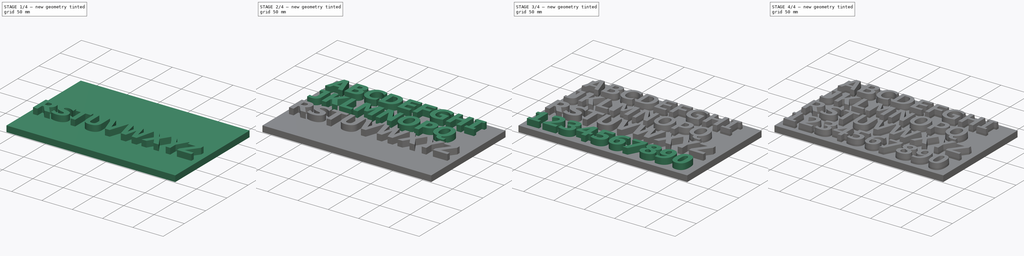
[diagram: build sequence overview — one tinted view per stage of 4, left to right]
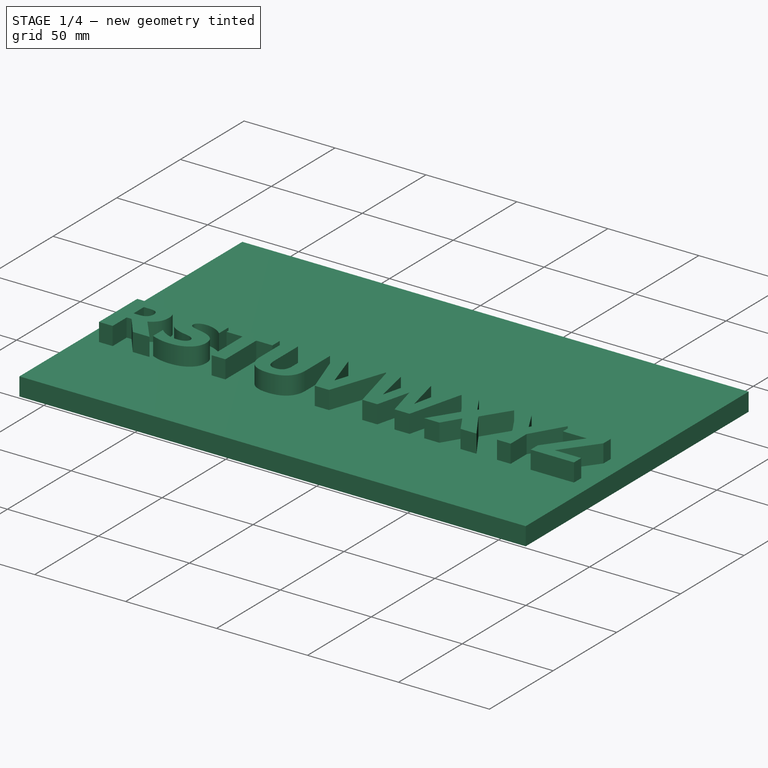
[diagram: stage 1 of 4 — iso view after this stage's code; geometry added in this stage tinted green]
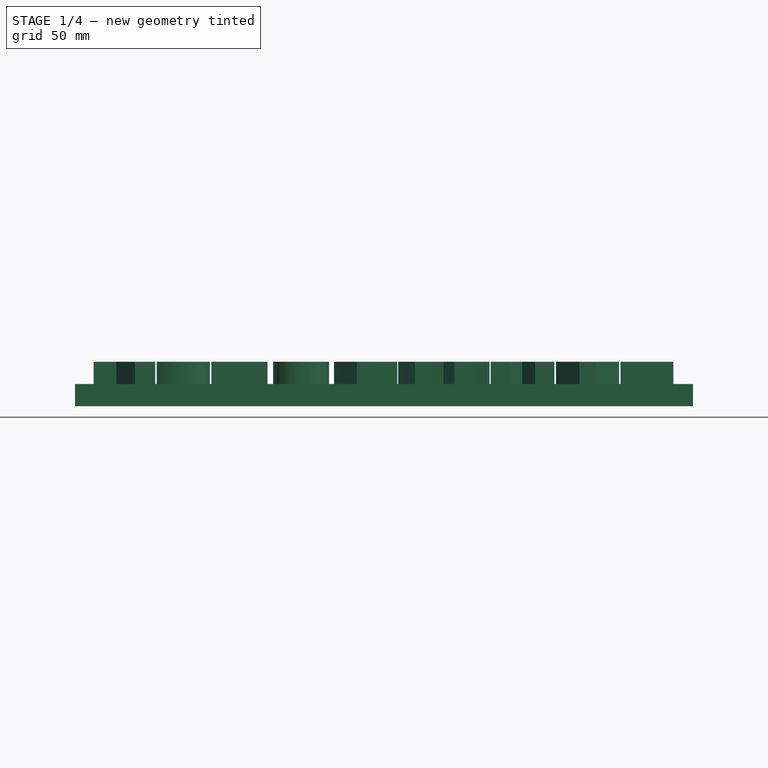
[diagram: stage 1 of 4 — front view after this stage's code; geometry added in this stage tinted green]
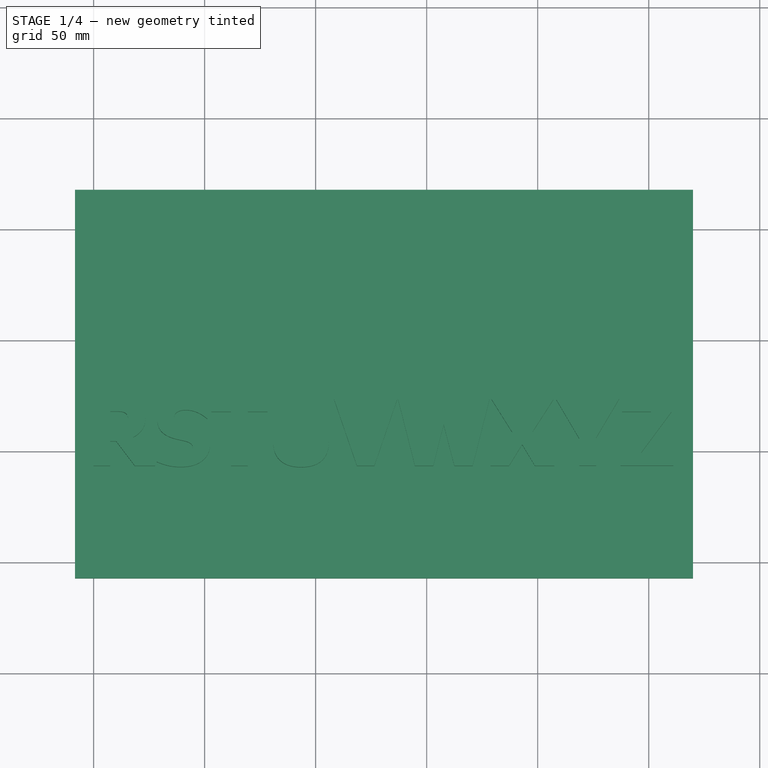
[diagram: stage 1 of 4 — top view after this stage's code; geometry added in this stage tinted green]
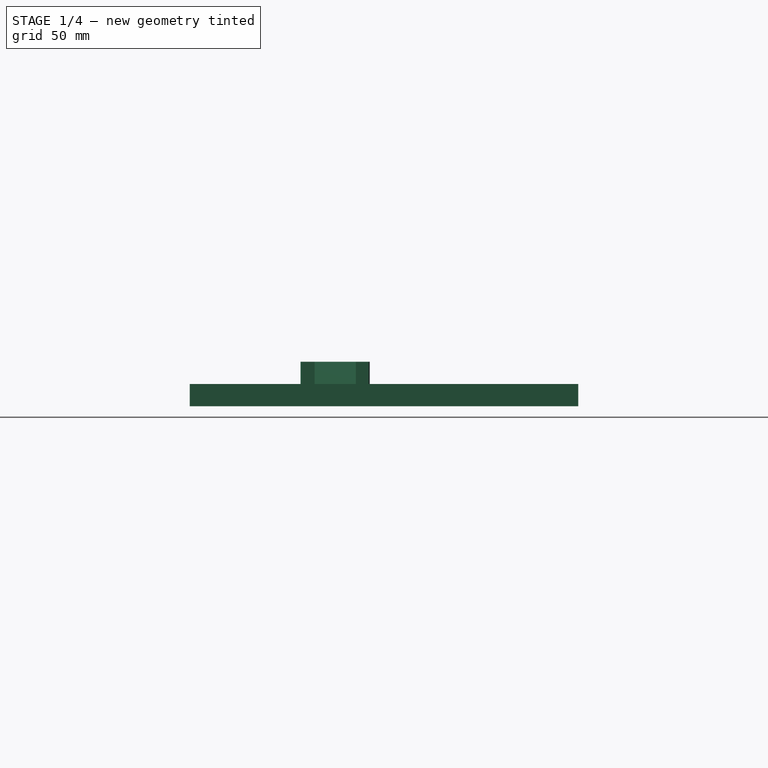
[diagram: stage 1 of 4 — right view after this stage's code; geometry added in this stage tinted green]
FCSTD DOCUMENT  (FreeCAD 0.20R25735 (Git))
Label: alphabet_20
License: All rights reserved
LicenseURL: http://en.wikipedia.org/wiki/All_rights_reserved
objects: Sketcher::SketchObject×5, PartDesign::Pad×5, PartDesign::Chamfer×4, PartDesign::Body×1
note: 24 computed .brp shape members not serialized (recipe doc carries the construction recipe); baked Part::Feature solids carry a one-line shape summary decoded from their .brp

FEATURE [Sketcher::SketchObject] Sketch  label="ABCDEFGHI"
  FullyConstrained = false
  sketch-geometry (223):
    g0: LineSegment StartX=245.273 StartY=128.633 StartZ=0 EndX=229.114 EndY=128.633 EndZ=0
    g1: LineSegment StartX=229.114 StartY=128.633 StartZ=0 EndX=229.114 EndY=133.872 EndZ=0
    g2: LineSegment StartX=229.114 StartY=133.872 StartZ=0 EndX=233.426 EndY=133.872 EndZ=0
    g3: LineSegment StartX=233.426 StartY=133.872 StartZ=0 EndX=233.426 EndY=153.395 EndZ=0
    g4: LineSegment StartX=233.426 StartY=153.395 StartZ=0 EndX=229.114 EndY=153.395 EndZ=0
    g5: LineSegment StartX=229.114 StartY=153.395 StartZ=0 EndX=229.114 EndY=158.633 EndZ=0
    g6: LineSegment StartX=229.114 StartY=158.633 StartZ=0 EndX=245.273 EndY=158.633 EndZ=0
    g7: LineSegment StartX=245.273 StartY=158.633 StartZ=0 EndX=245.273 EndY=153.395 EndZ=0
    g8: LineSegment StartX=245.273 StartY=153.395 StartZ=0 EndX=240.961 EndY=153.395 EndZ=0
    g9: LineSegment StartX=240.961 StartY=153.395 StartZ=0 EndX=240.961 EndY=133.872 EndZ=0
    g10: LineSegment StartX=240.961 StartY=133.872 StartZ=0 EndX=245.273 EndY=133.872 EndZ=0
    g11: LineSegment StartX=245.273 StartY=133.872 StartZ=0 EndX=245.273 EndY=128.633 EndZ=0
    g12: LineSegment StartX=224.004 StartY=128.633 StartZ=0 EndX=216.468 EndY=128.633 EndZ=0
    g13: LineSegment StartX=216.468 StartY=128.633 StartZ=0 EndX=216.468 EndY=141.931 EndZ=0
    g14: LineSegment StartX=216.468 StartY=141.931 StartZ=0 EndX=206.213 EndY=141.931 EndZ=0
    g15: LineSegment StartX=206.213 StartY=141.931 StartZ=0 EndX=206.213 EndY=128.633 EndZ=0
    g16: LineSegment StartX=206.213 StartY=128.633 StartZ=0 EndX=198.678 EndY=128.633 EndZ=0
    g17: LineSegment StartX=198.678 StartY=128.633 StartZ=0 EndX=198.678 EndY=158.633 EndZ=0
    g18: LineSegment StartX=198.678 StartY=158.633 StartZ=0 EndX=206.213 EndY=158.633 EndZ=0
    g19: LineSegment StartX=206.213 StartY=158.633 StartZ=0 EndX=206.213 EndY=147.653 EndZ=0
    g20: LineSegment StartX=206.213 StartY=147.653 StartZ=0 EndX=216.468 EndY=147.653 EndZ=0
    g21: LineSegment StartX=216.468 StartY=147.653 StartZ=0 EndX=216.468 EndY=158.633 EndZ=0
    g22: LineSegment StartX=216.468 StartY=158.633 StartZ=0 EndX=224.004 EndY=158.633 EndZ=0
    g23: LineSegment StartX=224.004 StartY=158.633 StartZ=0 EndX=224.004 EndY=128.633 EndZ=0
    g24: LineSegment StartX=193.028 StartY=145.114 StartZ=0 EndX=179.911 EndY=145.114 EndZ=0
    g25: LineSegment StartX=179.911 StartY=145.114 StartZ=0 EndX=179.911 EndY=139.493 EndZ=0
    g26: LineSegment StartX=179.911 StartY=139.493 StartZ=0 EndX=185.734 EndY=139.493 EndZ=0
    g27: LineSegment StartX=185.734 StartY=139.493 StartZ=0 EndX=185.734 EndY=133.61 EndZ=0
    g28: ArcOfCircle CenterX=184.28 CenterY=148.936 CenterZ=0 NormalX=0 NormalY=0 NormalZ=1 AngleXU=0 Radius=15.3951 StartAngle=4.74531 EndAngle=4.80695
    g29: ArcOfCircle CenterX=183.76 CenterY=159.551 CenterZ=0 NormalX=0 NormalY=0 NormalZ=1 AngleXU=0 Radius=26.0216 StartAngle=4.71546 EndAngle=4.75186
    g30: ArcOfCircle CenterX=183.84 CenterY=148.602 CenterZ=0 NormalX=0 NormalY=0 NormalZ=1 AngleXU=0 Radius=15.0724 StartAngle=4.57136 EndAngle=4.71239
    g31: ArcOfCircle CenterX=183.22 CenterY=144.231 CenterZ=0 NormalX=0 NormalY=0 NormalZ=1 AngleXU=0 Radius=10.6575 StartAngle=4.40358 EndAngle=4.57136
    g32: ArcOfCircle CenterX=182.787 CenterY=142.874 CenterZ=0 NormalX=0 NormalY=0 NormalZ=1 AngleXU=0 Radius=9.23329 StartAngle=4.18559 EndAngle=4.40358
    g33: ArcOfCircle CenterX=182.275 CenterY=141.994 CenterZ=0 NormalX=0 NormalY=0 NormalZ=1 AngleXU=0 Radius=8.21609 StartAngle=3.95443 EndAngle=4.18559
    g34: ArcOfCircle CenterX=181.389 CenterY=141.058 CenterZ=0 NormalX=0 NormalY=0 NormalZ=1 AngleXU=0 Radius=6.92624 StartAngle=3.6723 EndAngle=3.95443
    g35: ArcOfCircle CenterX=183.396 CenterY=142.236 CenterZ=0 NormalX=0 NormalY=0 NormalZ=1 AngleXU=0 Radius=9.25341 StartAngle=3.42842 EndAngle=3.6723
    g36: ArcOfCircle CenterX=185.738 CenterY=142.927 CenterZ=0 NormalX=0 NormalY=0 NormalZ=1 AngleXU=0 Radius=11.6957 StartAngle=3.26868 EndAngle=3.42842
    g37: ArcOfCircle CenterX=192.453 CenterY=143.784 CenterZ=0 NormalX=0 NormalY=0 NormalZ=1 AngleXU=0 Radius=18.4647 StartAngle=3.14159 EndAngle=3.26868
    g38: ArcOfCircle CenterX=186.235 CenterY=144.022 CenterZ=0 NormalX=0 NormalY=0 NormalZ=1 AngleXU=0 Radius=12.249 StartAngle=2.80252 EndAngle=3.16098
    g39: ArcOfCircle CenterX=182.793 CenterY=145.218 CenterZ=0 NormalX=0 NormalY=0 NormalZ=1 AngleXU=0 Radius=8.60576 StartAngle=2.37967 EndAngle=2.80057
    g40: ArcOfCircle CenterX=182.261 CenterY=145.536 CenterZ=0 NormalX=0 NormalY=0 NormalZ=1 AngleXU=0 Radius=8.0023 StartAngle=1.93535 EndAngle=2.36248
    g41: ArcOfCircle CenterX=182.809 CenterY=143.757 CenterZ=0 NormalX=0 NormalY=0 NormalZ=1 AngleXU=0 Radius=9.86069 StartAngle=1.55817 EndAngle=1.92298
    g42: ArcOfCircle CenterX=182.991 CenterY=143.186 CenterZ=0 NormalX=0 NormalY=0 NormalZ=1 AngleXU=0 Radius=10.431 StartAngle=1.27155 EndAngle=1.57635
    g43: ArcOfCircle CenterX=182.242 CenterY=140.523 CenterZ=0 NormalX=0 NormalY=0 NormalZ=1 AngleXU=0 Radius=13.1964 StartAngle=1.06156 EndAngle=1.27678
    g44: ArcOfCircle CenterX=180.163 CenterY=137.092 CenterZ=0 NormalX=0 NormalY=0 NormalZ=1 AngleXU=0 Radius=17.2062 StartAngle=0.914654 EndAngle=1.05328
    g45: ArcOfCircle CenterX=58.2627 CenterY=-23.3414 CenterZ=0 NormalX=0 NormalY=0 NormalZ=1 AngleXU=0 Radius=218.697 StartAngle=0.907567 EndAngle=0.920537
    g46: LineSegment StartX=192.907 StartY=148.994 StartZ=0 EndX=192.907 EndY=156.558 EndZ=0
    g47: ArcOfCircle CenterX=178.279 CenterY=126.962 CenterZ=0 NormalX=0 NormalY=0 NormalZ=1 AngleXU=0 Radius=33.0136 StartAngle=1.11178 EndAngle=1.27094
    g48: ArcOfCircle CenterX=184.052 CenterY=145.388 CenterZ=0 NormalX=0 NormalY=0 NormalZ=1 AngleXU=0 Radius=13.7046 StartAngle=1.27621 EndAngle=1.45455
    g49: ArcOfCircle CenterX=181.906 CenterY=127.013 CenterZ=0 NormalX=0 NormalY=0 NormalZ=1 AngleXU=0 Radius=32.2048 StartAngle=1.45455 EndAngle=1.5708
    g50: ArcOfCircle CenterX=181.906 CenterY=136.721 CenterZ=0 NormalX=0 NormalY=0 NormalZ=1 AngleXU=0 Radius=22.4962 StartAngle=1.5708 EndAngle=1.72255
    g51: ArcOfCircle CenterX=180.932 CenterY=143.088 CenterZ=0 NormalX=0 NormalY=0 NormalZ=1 AngleXU=0 Radius=16.0561 StartAngle=1.72255 EndAngle=1.90225
    g52: ArcOfCircle CenterX=180.308 CenterY=144.901 CenterZ=0 NormalX=0 NormalY=0 NormalZ=1 AngleXU=0 Radius=14.1382 StartAngle=1.90225 EndAngle=2.1285
    g53: ArcOfCircle CenterX=179.843 CenterY=145.647 CenterZ=0 NormalX=0 NormalY=0 NormalZ=1 AngleXU=0 Radius=13.2592 StartAngle=2.1285 EndAngle=2.36215
    g54: ArcOfCircle CenterX=180.235 CenterY=145.26 CenterZ=0 NormalX=0 NormalY=0 NormalZ=1 AngleXU=0 Radius=13.8097 StartAngle=2.36215 EndAngle=2.58477
    g55: ArcOfCircle CenterX=180.556 CenterY=145.06 CenterZ=0 NormalX=0 NormalY=0 NormalZ=1 AngleXU=0 Radius=14.188 StartAngle=2.58477 EndAngle=2.80439
    g56: ArcOfCircle CenterX=182.04 CenterY=144.54 CenterZ=0 NormalX=0 NormalY=0 NormalZ=1 AngleXU=0 Radius=15.761 StartAngle=2.80439 EndAngle=2.98591
    g57: ArcOfCircle CenterX=187.621 CenterY=143.664 CenterZ=0 NormalX=0 NormalY=0 NormalZ=1 AngleXU=0 Radius=21.4103 StartAngle=2.98591 EndAngle=3.14159
    g58: ArcOfCircle CenterX=190.092 CenterY=143.664 CenterZ=0 NormalX=0 NormalY=0 NormalZ=1 AngleXU=0 Radius=23.8812 StartAngle=3.14159 EndAngle=3.28654
    g59: ArcOfCircle CenterX=182.699 CenterY=142.584 CenterZ=0 NormalX=0 NormalY=0 NormalZ=1 AngleXU=0 Radius=16.4098 StartAngle=3.28654 EndAngle=3.46148
    g60: ArcOfCircle CenterX=180.426 CenterY=141.831 CenterZ=0 NormalX=0 NormalY=0 NormalZ=1 AngleXU=0 Radius=14.0149 StartAngle=3.46148 EndAngle=3.69415
    g61: ArcOfCircle CenterX=179.05 CenterY=140.983 CenterZ=0 NormalX=0 NormalY=0 NormalZ=1 AngleXU=0 Radius=12.399 StartAngle=3.69415 EndAngle=3.94159
    g62: ArcOfCircle CenterX=179.773 CenterY=141.727 CenterZ=0 NormalX=0 NormalY=0 NormalZ=1 AngleXU=0 Radius=13.4357 StartAngle=3.94159 EndAngle=4.16707
    g63: ArcOfCircle CenterX=180.197 CenterY=142.427 CenterZ=0 NormalX=0 NormalY=0 NormalZ=1 AngleXU=0 Radius=14.255 StartAngle=4.16707 EndAngle=4.38595
    g64: ArcOfCircle CenterX=180.775 CenterY=144.134 CenterZ=0 NormalX=0 NormalY=0 NormalZ=1 AngleXU=0 Radius=16.0573 StartAngle=4.38595 EndAngle=4.56227
    g65: ArcOfCircle CenterX=181.684 CenterY=150.144 CenterZ=0 NormalX=0 NormalY=0 NormalZ=1 AngleXU=0 Radius=22.1353 StartAngle=4.56227 EndAngle=4.71239
    g66: ArcOfCircle CenterX=181.603 CenterY=154.285 CenterZ=0 NormalX=0 NormalY=0 NormalZ=1 AngleXU=0 Radius=26.2768 StartAngle=4.7155 EndAngle=4.9544
    g67: ArcOfCircle CenterX=179.62 CenterY=164.943 CenterZ=0 NormalX=0 NormalY=0 NormalZ=1 AngleXU=0 Radius=37.104 StartAngle=4.93745 EndAngle=5.08212
    g68: LineSegment StartX=193.028 StartY=130.346 StartZ=0 EndX=193.028 EndY=145.114 EndZ=0
    g69: LineSegment StartX=17.2062 StartY=140.198 StartZ=0 EndX=14.1437 EndY=150.091 EndZ=0
    g70: LineSegment StartX=14.1437 StartY=150.091 StartZ=0 EndX=11.0813 EndY=140.198 EndZ=0
    g71: LineSegment StartX=11.0813 StartY=140.198 StartZ=0 EndX=17.2062 EndY=140.198 EndZ=0
    g72: LineSegment StartX=0 StartY=128.633 StartZ=0 EndX=10.1343 EndY=158.633 EndZ=0
    g73: LineSegment StartX=10.1343 StartY=158.633 StartZ=0 EndX=18.3546 EndY=158.633 EndZ=0
    g74: LineSegment StartX=18.3546 StartY=158.633 StartZ=0 EndX=28.4889 EndY=128.633 EndZ=0
    g75: LineSegment StartX=28.4889 StartY=128.633 StartZ=0 EndX=20.732 EndY=128.633 EndZ=0
    g76: LineSegment StartX=20.732 StartY=128.633 StartZ=0 EndX=18.8583 EndY=134.758 EndZ=0
    g77: LineSegment StartX=18.8583 StartY=134.758 StartZ=0 EndX=9.42915 EndY=134.758 EndZ=0
    g78: LineSegment StartX=9.42915 StartY=134.758 StartZ=0 EndX=7.55541 EndY=128.633 EndZ=0
    g79: LineSegment StartX=7.55541 StartY=128.633 StartZ=0 EndX=0 EndY=128.633 EndZ=0
    g80: ArcOfCircle CenterX=71.6059 CenterY=152.016 CenterZ=0 NormalX=0 NormalY=0 NormalZ=1 AngleXU=0 Radius=24.1503 StartAngle=4.89569 EndAngle=5.00825
    g81: ArcOfCircle CenterX=73.6378 CenterY=145.723 CenterZ=0 NormalX=0 NormalY=0 NormalZ=1 AngleXU=0 Radius=17.5384 StartAngle=5.00205 EndAngle=5.13829
    g82: ArcOfCircle CenterX=-28.9095 CenterY=372.058 CenterZ=0 NormalX=0 NormalY=0 NormalZ=1 AngleXU=0 Radius=266.021 StartAngle=5.13783 EndAngle=5.14575
    g83: LineSegment StartX=82.7977 StartY=130.628 StartZ=0 EndX=82.7977 EndY=138.298 EndZ=0
    g84: ArcOfCircle CenterX=41.2118 CenterY=183.695 CenterZ=0 NormalX=0 NormalY=0 NormalZ=1 AngleXU=0 Radius=61.5649 StartAngle=5.41048 EndAngle=5.454
    g85: ArcOfCircle CenterX=71.116 CenterY=148.161 CenterZ=0 NormalX=0 NormalY=0 NormalZ=1 AngleXU=0 Radius=15.1231 StartAngle=5.26156 EndAngle=5.40587
    g86: ArcOfCircle CenterX=73.0151 CenterY=144.782 CenterZ=0 NormalX=0 NormalY=0 NormalZ=1 AngleXU=0 Radius=11.2506 StartAngle=5.04921 EndAngle=5.27435
    g87: ArcOfCircle CenterX=73.9298 CenterY=141.877 CenterZ=0 NormalX=0 NormalY=0 NormalZ=1 AngleXU=0 Radius=8.20645 StartAngle=4.70783 EndAngle=5.06103
    g88: ArcOfCircle CenterX=73.9307 CenterY=142.323 CenterZ=0 NormalX=0 NormalY=0 NormalZ=1 AngleXU=0 Radius=8.65277 StartAngle=4.36947 EndAngle=4.70796
    g89: ArcOfCircle CenterX=73.3982 CenterY=140.876 CenterZ=0 NormalX=0 NormalY=0 NormalZ=1 AngleXU=0 Radius=7.11073 StartAngle=3.93532 EndAngle=4.37157
    g90: ArcOfCircle CenterX=74.4537 CenterY=141.807 CenterZ=0 NormalX=0 NormalY=0 NormalZ=1 AngleXU=0 Radius=8.51512 StartAngle=3.49263 EndAngle=3.92359
    g91: ArcOfCircle CenterX=75.1618 CenterY=142.286 CenterZ=0 NormalX=0 NormalY=0 NormalZ=1 AngleXU=0 Radius=9.3473 StartAngle=3.29874 EndAngle=3.51478
    g92: ArcOfCircle CenterX=83.3445 CenterY=143.583 CenterZ=0 NormalX=0 NormalY=0 NormalZ=1 AngleXU=0 Radius=17.6321 StartAngle=3.14159 EndAngle=3.29874
    g93: ArcOfCircle CenterX=82.8391 CenterY=143.583 CenterZ=0 NormalX=0 NormalY=0 NormalZ=1 AngleXU=0 Radius=17.1267 StartAngle=2.9878 EndAngle=3.14159
    g94: ArcOfCircle CenterX=76.2387 CenterY=144.606 CenterZ=0 NormalX=0 NormalY=0 NormalZ=1 AngleXU=0 Radius=10.4474 StartAngle=2.79075 EndAngle=2.9878
    g95: ArcOfCircle CenterX=76.8279 CenterY=144.391 CenterZ=0 NormalX=0 NormalY=0 NormalZ=1 AngleXU=0 Radius=11.0748 StartAngle=2.60548 EndAngle=2.79075
    g96: ArcOfCircle CenterX=72.9712 CenterY=146.682 CenterZ=0 NormalX=0 NormalY=0 NormalZ=1 AngleXU=0 Radius=6.58876 StartAngle=2.36504 EndAngle=2.60548
    g97: ArcOfCircle CenterX=73.5296 CenterY=146.436 CenterZ=0 NormalX=0 NormalY=0 NormalZ=1 AngleXU=0 Radius=7.16299 StartAngle=1.95268 EndAngle=2.39514
    g98: ArcOfCircle CenterX=73.7549 CenterY=145.194 CenterZ=0 NormalX=0 NormalY=0 NormalZ=1 AngleXU=0 Radius=8.4034 StartAngle=1.55923 EndAngle=1.92248
    g99: ArcOfCircle CenterX=73.8777 CenterY=145.893 CenterZ=0 NormalX=0 NormalY=0 NormalZ=1 AngleXU=0 Radius=7.70313 StartAngle=1.226 EndAngle=1.57412
    g100: ArcOfCircle CenterX=72.333 CenterY=141.455 CenterZ=0 NormalX=0 NormalY=0 NormalZ=1 AngleXU=0 Radius=12.4022 StartAngle=1.02336 EndAngle=1.22973
    g101: ArcOfCircle CenterX=69.8211 CenterY=137.323 CenterZ=0 NormalX=0 NormalY=0 NormalZ=1 AngleXU=0 Radius=17.238 StartAngle=0.890665 EndAngle=1.02371
    g102: ArcOfCircle CenterX=52.7173 CenterY=116.288 CenterZ=0 NormalX=0 NormalY=0 NormalZ=1 AngleXU=0 Radius=44.3488 StartAngle=0.825393 EndAngle=0.889099
    g103: LineSegment StartX=82.7977 StartY=148.877 StartZ=0 EndX=82.7977 EndY=156.719 EndZ=0
    g104: ArcOfCircle CenterX=67.4447 CenterY=126.185 CenterZ=0 NormalX=0 NormalY=0 NormalZ=1 AngleXU=0 Radius=34.1772 StartAngle=1.10491 EndAngle=1.16795
    g105: ArcOfCircle CenterX=72.9618 CenterY=139.729 CenterZ=0 NormalX=0 NormalY=0 NormalZ=1 AngleXU=0 Radius=19.5561 StartAngle=1.15598 EndAngle=1.27796
    g106: ArcOfCircle CenterX=72.9127 CenterY=137.731 CenterZ=0 NormalX=0 NormalY=0 NormalZ=1 AngleXU=0 Radius=21.4895 StartAngle=1.30261 EndAngle=1.43289
    g107: ArcOfCircle CenterX=72.8066 CenterY=135.941 CenterZ=0 NormalX=0 NormalY=0 NormalZ=1 AngleXU=0 Radius=23.2771 StartAngle=1.43894 EndAngle=1.57781
    g108: ArcOfCircle CenterX=72.6432 CenterY=139.869 CenterZ=0 NormalX=0 NormalY=0 NormalZ=1 AngleXU=0 Radius=19.3487 StartAngle=1.5708 EndAngle=1.73616
    g109: ArcOfCircle CenterX=71.7967 CenterY=144.941 CenterZ=0 NormalX=0 NormalY=0 NormalZ=1 AngleXU=0 Radius=14.2062 StartAngle=1.73616 EndAngle=1.92922
    g110: ArcOfCircle CenterX=71.3355 CenterY=146.173 CenterZ=0 NormalX=0 NormalY=0 NormalZ=1 AngleXU=0 Radius=12.8914 StartAngle=1.92922 EndAngle=2.15913
    g111: ArcOfCircle CenterX=71.3982 CenterY=146.079 CenterZ=0 NormalX=0 NormalY=0 NormalZ=1 AngleXU=0 Radius=13.0043 StartAngle=2.15913 EndAngle=2.38805
    g112: ArcOfCircle CenterX=71.7461 CenterY=145.752 CenterZ=0 NormalX=0 NormalY=0 NormalZ=1 AngleXU=0 Radius=13.4814 StartAngle=2.38805 EndAngle=2.61213
    g113: ArcOfCircle CenterX=72.7822 CenterY=145.146 CenterZ=0 NormalX=0 NormalY=0 NormalZ=1 AngleXU=0 Radius=14.6819 StartAngle=2.61213 EndAngle=2.82682
    g114: ArcOfCircle CenterX=74.6774 CenterY=144.529 CenterZ=0 NormalX=0 NormalY=0 NormalZ=1 AngleXU=0 Radius=16.675 StartAngle=2.82682 EndAngle=2.99703
    g115: ArcOfCircle CenterX=81.0359 CenterY=143.603 CenterZ=0 NormalX=0 NormalY=0 NormalZ=1 AngleXU=0 Radius=23.1005 StartAngle=2.99703 EndAngle=3.14159
    g116: ArcOfCircle CenterX=82.5964 CenterY=143.603 CenterZ=0 NormalX=0 NormalY=0 NormalZ=1 AngleXU=0 Radius=24.6611 StartAngle=3.14159 EndAngle=3.27967
    g117: ArcOfCircle CenterX=74.9723 CenterY=142.544 CenterZ=0 NormalX=0 NormalY=0 NormalZ=1 AngleXU=0 Radius=16.9636 StartAngle=3.27967 EndAngle=3.44621
    g118: ArcOfCircle CenterX=72.5235 CenterY=141.774 CenterZ=0 NormalX=0 NormalY=0 NormalZ=1 AngleXU=0 Radius=14.3967 StartAngle=3.44621 EndAngle=3.67073
    g119: ArcOfCircle CenterX=70.7563 CenterY=140.74 CenterZ=0 NormalX=0 NormalY=0 NormalZ=1 AngleXU=0 Radius=12.3495 StartAngle=3.67073 EndAngle=3.91322
    g120: ArcOfCircle CenterX=71.0713 CenterY=141.047 CenterZ=0 NormalX=0 NormalY=0 NormalZ=1 AngleXU=0 Radius=12.7889 StartAngle=3.91322 EndAngle=4.1423
    g121: ArcOfCircle CenterX=71.2463 CenterY=141.32 CenterZ=0 NormalX=0 NormalY=0 NormalZ=1 AngleXU=0 Radius=13.1133 StartAngle=4.1423 EndAngle=4.36851
    g122: ArcOfCircle CenterX=71.7585 CenterY=142.75 CenterZ=0 NormalX=0 NormalY=0 NormalZ=1 AngleXU=0 Radius=14.6324 StartAngle=4.36851 EndAngle=4.55414
    g123: ArcOfCircle CenterX=72.6231 CenterY=148.168 CenterZ=0 NormalX=0 NormalY=0 NormalZ=1 AngleXU=0 Radius=20.1191 StartAngle=4.55414 EndAngle=4.71239
    g124: ArcOfCircle CenterX=73.0075 CenterY=148.137 CenterZ=0 NormalX=0 NormalY=0 NormalZ=1 AngleXU=0 Radius=20.0911 StartAngle=4.69325 EndAngle=4.86229
    g125: ArcOfCircle CenterX=42.3739 CenterY=137.962 CenterZ=0 NormalX=0 NormalY=0 NormalZ=1 AngleXU=0 Radius=5.3211 StartAngle=0 EndAngle=0.253674
    g126: ArcOfCircle CenterX=45.0758 CenterY=138.662 CenterZ=0 NormalX=0 NormalY=0 NormalZ=1 AngleXU=0 Radius=2.52995 StartAngle=0.253674 EndAngle=0.622671
    g127: ArcOfCircle CenterX=44.4089 CenterY=138.061 CenterZ=0 NormalX=0 NormalY=0 NormalZ=1 AngleXU=0 Radius=3.42349 StartAngle=0.651627 EndAngle=1.26532
    g128: ArcOfCircle CenterX=43.6114 CenterY=135.764 CenterZ=0 NormalX=0 NormalY=0 NormalZ=1 AngleXU=0 Radius=5.85442 StartAngle=1.2534 EndAngle=1.58048
    g129: ArcOfCircle CenterX=40.687 CenterY=7.56441 CenterZ=0 NormalX=0 NormalY=0 NormalZ=1 AngleXU=0 Radius=134.085 StartAngle=1.54941 EndAngle=1.57338
    g130: LineSegment StartX=40.3411 StartY=141.649 StartZ=0 EndX=38.9509 EndY=141.649 EndZ=0
    g131: LineSegment StartX=38.9509 StartY=141.649 StartZ=0 EndX=38.9509 EndY=134.134 EndZ=0
    g132: LineSegment StartX=38.9509 StartY=134.134 StartZ=0 EndX=39.3539 EndY=134.134 EndZ=0
    g133: ArcOfCircle CenterX=40.0508 CenterY=269.288 CenterZ=0 NormalX=0 NormalY=0 NormalZ=1 AngleXU=0 Radius=135.156 StartAngle=4.70723 EndAngle=4.73735
    g134: ArcOfCircle CenterX=43.1325 CenterY=140.524 CenterZ=0 NormalX=0 NormalY=0 NormalZ=1 AngleXU=0 Radius=6.35696 StartAngle=4.75821 EndAngle=5.13168
    g135: ArcOfCircle CenterX=44.6175 CenterY=137.509 CenterZ=0 NormalX=0 NormalY=0 NormalZ=1 AngleXU=0 Radius=3.00071 StartAngle=5.0888 EndAngle=5.76314
    g136: ArcOfCircle CenterX=43.7454 CenterY=137.894 CenterZ=0 NormalX=0 NormalY=0 NormalZ=1 AngleXU=0 Radius=3.95017 StartAngle=5.78823 EndAngle=6.30039
    g137: ArcOfCircle CenterX=42.407 CenterY=150.095 CenterZ=0 NormalX=0 NormalY=0 NormalZ=1 AngleXU=0 Radius=3.39463 StartAngle=0.0166394 EndAngle=0.473318
    g138: ArcOfCircle CenterX=43.3979 CenterY=150.679 CenterZ=0 NormalX=0 NormalY=0 NormalZ=1 AngleXU=0 Radius=2.24732 StartAngle=0.442907 EndAngle=1.17233
    g139: ArcOfCircle CenterX=42.4672 CenterY=148.32 CenterZ=0 NormalX=0 NormalY=0 NormalZ=1 AngleXU=0 Radius=4.78255 StartAngle=1.18432 EndAngle=1.56248
    g140: ArcOfCircle CenterX=39.8808 CenterY=41.7369 CenterZ=0 NormalX=0 NormalY=0 NormalZ=1 AngleXU=0 Radius=111.397 StartAngle=1.54722 EndAngle=1.57444
    g141: LineSegment StartX=39.4747 StartY=153.133 StartZ=0 EndX=38.9509 EndY=153.133 EndZ=0
    g142: LineSegment StartX=38.9509 StartY=153.133 StartZ=0 EndX=38.9509 EndY=146.787 EndZ=0
    g143: LineSegment StartX=38.9509 StartY=146.787 StartZ=0 EndX=39.8978 EndY=146.787 EndZ=0
    g144: ArcOfCircle CenterX=40.3468 CenterY=207.732 CenterZ=0 NormalX=0 NormalY=0 NormalZ=1 AngleXU=0 Radius=60.947 StartAngle=4.70502 EndAngle=4.74949
    g145: ArcOfCircle CenterX=42.3195 CenterY=151.161 CenterZ=0 NormalX=0 NormalY=0 NormalZ=1 AngleXU=0 Radius=4.34413 StartAngle=4.77879 EndAngle=5.1625
    g146: ArcOfCircle CenterX=43.2822 CenterY=149.493 CenterZ=0 NormalX=0 NormalY=0 NormalZ=1 AngleXU=0 Radius=2.42724 StartAngle=5.10437 EndAngle=5.82456
    g147: ArcOfCircle CenterX=41.6898 CenterY=150.064 CenterZ=0 NormalX=0 NormalY=0 NormalZ=1 AngleXU=0 Radius=4.11225 StartAngle=5.87159 EndAngle=6.30447
    g148: ArcOfCircle CenterX=48.1813 CenterY=138.226 CenterZ=0 NormalX=0 NormalY=0 NormalZ=1 AngleXU=0 Radius=7.242 StartAngle=0.141054 EndAngle=0.307883
    g149: ArcOfCircle CenterX=49.0599 CenterY=138.505 CenterZ=0 NormalX=0 NormalY=0 NormalZ=1 AngleXU=0 Radius=6.32001 StartAngle=0.307883 EndAngle=0.521905
    g150: ArcOfCircle CenterX=49.6158 CenterY=138.825 CenterZ=0 NormalX=0 NormalY=0 NormalZ=1 AngleXU=0 Radius=5.67877 StartAngle=0.521905 EndAngle=0.747735
    g151: ArcOfCircle CenterX=48.4548 CenterY=137.748 CenterZ=0 NormalX=0 NormalY=0 NormalZ=1 AngleXU=0 Radius=7.26212 StartAngle=0.747735 EndAngle=0.921828
    g152: ArcOfCircle CenterX=48.1818 CenterY=137.388 CenterZ=0 NormalX=0 NormalY=0 NormalZ=1 AngleXU=0 Radius=7.71392 StartAngle=0.921828 EndAngle=1.09073
    g153: ArcOfCircle CenterX=47.8703 CenterY=136.79 CenterZ=0 NormalX=0 NormalY=0 NormalZ=1 AngleXU=0 Radius=8.38846 StartAngle=1.09073 EndAngle=1.23505
    g154: ArcOfCircle CenterX=47.1562 CenterY=134.744 CenterZ=0 NormalX=0 NormalY=0 NormalZ=1 AngleXU=0 Radius=10.5558 StartAngle=1.23505 EndAngle=1.2784
    g155: ArcOfCircle CenterX=46.9119 CenterY=151.228 CenterZ=0 NormalX=0 NormalY=0 NormalZ=1 AngleXU=0 Radius=6.46085 StartAngle=5.23063 EndAngle=5.71543
    g156: ArcOfCircle CenterX=46.3747 CenterY=151.543 CenterZ=0 NormalX=0 NormalY=0 NormalZ=1 AngleXU=0 Radius=7.08361 StartAngle=5.71862 EndAngle=6.29996
    g157: ArcOfCircle CenterX=46.6178 CenterY=151.802 CenterZ=0 NormalX=0 NormalY=0 NormalZ=1 AngleXU=0 Radius=6.84095 StartAngle=6.26279 EndAngle=6.77079
    g158: ArcOfCircle CenterX=47.6233 CenterY=152.181 CenterZ=0 NormalX=0 NormalY=0 NormalZ=1 AngleXU=0 Radius=5.77653 StartAngle=0.511166 EndAngle=1.098
    g159: ArcOfCircle CenterX=45.6775 CenterY=148.857 CenterZ=0 NormalX=0 NormalY=0 NormalZ=1 AngleXU=0 Radius=9.62426 StartAngle=1.07527 EndAngle=1.42661
    g160: ArcOfCircle CenterX=44.4586 CenterY=140.793 CenterZ=0 NormalX=0 NormalY=0 NormalZ=1 AngleXU=0 Radius=17.7796 StartAngle=1.42393 EndAngle=1.52054
    g161: ArcOfCircle CenterX=42.0537 CenterY=92.9836 CenterZ=0 NormalX=0 NormalY=0 NormalZ=1 AngleXU=0 Radius=65.6498 StartAngle=1.52054 EndAngle=1.5708
    g162: LineSegment StartX=42.0537 StartY=158.633 StartZ=0 EndX=31.4559 EndY=158.633 EndZ=0
    g163: LineSegment StartX=31.4559 StartY=158.633 StartZ=0 EndX=31.4559 EndY=128.633 EndZ=0
    g164: LineSegment StartX=31.4559 StartY=128.633 StartZ=0 EndX=43.464 EndY=128.633 EndZ=0
    g165: ArcOfCircle CenterX=43.464 CenterY=157.088 CenterZ=0 NormalX=0 NormalY=0 NormalZ=1 AngleXU=0 Radius=28.4546 StartAngle=4.71239 EndAngle=4.82154
    g166: ArcOfCircle CenterX=45.1645 CenterY=141.571 CenterZ=0 NormalX=0 NormalY=0 NormalZ=1 AngleXU=0 Radius=12.8443 StartAngle=4.82154 EndAngle=4.98411
    g167: ArcOfCircle CenterX=45.7758 CenterY=139.359 CenterZ=0 NormalX=0 NormalY=0 NormalZ=1 AngleXU=0 Radius=10.5497 StartAngle=4.98456 EndAngle=5.38263
    g168: ArcOfCircle CenterX=47.3992 CenterY=137.425 CenterZ=0 NormalX=0 NormalY=0 NormalZ=1 AngleXU=0 Radius=8.02583 StartAngle=5.37381 EndAngle=5.82739
    g169: ArcOfCircle CenterX=46.7773 CenterY=137.634 CenterZ=0 NormalX=0 NormalY=0 NormalZ=1 AngleXU=0 Radius=8.67667 StartAngle=5.83733 EndAngle=6.30476
    g170: ArcOfCircle CenterX=45.328 CenterY=137.821 CenterZ=0 NormalX=0 NormalY=0 NormalZ=1 AngleXU=0 Radius=10.1239 StartAngle=6.28319 EndAngle=6.42424
    g171: LineSegment StartX=164.162 StartY=152.911 StartZ=0 EndX=151.57 EndY=152.911 EndZ=0
    g172: LineSegment StartX=151.57 StartY=152.911 StartZ=0 EndX=151.57 EndY=147.25 EndZ=0
    g173: LineSegment StartX=151.57 StartY=147.25 StartZ=0 EndX=163.155 EndY=147.25 EndZ=0
    g174: LineSegment StartX=163.155 StartY=147.25 StartZ=0 EndX=163.155 EndY=141.528 EndZ=0
    g175: LineSegment StartX=163.155 StartY=141.528 StartZ=0 EndX=151.57 EndY=141.528 EndZ=0
    g176: LineSegment StartX=151.57 StartY=141.528 StartZ=0 EndX=151.57 EndY=128.633 EndZ=0
    g177: LineSegment StartX=151.57 StartY=128.633 StartZ=0 EndX=144.075 EndY=128.633 EndZ=0
    g178: LineSegment StartX=144.075 StartY=128.633 StartZ=0 EndX=144.075 EndY=158.633 EndZ=0
    g179: LineSegment StartX=144.075 StartY=158.633 StartZ=0 EndX=164.162 EndY=158.633 EndZ=0
    g180: LineSegment StartX=164.162 StartY=158.633 StartZ=0 EndX=164.162 EndY=152.911 EndZ=0
    g181: LineSegment StartX=118.635 StartY=128.633 StartZ=0 EndX=118.635 EndY=158.633 EndZ=0
    g182: LineSegment StartX=118.635 StartY=158.633 StartZ=0 EndX=138.924 EndY=158.633 EndZ=0
    g183: LineSegment StartX=138.924 StartY=158.633 StartZ=0 EndX=138.924 EndY=152.911 EndZ=0
    g184: LineSegment StartX=138.924 StartY=152.911 StartZ=0 EndX=126.13 EndY=152.911 EndZ=0
    g185: LineSegment StartX=126.13 StartY=152.911 StartZ=0 EndX=126.13 EndY=147.653 EndZ=0
    g186: LineSegment StartX=126.13 StartY=147.653 StartZ=0 EndX=137.916 EndY=147.653 EndZ=0
    g187: LineSegment StartX=137.916 StartY=147.653 StartZ=0 EndX=137.916 EndY=141.931 EndZ=0
    g188: LineSegment StartX=137.916 StartY=141.931 StartZ=0 EndX=126.13 EndY=141.931 EndZ=0
    g189: LineSegment StartX=126.13 StartY=141.931 StartZ=0 EndX=126.13 EndY=134.355 EndZ=0
    g190: LineSegment StartX=126.13 StartY=134.355 StartZ=0 EndX=138.924 EndY=134.355 EndZ=0
    g191: LineSegment StartX=138.924 StartY=134.355 StartZ=0 EndX=138.924 EndY=128.633 EndZ=0
    g192: LineSegment StartX=138.924 StartY=128.633 StartZ=0 EndX=118.635 EndY=128.633 EndZ=0
    g193: ArcOfCircle CenterX=91.6503 CenterY=143.664 CenterZ=0 NormalX=0 NormalY=0 NormalZ=1 AngleXU=0 Radius=14.7096 StartAngle=0 EndAngle=0.19816
    g194: ArcOfCircle CenterX=97.1364 CenterY=144.765 CenterZ=0 NormalX=0 NormalY=0 NormalZ=1 AngleXU=0 Radius=9.11394 StartAngle=0.19816 EndAngle=0.450161
    g195: ArcOfCircle CenterX=98.6601 CenterY=145.512 CenterZ=0 NormalX=0 NormalY=0 NormalZ=1 AngleXU=0 Radius=7.41696 StartAngle=0.448847 EndAngle=1.0718
    g196: ArcOfCircle CenterX=98.6364 CenterY=145.671 CenterZ=0 NormalX=0 NormalY=0 NormalZ=1 AngleXU=0 Radius=7.28998 StartAngle=1.05856 EndAngle=1.52147
    g197: ArcOfCircle CenterX=95.2688 CenterY=67.3439 CenterZ=0 NormalX=0 NormalY=0 NormalZ=1 AngleXU=0 Radius=85.689 StartAngle=1.52729 EndAngle=1.57586
    g198: LineSegment StartX=94.8353 StartY=153.032 StartZ=0 EndX=94.8353 EndY=134.255 EndZ=0
    g199: ArcOfCircle CenterX=95.3269 CenterY=218.836 CenterZ=0 NormalX=0 NormalY=0 NormalZ=1 AngleXU=0 Radius=84.5817 StartAngle=4.70658 EndAngle=4.75888
    g200: ArcOfCircle CenterX=98.8763 CenterY=141.152 CenterZ=0 NormalX=0 NormalY=0 NormalZ=1 AngleXU=0 Radius=6.8179 StartAngle=4.76837 EndAngle=5.28529
    g201: ArcOfCircle CenterX=98.5813 CenterY=141.761 CenterZ=0 NormalX=0 NormalY=0 NormalZ=1 AngleXU=0 Radius=7.48952 StartAngle=5.27434 EndAngle=5.85437
    g202: ArcOfCircle CenterX=97.2938 CenterY=142.458 CenterZ=0 NormalX=0 NormalY=0 NormalZ=1 AngleXU=0 Radius=8.95087 StartAngle=5.84334 EndAngle=6.09275
    g203: ArcOfCircle CenterX=91.0401 CenterY=143.664 CenterZ=0 NormalX=0 NormalY=0 NormalZ=1 AngleXU=0 Radius=15.3197 StartAngle=6.09275 EndAngle=6.28319
    g204: ArcOfCircle CenterX=97.4735 CenterY=144.014 CenterZ=0 NormalX=0 NormalY=0 NormalZ=1 AngleXU=0 Radius=16.6026 StartAngle=0.0997388 EndAngle=0.211206
    g205: ArcOfCircle CenterX=98.9848 CenterY=144.338 CenterZ=0 NormalX=0 NormalY=0 NormalZ=1 AngleXU=0 Radius=15.0569 StartAngle=0.211206 EndAngle=0.345693
    g206: ArcOfCircle CenterX=100.782 CenterY=144.986 CenterZ=0 NormalX=0 NormalY=0 NormalZ=1 AngleXU=0 Radius=13.1472 StartAngle=0.345693 EndAngle=0.489632
    g207: ArcOfCircle CenterX=100.46 CenterY=144.948 CenterZ=0 NormalX=0 NormalY=0 NormalZ=1 AngleXU=0 Radius=13.4492 StartAngle=0.480817 EndAngle=1.00147
    g208: ArcOfCircle CenterX=100.65 CenterY=145.407 CenterZ=0 NormalX=0 NormalY=0 NormalZ=1 AngleXU=0 Radius=12.9608 StartAngle=0.994729 EndAngle=1.42506
    g209: ArcOfCircle CenterX=96.7905 CenterY=117.573 CenterZ=0 NormalX=0 NormalY=0 NormalZ=1 AngleXU=0 Radius=41.0604 StartAngle=1.43051 EndAngle=1.57523
    g210: LineSegment StartX=96.6083 StartY=158.633 StartZ=0 EndX=87.3 EndY=158.633 EndZ=0
    g211: LineSegment StartX=87.3 StartY=158.633 StartZ=0 EndX=87.3 EndY=128.633 EndZ=0
    g212: LineSegment StartX=87.3 StartY=128.633 StartZ=0 EndX=96.6889 EndY=128.633 EndZ=0
    g213: ArcOfCircle CenterX=96.8463 CenterY=166.264 CenterZ=0 NormalX=0 NormalY=0 NormalZ=1 AngleXU=0 Radius=37.6309 StartAngle=4.70821 EndAngle=4.86432
    g214: ArcOfCircle CenterX=100.55 CenterY=141.905 CenterZ=0 NormalX=0 NormalY=0 NormalZ=1 AngleXU=0 Radius=12.992 StartAngle=4.86627 EndAngle=5.2886
    g215: ArcOfCircle CenterX=101.147 CenterY=141.25 CenterZ=0 NormalX=0 NormalY=0 NormalZ=1 AngleXU=0 Radius=12.1181 StartAngle=5.27679 EndAngle=5.54439
    g216: ArcOfCircle CenterX=98.3573 CenterY=143.791 CenterZ=0 NormalX=0 NormalY=0 NormalZ=1 AngleXU=0 Radius=15.8918 StartAngle=5.54439 EndAngle=5.7779
    g217: ArcOfCircle CenterX=99.9864 CenterY=142.889 CenterZ=0 NormalX=0 NormalY=0 NormalZ=1 AngleXU=0 Radius=14.0299 StartAngle=5.7779 EndAngle=5.91558
    g218: ArcOfCircle CenterX=99.419 CenterY=143.108 CenterZ=0 NormalX=0 NormalY=0 NormalZ=1 AngleXU=0 Radius=14.638 StartAngle=5.91558 EndAngle=6.05036
    g219: ArcOfCircle CenterX=98.5989 CenterY=143.302 CenterZ=0 NormalX=0 NormalY=0 NormalZ=1 AngleXU=0 Radius=15.4809 StartAngle=6.05036 EndAngle=6.17145
    g220: ArcOfCircle CenterX=95.9189 CenterY=143.603 CenterZ=0 NormalX=0 NormalY=0 NormalZ=1 AngleXU=0 Radius=18.1776 StartAngle=6.17145 EndAngle=6.28319
    g221: ArcOfCircle CenterX=93.3642 CenterY=143.603 CenterZ=0 NormalX=0 NormalY=0 NormalZ=1 AngleXU=0 Radius=20.7324 StartAngle=0 EndAngle=0.0997388
    g222: ArcOfCircle CenterX=50.3194 CenterY=145.252 CenterZ=0 NormalX=0 NormalY=0 NormalZ=1 AngleXU=0 Radius=0.41812 StartAngle=2.08904 EndAngle=4.41999
  constraints (294):
    c: Horizontal(g0)
    c: Coincident(g0,g1)
    c: Vertical(g1)
    c: Coincident(g1,g2)
    c: Horizontal(g2)
    c: Coincident(g2,g3)
    c: Vertical(g3)
    c: Coincident(g3,g4)
    c: Horizontal(g4)
    c: Coincident(g4,g5)
    c: Vertical(g5)
    c: Coincident(g5,g6)
    c: Horizontal(g6)
    c: Coincident(g6,g7)
    c: Vertical(g7)
    c: Coincident(g7,g8)
    c: Horizontal(g8)
    c: Coincident(g8,g9)
    c: Vertical(g9)
    c: Coincident(g9,g10)
    c: Horizontal(g10)
    c: Coincident(g10,g11)
    c: Vertical(g11)
    c: Coincident(g11,g0)
    c: Horizontal(g12)
    c: Coincident(g12,g13)
    c: Vertical(g13)
    c: Coincident(g13,g14)
    c: Horizontal(g14)
    c: Coincident(g14,g15)
    c: Vertical(g15)
    c: Coincident(g15,g16)
    c: Horizontal(g16)
    c: Coincident(g16,g17)
    c: Vertical(g17)
    c: Coincident(g17,g18)
    c: Horizontal(g18)
    c: Coincident(g18,g19)
    c: Vertical(g19)
    c: Coincident(g19,g20)
    c: Horizontal(g20)
    c: Coincident(g20,g21)
    c: Vertical(g21)
    c: Coincident(g21,g22)
    c: Horizontal(g22)
    c: Coincident(g22,g23)
    c: Vertical(g23)
    c: Coincident(g23,g12)
    c: Horizontal(g24)
    c: Coincident(g24,g25)
    c: Vertical(g25)
    c: Coincident(g25,g26)
    c: Horizontal(g26)
    c: Coincident(g26,g27)
    c: Vertical(g27)
    c: Coincident(g27,g28)
    c: Coincident(g28,g29)
    c: Coincident(g29,g30)
    c: Coincident(g30,g31)
    c: Coincident(g31,g32)
    c: Coincident(g32,g33)
    c: Coincident(g33,g34)
    c: Coincident(g34,g35)
    c: Coincident(g35,g36)
    c: Coincident(g36,g37)
    c: Coincident(g37,g38)
    c: Coincident(g38,g39)
    c: Coincident(g39,g40)
    c: Coincident(g40,g41)
    c: Coincident(g41,g42)
    c: Coincident(g42,g43)
    c: Coincident(g43,g44)
    c: Coincident(g44,g45)
    c: Coincident(g45,g46)
    c: Vertical(g46)
    c: Coincident(g46,g47)
    c: Coincident(g47,g48)
    c: Coincident(g48,g49)
    c: Coincident(g49,g50)
    c: Coincident(g50,g51)
    c: Coincident(g51,g52)
    c: Coincident(g52,g53)
    c: Coincident(g53,g54)
    c: Coincident(g54,g55)
    c: Coincident(g55,g56)
    c: Coincident(g56,g57)
    c: Coincident(g57,g58)
    c: Coincident(g58,g59)
    c: Coincident(g59,g60)
    c: Coincident(g60,g61)
    c: Coincident(g61,g62)
    c: Coincident(g62,g63)
    c: Coincident(g63,g64)
    c: Coincident(g64,g65)
    c: Coincident(g65,g66)
    c: Coincident(g66,g67)
    c: Coincident(g67,g68)
    c: Coincident(g68,g24)
    c: Coincident(g69,g70)
    c: Coincident(g70,g71)
    c: Horizontal(g71)
    c: Coincident(g71,g69)
    c: Coincident(g72,g73)
    c: Horizontal(g73)
    c: Coincident(g73,g74)
    c: Coincident(g74,g75)
    c: Horizontal(g75)
    c: Coincident(g75,g76)
    c: Coincident(g76,g77)
    c: Horizontal(g77)
    c: Coincident(g77,g78)
    c: Coincident(g78,g79)
    c: Horizontal(g79)
    c: Coincident(g79,g72)
    c: Coincident(g80,g81)
    c: Coincident(g81,g82)
    c: Coincident(g82,g83)
    c: Vertical(g83)
    c: Coincident(g83,g84)
    c: Coincident(g84,g85)
    c: Coincident(g85,g86)
    c: Coincident(g86,g87)
    c: Coincident(g87,g88)
    c: Coincident(g88,g89)
    c: Coincident(g89,g90)
    c: Coincident(g90,g91)
    c: Coincident(g91,g92)
    c: Coincident(g92,g93)
    c: Coincident(g93,g94)
    c: Coincident(g94,g95)
    c: Coincident(g95,g96)
    c: Coincident(g96,g97)
    c: Coincident(g97,g98)
    c: Coincident(g98,g99)
    c: Coincident(g99,g100)
    c: Coincident(g100,g101)
    c: Coincident(g101,g102)
    c: Coincident(g102,g103)
    c: Vertical(g103)
    c: Coincident(g103,g104)
    c: Coincident(g104,g105)
    c: Coincident(g105,g106)
    c: Coincident(g106,g107)
    c: Coincident(g107,g108)
    c: Coincident(g108,g109)
    c: Coincident(g109,g110)
    c: Coincident(g110,g111)
    c: Coincident(g111,g112)
    c: Coincident(g112,g113)
    c: Coincident(g113,g114)
    c: Coincident(g114,g115)
    c: Coincident(g115,g116)
    c: Coincident(g116,g117)
    c: Coincident(g117,g118)
    c: Coincident(g118,g119)
    c: Coincident(g119,g120)
    c: Coincident(g120,g121)
    c: Coincident(g121,g122)
    c: Coincident(g122,g123)
    c: Coincident(g123,g124)
    c: Coincident(g124,g80)
    c: Coincident(g125,g126)
    c: Coincident(g126,g127)
    c: Coincident(g127,g128)
    c: Coincident(g128,g129)
    c: Coincident(g129,g130)
    c: Horizontal(g130)
    c: Coincident(g130,g131)
    c: Vertical(g131)
    c: Coincident(g131,g132)
    c: Horizontal(g132)
    c: Coincident(g132,g133)
    c: Coincident(g133,g134)
    c: Coincident(g134,g135)
    c: Coincident(g135,g136)
    c: Coincident(g136,g125)
    c: Coincident(g137,g138)
    c: Coincident(g138,g139)
    c: Coincident(g139,g140)
    c: Coincident(g140,g141)
    c: Horizontal(g141)
    c: Coincident(g141,g142)
    c: Vertical(g142)
    c: Coincident(g142,g143)
    c: Horizontal(g143)
    c: Coincident(g143,g144)
    c: Coincident(g144,g145)
    c: Coincident(g145,g146)
    c: Coincident(g146,g147)
    c: Coincident(g147,g137)
    c: Coincident(g148,g149)
    c: Coincident(g149,g150)
    c: Coincident(g150,g151)
    c: Coincident(g151,g152)
    c: Coincident(g152,g153)
    c: Coincident(g153,g154)
    c: Coincident(g155,g156)
    c: Coincident(g156,g157)
    c: Coincident(g157,g158)
    c: Coincident(g158,g159)
    c: Coincident(g159,g160)
    c: Coincident(g160,g161)
    c: Coincident(g161,g162)
    c: Horizontal(g162)
    c: Coincident(g162,g163)
    c: Vertical(g163)
    c: Coincident(g163,g164)
    c: Horizontal(g164)
    c: Coincident(g164,g165)
    c: Coincident(g165,g166)
    c: Coincident(g166,g167)
    c: Coincident(g167,g168)
    c: Coincident(g168,g169)
    c: Coincident(g169,g170)
    c: Coincident(g170,g148)
    c: Horizontal(g171)
    c: Coincident(g171,g172)
    c: Vertical(g172)
    c: Coincident(g172,g173)
    c: Horizontal(g173)
    c: Coincident(g173,g174)
    c: Vertical(g174)
    c: Coincident(g174,g175)
    c: Horizontal(g175)
    c: Coincident(g175,g176)
    c: Vertical(g176)
    c: Coincident(g176,g177)
    c: Horizontal(g177)
    c: Coincident(g177,g178)
    c: Vertical(g178)
    c: Coincident(g178,g179)
    c: Horizontal(g179)
    c: Coincident(g179,g180)
    c: Vertical(g180)
    c: Coincident(g180,g171)
    c: Vertical(g181)
    c: Coincident(g181,g182)
    c: Horizontal(g182)
    c: Coincident(g182,g183)
    c: Vertical(g183)
    c: Coincident(g183,g184)
    c: Horizontal(g184)
    c: Coincident(g184,g185)
    c: Vertical(g185)
    c: Coincident(g185,g186)
    c: Horizontal(g186)
    c: Coincident(g186,g187)
    c: Vertical(g187)
    c: Coincident(g187,g188)
    c: Horizontal(g188)
    c: Coincident(g188,g189)
    c: Vertical(g189)
    c: Coincident(g189,g190)
    c: Horizontal(g190)
    c: Coincident(g190,g191)
    c: Vertical(g191)
    c: Coincident(g191,g192)
    c: Horizontal(g192)
    c: Coincident(g192,g181)
    c: Coincident(g193,g194)
    c: Coincident(g194,g195)
    c: Coincident(g195,g196)
    c: Coincident(g196,g197)
    c: Coincident(g197,g198)
    c: Vertical(g198)
    c: Coincident(g198,g199)
    c: Coincident(g199,g200)
    c: Coincident(g200,g201)
    c: Coincident(g201,g202)
    c: Coincident(g202,g203)
    c: Coincident(g203,g193)
    c: Coincident(g204,g205)
    c: Coincident(g205,g206)
    c: Coincident(g206,g207)
    c: Coincident(g207,g208)
    c: Coincident(g208,g209)
    c: Coincident(g209,g210)
    c: Horizontal(g210)
    c: Coincident(g210,g211)
    c: Vertical(g211)
    c: Coincident(g211,g212)
    c: Horizontal(g212)
    c: Coincident(g212,g213)
    c: Coincident(g213,g214)
    c: Coincident(g214,g215)
    c: Coincident(g215,g216)
    c: Coincident(g216,g217)
    c: Coincident(g217,g218)
    c: Coincident(g218,g219)
    c: Coincident(g219,g220)
    c: Coincident(g220,g221)
    c: Coincident(g221,g204)
    c: Tangent(g154,g222) = 1.5708
    c: Tangent(g155,g222) = 1.5708
FEATURE [Sketcher::SketchObject] Sketch001  label="JKLMNOPQ"
  FullyConstrained = false
  sketch-geometry (210):
    g0: LineSegment StartX=72.6479 StartY=85.9839 StartZ=0 EndX=52.6211 EndY=85.9839 EndZ=0
    g1: LineSegment StartX=52.6211 StartY=85.9839 StartZ=0 EndX=52.6211 EndY=115.984 EndZ=0
    g2: LineSegment StartX=52.6211 StartY=115.984 StartZ=0 EndX=60.1563 EndY=115.984 EndZ=0
    g3: LineSegment StartX=60.1563 StartY=115.984 StartZ=0 EndX=60.1563 EndY=91.7059 EndZ=0
    g4: LineSegment StartX=60.1563 StartY=91.7059 StartZ=0 EndX=72.6479 EndY=91.7059 EndZ=0
    g5: LineSegment StartX=72.6479 StartY=91.7059 StartZ=0 EndX=72.6479 EndY=85.9839 EndZ=0
    g6: LineSegment StartX=50.0611 StartY=85.9839 StartZ=0 EndX=40.9543 EndY=85.9839 EndZ=0
    g7: LineSegment StartX=40.9543 StartY=85.9839 StartZ=0 EndX=32.7743 EndY=98.1733 EndZ=0
    g8: LineSegment StartX=32.7743 StartY=98.1733 StartZ=0 EndX=31.3035 EndY=96.1183 EndZ=0
    g9: LineSegment StartX=31.3035 StartY=96.1183 StartZ=0 EndX=31.3035 EndY=85.9839 EndZ=0
    g10: LineSegment StartX=31.3035 StartY=85.9839 StartZ=0 EndX=23.7683 EndY=85.9839 EndZ=0
    g11: LineSegment StartX=23.7683 StartY=85.9839 StartZ=0 EndX=23.7683 EndY=115.984 EndZ=0
    g12: LineSegment StartX=23.7683 StartY=115.984 StartZ=0 EndX=31.3035 EndY=115.984 EndZ=0
    g13: LineSegment StartX=31.3035 StartY=115.984 StartZ=0 EndX=31.3035 EndY=102.666 EndZ=0
    g14: LineSegment StartX=31.3035 StartY=102.666 StartZ=0 EndX=40.8939 EndY=115.984 EndZ=0
    g15: LineSegment StartX=40.8939 StartY=115.984 StartZ=0 EndX=49.6178 EndY=115.984 EndZ=0
    g16: LineSegment StartX=49.6178 StartY=115.984 StartZ=0 EndX=38.9194 EndY=102.062 EndZ=0
    g17: LineSegment StartX=38.9194 StartY=102.062 StartZ=0 EndX=50.0611 EndY=85.9839 EndZ=0
    g18: ArcOfCircle CenterX=187.882 CenterY=106.437 CenterZ=0 NormalX=0 NormalY=0 NormalZ=1 AngleXU=0 Radius=3.88069 StartAngle=6.25639 EndAngle=6.84949
    g19: ArcOfCircle CenterX=188.443 CenterY=106.858 CenterZ=0 NormalX=0 NormalY=0 NormalZ=1 AngleXU=0 Radius=3.18241 StartAngle=0.549327 EndAngle=1.1625
    g20: ArcOfCircle CenterX=187.119 CenterY=104.051 CenterZ=0 NormalX=0 NormalY=0 NormalZ=1 AngleXU=0 Radius=6.28489 StartAngle=1.14647 EndAngle=1.48436
    g21: ArcOfCircle CenterX=185.305 CenterY=71.5778 CenterZ=0 NormalX=0 NormalY=0 NormalZ=1 AngleXU=0 Radius=38.8062 StartAngle=1.51003 EndAngle=1.57834
    g22: LineSegment StartX=185.012 StartY=110.383 StartZ=0 EndX=183.944 EndY=110.383 EndZ=0
    g23: LineSegment StartX=183.944 StartY=110.383 StartZ=0 EndX=183.944 EndY=101.397 EndZ=0
    g24: LineSegment StartX=183.944 StartY=101.397 StartZ=0 EndX=184.468 EndY=101.397 EndZ=0
    g25: ArcOfCircle CenterX=184.526 CenterY=196.365 CenterZ=0 NormalX=0 NormalY=0 NormalZ=1 AngleXU=0 Radius=94.9682 StartAngle=4.71178 EndAngle=4.733
    g26: ArcOfCircle CenterX=186.348 CenterY=112.743 CenterZ=0 NormalX=0 NormalY=0 NormalZ=1 AngleXU=0 Radius=11.3264 StartAngle=4.72429 EndAngle=4.87081
    g27: ArcOfCircle CenterX=187.164 CenterY=107 CenterZ=0 NormalX=0 NormalY=0 NormalZ=1 AngleXU=0 Radius=5.52772 StartAngle=4.88898 EndAngle=5.13169
    g28: ArcOfCircle CenterX=188.188 CenterY=105.043 CenterZ=0 NormalX=0 NormalY=0 NormalZ=1 AngleXU=0 Radius=3.32656 StartAngle=5.08986 EndAngle=5.46082
    g29: ArcOfCircle CenterX=187.767 CenterY=105.524 CenterZ=0 NormalX=0 NormalY=0 NormalZ=1 AngleXU=0 Radius=3.96528 StartAngle=5.45612 EndAngle=5.93126
    g30: ArcOfCircle CenterX=184.749 CenterY=106.105 CenterZ=0 NormalX=0 NormalY=0 NormalZ=1 AngleXU=0 Radius=7.01643 StartAngle=6.00192 EndAngle=6.31574
    g31: ArcOfCircle CenterX=191.272 CenterY=107.406 CenterZ=0 NormalX=0 NormalY=0 NormalZ=1 AngleXU=0 Radius=8.13534 StartAngle=0.203869 EndAngle=0.45721
    g32: ArcOfCircle CenterX=191.764 CenterY=107.722 CenterZ=0 NormalX=0 NormalY=0 NormalZ=1 AngleXU=0 Radius=7.55465 StartAngle=0.448388 EndAngle=0.9831
    g33: ArcOfCircle CenterX=189.965 CenterY=105.023 CenterZ=0 NormalX=0 NormalY=0 NormalZ=1 AngleXU=0 Radius=10.7983 StartAngle=0.983086 EndAngle=1.33028
    g34: ArcOfCircle CenterX=188.359 CenterY=97.4085 CenterZ=0 NormalX=0 NormalY=0 NormalZ=1 AngleXU=0 Radius=18.5779 StartAngle=1.34395 EndAngle=1.58719
    g35: LineSegment StartX=188.054 StartY=115.984 StartZ=0 EndX=176.409 EndY=115.984 EndZ=0
    g36: LineSegment StartX=176.409 StartY=115.984 StartZ=0 EndX=176.409 EndY=85.9839 EndZ=0
    g37: LineSegment StartX=176.409 StartY=85.9839 StartZ=0 EndX=183.944 EndY=85.9839 EndZ=0
    g38: LineSegment StartX=183.944 StartY=85.9839 StartZ=0 EndX=183.944 EndY=95.7959 EndZ=0
    g39: LineSegment StartX=183.944 StartY=95.7959 StartZ=0 EndX=187.893 EndY=95.7959 EndZ=0
    g40: ArcOfCircle CenterX=188.03 CenterY=110.586 CenterZ=0 NormalX=0 NormalY=0 NormalZ=1 AngleXU=0 Radius=14.7912 StartAngle=4.70314 EndAngle=4.90109
    g41: ArcOfCircle CenterX=188.344 CenterY=108.583 CenterZ=0 NormalX=0 NormalY=0 NormalZ=1 AngleXU=0 Radius=12.7646 StartAngle=4.90634 EndAngle=5.10365
    g42: ArcOfCircle CenterX=189.384 CenterY=106.035 CenterZ=0 NormalX=0 NormalY=0 NormalZ=1 AngleXU=0 Radius=10.0124 StartAngle=5.10474 EndAngle=5.33677
    g43: ArcOfCircle CenterX=187.624 CenterY=108.441 CenterZ=0 NormalX=0 NormalY=0 NormalZ=1 AngleXU=0 Radius=12.9931 StartAngle=5.33838 EndAngle=5.50955
    g44: ArcOfCircle CenterX=190.868 CenterY=105.184 CenterZ=0 NormalX=0 NormalY=0 NormalZ=1 AngleXU=0 Radius=8.39714 StartAngle=5.51706 EndAngle=5.96099
    g45: ArcOfCircle CenterX=187.543 CenterY=106.457 CenterZ=0 NormalX=0 NormalY=0 NormalZ=1 AngleXU=0 Radius=11.955 StartAngle=5.94807 EndAngle=6.288
    g46: ArcOfCircle CenterX=186.959 CenterY=106.514 CenterZ=0 NormalX=0 NormalY=0 NormalZ=1 AngleXU=0 Radius=12.539 StartAngle=0 EndAngle=0.203869
    g47: ArcOfCircle CenterX=142.267 CenterY=100.994 CenterZ=0 NormalX=0 NormalY=0 NormalZ=1 AngleXU=0 Radius=22.0407 StartAngle=0 EndAngle=0.120821
    g48: ArcOfCircle CenterX=152.435 CenterY=102.229 CenterZ=0 NormalX=0 NormalY=0 NormalZ=1 AngleXU=0 Radius=11.7976 StartAngle=0.120821 EndAngle=0.286051
    g49: ArcOfCircle CenterX=154.672 CenterY=103.11 CenterZ=0 NormalX=0 NormalY=0 NormalZ=1 AngleXU=0 Radius=9.40523 StartAngle=0.263253 EndAngle=0.62988
    g50: ArcOfCircle CenterX=157.7 CenterY=105.217 CenterZ=0 NormalX=0 NormalY=0 NormalZ=1 AngleXU=0 Radius=5.71739 StartAngle=0.644001 EndAngle=1.14027
    g51: ArcOfCircle CenterX=157.561 CenterY=104.708 CenterZ=0 NormalX=0 NormalY=0 NormalZ=1 AngleXU=0 Radius=6.23853 StartAngle=1.15406 EndAngle=1.57133
    g52: ArcOfCircle CenterX=157.469 CenterY=104.729 CenterZ=0 NormalX=0 NormalY=0 NormalZ=1 AngleXU=0 Radius=6.21882 StartAngle=1.55651 EndAngle=1.97218
    g53: ArcOfCircle CenterX=156.842 CenterY=106.333 CenterZ=0 NormalX=0 NormalY=0 NormalZ=1 AngleXU=0 Radius=4.4972 StartAngle=1.98321 EndAngle=2.25172
    g54: ArcOfCircle CenterX=159.108 CenterY=103.536 CenterZ=0 NormalX=0 NormalY=0 NormalZ=1 AngleXU=0 Radius=8.09722 StartAngle=2.25172 EndAngle=2.45156
    g55: ArcOfCircle CenterX=158.107 CenterY=104.531 CenterZ=0 NormalX=0 NormalY=0 NormalZ=1 AngleXU=0 Radius=6.69325 StartAngle=2.47107 EndAngle=2.69102
    g56: ArcOfCircle CenterX=163.17 CenterY=102.082 CenterZ=0 NormalX=0 NormalY=0 NormalZ=1 AngleXU=0 Radius=12.3166 StartAngle=2.69102 EndAngle=2.85301
    g57: ArcOfCircle CenterX=167.114 CenterY=101.285 CenterZ=0 NormalX=0 NormalY=0 NormalZ=1 AngleXU=0 Radius=16.3292 StartAngle=2.87492 EndAngle=3.16063
    g58: ArcOfCircle CenterX=174.008 CenterY=100.974 CenterZ=0 NormalX=0 NormalY=0 NormalZ=1 AngleXU=0 Radius=23.2204 StartAngle=3.14159 EndAngle=3.25972
    g59: ArcOfCircle CenterX=161.865 CenterY=99.5327 CenterZ=0 NormalX=0 NormalY=0 NormalZ=1 AngleXU=0 Radius=10.9917 StartAngle=3.25972 EndAngle=3.43153
    g60: ArcOfCircle CenterX=160.307 CenterY=98.8839 CenterZ=0 NormalX=0 NormalY=0 NormalZ=1 AngleXU=0 Radius=9.31531 StartAngle=3.41259 EndAngle=3.77932
    g61: ArcOfCircle CenterX=157.359 CenterY=96.6802 CenterZ=0 NormalX=0 NormalY=0 NormalZ=1 AngleXU=0 Radius=5.63407 StartAngle=3.77666 EndAngle=4.28418
    g62: ArcOfCircle CenterX=157.559 CenterY=97.3299 CenterZ=0 NormalX=0 NormalY=0 NormalZ=1 AngleXU=0 Radius=6.30904 StartAngle=4.29803 EndAngle=4.71216
    g63: ArcOfCircle CenterX=157.551 CenterY=97.1312 CenterZ=0 NormalX=0 NormalY=0 NormalZ=1 AngleXU=0 Radius=6.11029 StartAngle=4.71355 EndAngle=5.14939
    g64: ArcOfCircle CenterX=157.747 CenterY=96.679 CenterZ=0 NormalX=0 NormalY=0 NormalZ=1 AngleXU=0 Radius=5.61758 StartAngle=5.15178 EndAngle=5.6551
    g65: ArcOfCircle CenterX=154.3 CenterY=99.1724 CenterZ=0 NormalX=0 NormalY=0 NormalZ=1 AngleXU=0 Radius=9.87188 StartAngle=5.6559 EndAngle=6.00174
    g66: ArcOfCircle CenterX=154.051 CenterY=99.3557 CenterZ=0 NormalX=0 NormalY=0 NormalZ=1 AngleXU=0 Radius=10.162 StartAngle=5.9912 EndAngle=6.1689
    g67: ArcOfCircle CenterX=139.78 CenterY=100.994 CenterZ=0 NormalX=0 NormalY=0 NormalZ=1 AngleXU=0 Radius=24.5276 StartAngle=6.1689 EndAngle=6.28319
    g68: ArcOfCircle CenterX=154.794 CenterY=101.971 CenterZ=0 NormalX=0 NormalY=0 NormalZ=1 AngleXU=0 Radius=17.2212 StartAngle=0.137646 EndAngle=0.301832
    g69: ArcOfCircle CenterX=157.086 CenterY=102.684 CenterZ=0 NormalX=0 NormalY=0 NormalZ=1 AngleXU=0 Radius=14.821 StartAngle=0.301832 EndAngle=0.517891
    g70: ArcOfCircle CenterX=158.723 CenterY=103.617 CenterZ=0 NormalX=0 NormalY=0 NormalZ=1 AngleXU=0 Radius=12.9375 StartAngle=0.517891 EndAngle=0.749209
    g71: ArcOfCircle CenterX=159.05 CenterY=103.921 CenterZ=0 NormalX=0 NormalY=0 NormalZ=1 AngleXU=0 Radius=12.4909 StartAngle=0.749209 EndAngle=0.984299
    g72: ArcOfCircle CenterX=158.942 CenterY=103.758 CenterZ=0 NormalX=0 NormalY=0 NormalZ=1 AngleXU=0 Radius=12.6858 StartAngle=0.984299 EndAngle=1.21757
    g73: ArcOfCircle CenterX=158.426 CenterY=102.359 CenterZ=0 NormalX=0 NormalY=0 NormalZ=1 AngleXU=0 Radius=14.1774 StartAngle=1.21757 EndAngle=1.40867
    g74: ArcOfCircle CenterX=157.538 CenterY=96.9291 CenterZ=0 NormalX=0 NormalY=0 NormalZ=1 AngleXU=0 Radius=19.6794 StartAngle=1.40867 EndAngle=1.5708
    g75: ArcOfCircle CenterX=157.538 CenterY=96.9291 CenterZ=0 NormalX=0 NormalY=0 NormalZ=1 AngleXU=0 Radius=19.6794 StartAngle=1.5708 EndAngle=1.73322
    g76: ArcOfCircle CenterX=156.638 CenterY=102.419 CenterZ=0 NormalX=0 NormalY=0 NormalZ=1 AngleXU=0 Radius=14.1168 StartAngle=1.73322 EndAngle=1.92507
    g77: ArcOfCircle CenterX=156.113 CenterY=103.837 CenterZ=0 NormalX=0 NormalY=0 NormalZ=1 AngleXU=0 Radius=12.6039 StartAngle=1.92507 EndAngle=2.16022
    g78: ArcOfCircle CenterX=155.996 CenterY=104.012 CenterZ=0 NormalX=0 NormalY=0 NormalZ=1 AngleXU=0 Radius=12.3935 StartAngle=2.16022 EndAngle=2.39737
    g79: ArcOfCircle CenterX=156.502 CenterY=103.547 CenterZ=0 NormalX=0 NormalY=0 NormalZ=1 AngleXU=0 Radius=13.0808 StartAngle=2.39737 EndAngle=2.6259
    g80: ArcOfCircle CenterX=158.084 CenterY=102.65 CenterZ=0 NormalX=0 NormalY=0 NormalZ=1 AngleXU=0 Radius=14.8998 StartAngle=2.6259 EndAngle=2.83996
    g81: ArcOfCircle CenterX=160.323 CenterY=101.953 CenterZ=0 NormalX=0 NormalY=0 NormalZ=1 AngleXU=0 Radius=17.2448 StartAngle=2.83996 EndAngle=3.00382
    g82: ArcOfCircle CenterX=167.386 CenterY=100.974 CenterZ=0 NormalX=0 NormalY=0 NormalZ=1 AngleXU=0 Radius=24.3748 StartAngle=3.00382 EndAngle=3.14159
    g83: ArcOfCircle CenterX=167.02 CenterY=100.974 CenterZ=0 NormalX=0 NormalY=0 NormalZ=1 AngleXU=0 Radius=24.0095 StartAngle=3.14159 EndAngle=3.2807
    g84: ArcOfCircle CenterX=160.215 CenterY=100.021 CenterZ=0 NormalX=0 NormalY=0 NormalZ=1 AngleXU=0 Radius=17.138 StartAngle=3.2807 EndAngle=3.4454
    g85: ArcOfCircle CenterX=158.088 CenterY=99.3542 CenterZ=0 NormalX=0 NormalY=0 NormalZ=1 AngleXU=0 Radius=14.9089 StartAngle=3.4454 EndAngle=3.65799
    g86: ArcOfCircle CenterX=156.658 CenterY=98.5421 CenterZ=0 NormalX=0 NormalY=0 NormalZ=1 AngleXU=0 Radius=13.264 StartAngle=3.65799 EndAngle=3.88343
    g87: ArcOfCircle CenterX=156.033 CenterY=97.9695 CenterZ=0 NormalX=0 NormalY=0 NormalZ=1 AngleXU=0 Radius=12.4166 StartAngle=3.88343 EndAngle=4.12054
    g88: ArcOfCircle CenterX=156.121 CenterY=98.0996 CenterZ=0 NormalX=0 NormalY=0 NormalZ=1 AngleXU=0 Radius=12.5733 StartAngle=4.12054 EndAngle=4.35616
    g89: ArcOfCircle CenterX=156.639 CenterY=99.4938 CenterZ=0 NormalX=0 NormalY=0 NormalZ=1 AngleXU=0 Radius=14.0609 StartAngle=4.35616 EndAngle=4.54903
    g90: ArcOfCircle CenterX=157.538 CenterY=104.943 CenterZ=0 NormalX=0 NormalY=0 NormalZ=1 AngleXU=0 Radius=19.5832 StartAngle=4.54903 EndAngle=4.71239
    g91: ArcOfCircle CenterX=157.538 CenterY=105.088 CenterZ=0 NormalX=0 NormalY=0 NormalZ=1 AngleXU=0 Radius=19.7283 StartAngle=4.71239 EndAngle=4.87403
    g92: ArcOfCircle CenterX=158.426 CenterY=99.6376 CenterZ=0 NormalX=0 NormalY=0 NormalZ=1 AngleXU=0 Radius=14.2063 StartAngle=4.87403 EndAngle=5.0646
    g93: ArcOfCircle CenterX=158.945 CenterY=98.2255 CenterZ=0 NormalX=0 NormalY=0 NormalZ=1 AngleXU=0 Radius=12.7018 StartAngle=5.0646 EndAngle=5.29765
    g94: ArcOfCircle CenterX=159.068 CenterY=98.0403 CenterZ=0 NormalX=0 NormalY=0 NormalZ=1 AngleXU=0 Radius=12.4796 StartAngle=5.29765 EndAngle=5.53277
    g95: ArcOfCircle CenterX=158.769 CenterY=98.3189 CenterZ=0 NormalX=0 NormalY=0 NormalZ=1 AngleXU=0 Radius=12.8881 StartAngle=5.53277 EndAngle=5.7647
    g96: ArcOfCircle CenterX=157.124 CenterY=99.2575 CenterZ=0 NormalX=0 NormalY=0 NormalZ=1 AngleXU=0 Radius=14.7821 StartAngle=5.7647 EndAngle=5.9812
    g97: ArcOfCircle CenterX=154.824 CenterY=99.9739 CenterZ=0 NormalX=0 NormalY=0 NormalZ=1 AngleXU=0 Radius=17.1909 StartAngle=5.9812 EndAngle=6.14552
    g98: ArcOfCircle CenterX=147.606 CenterY=100.974 CenterZ=0 NormalX=0 NormalY=0 NormalZ=1 AngleXU=0 Radius=24.4779 StartAngle=6.14552 EndAngle=6.28319
    g99: ArcOfCircle CenterX=147.598 CenterY=100.974 CenterZ=0 NormalX=0 NormalY=0 NormalZ=1 AngleXU=0 Radius=24.4862 StartAngle=0 EndAngle=0.137646
    g100: ArcOfCircle CenterX=212.936 CenterY=99.1724 CenterZ=0 NormalX=0 NormalY=0 NormalZ=1 AngleXU=0 Radius=9.87188 StartAngle=5.6559 EndAngle=6.00174
    g101: ArcOfCircle CenterX=212.688 CenterY=99.3557 CenterZ=0 NormalX=0 NormalY=0 NormalZ=1 AngleXU=0 Radius=10.162 StartAngle=5.9912 EndAngle=6.1689
    g102: ArcOfCircle CenterX=198.416 CenterY=100.994 CenterZ=0 NormalX=0 NormalY=0 NormalZ=1 AngleXU=0 Radius=24.5276 StartAngle=6.1689 EndAngle=6.28319
    g103: ArcOfCircle CenterX=200.903 CenterY=100.994 CenterZ=0 NormalX=0 NormalY=0 NormalZ=1 AngleXU=0 Radius=22.0407 StartAngle=0 EndAngle=0.120821
    g104: ArcOfCircle CenterX=211.071 CenterY=102.229 CenterZ=0 NormalX=0 NormalY=0 NormalZ=1 AngleXU=0 Radius=11.7976 StartAngle=0.120821 EndAngle=0.286051
    g105: ArcOfCircle CenterX=213.308 CenterY=103.11 CenterZ=0 NormalX=0 NormalY=0 NormalZ=1 AngleXU=0 Radius=9.40523 StartAngle=0.263253 EndAngle=0.62988
    g106: ArcOfCircle CenterX=216.336 CenterY=105.217 CenterZ=0 NormalX=0 NormalY=0 NormalZ=1 AngleXU=0 Radius=5.71739 StartAngle=0.644001 EndAngle=1.14027
    g107: ArcOfCircle CenterX=216.197 CenterY=104.708 CenterZ=0 NormalX=0 NormalY=0 NormalZ=1 AngleXU=0 Radius=6.23853 StartAngle=1.15406 EndAngle=1.57133
    g108: ArcOfCircle CenterX=216.105 CenterY=104.729 CenterZ=0 NormalX=0 NormalY=0 NormalZ=1 AngleXU=0 Radius=6.21882 StartAngle=1.55651 EndAngle=1.97218
    g109: ArcOfCircle CenterX=215.478 CenterY=106.333 CenterZ=0 NormalX=0 NormalY=0 NormalZ=1 AngleXU=0 Radius=4.4972 StartAngle=1.98321 EndAngle=2.25172
    g110: ArcOfCircle CenterX=217.744 CenterY=103.536 CenterZ=0 NormalX=0 NormalY=0 NormalZ=1 AngleXU=0 Radius=8.09722 StartAngle=2.25172 EndAngle=2.45156
    g111: ArcOfCircle CenterX=216.744 CenterY=104.531 CenterZ=0 NormalX=0 NormalY=0 NormalZ=1 AngleXU=0 Radius=6.69325 StartAngle=2.47107 EndAngle=2.69102
    g112: ArcOfCircle CenterX=221.806 CenterY=102.082 CenterZ=0 NormalX=0 NormalY=0 NormalZ=1 AngleXU=0 Radius=12.3166 StartAngle=2.69102 EndAngle=2.85301
    g113: ArcOfCircle CenterX=225.751 CenterY=101.285 CenterZ=0 NormalX=0 NormalY=0 NormalZ=1 AngleXU=0 Radius=16.3292 StartAngle=2.87492 EndAngle=3.16063
    g114: ArcOfCircle CenterX=232.645 CenterY=100.974 CenterZ=0 NormalX=0 NormalY=0 NormalZ=1 AngleXU=0 Radius=23.2204 StartAngle=3.14159 EndAngle=3.25972
    g115: ArcOfCircle CenterX=220.501 CenterY=99.5327 CenterZ=0 NormalX=0 NormalY=0 NormalZ=1 AngleXU=0 Radius=10.9917 StartAngle=3.25972 EndAngle=3.43153
    g116: ArcOfCircle CenterX=218.944 CenterY=98.8839 CenterZ=0 NormalX=0 NormalY=0 NormalZ=1 AngleXU=0 Radius=9.31531 StartAngle=3.41259 EndAngle=3.77932
    g117: ArcOfCircle CenterX=215.995 CenterY=96.6802 CenterZ=0 NormalX=0 NormalY=0 NormalZ=1 AngleXU=0 Radius=5.63407 StartAngle=3.77666 EndAngle=4.28418
    g118: ArcOfCircle CenterX=216.195 CenterY=97.3299 CenterZ=0 NormalX=0 NormalY=0 NormalZ=1 AngleXU=0 Radius=6.30904 StartAngle=4.29803 EndAngle=4.71216
    g119: ArcOfCircle CenterX=216.187 CenterY=97.1312 CenterZ=0 NormalX=0 NormalY=0 NormalZ=1 AngleXU=0 Radius=6.11029 StartAngle=4.71355 EndAngle=5.14939
    g120: ArcOfCircle CenterX=216.383 CenterY=96.679 CenterZ=0 NormalX=0 NormalY=0 NormalZ=1 AngleXU=0 Radius=5.61758 StartAngle=5.15178 EndAngle=5.6551
    g121: ArcOfCircle CenterX=226.834 CenterY=89.8878 CenterZ=0 NormalX=0 NormalY=0 NormalZ=1 AngleXU=0 Radius=7.18625 StartAngle=4.94265 EndAngle=5.27718
    g122: ArcOfCircle CenterX=226.477 CenterY=90.079 CenterZ=0 NormalX=0 NormalY=0 NormalZ=1 AngleXU=0 Radius=7.46015 StartAngle=4.72221 EndAngle=4.98343
    g123: ArcOfCircle CenterX=226.55 CenterY=94.2267 CenterZ=0 NormalX=0 NormalY=0 NormalZ=1 AngleXU=0 Radius=11.6075 StartAngle=4.62756 EndAngle=4.71239
    g124: ArcOfCircle CenterX=226.137 CenterY=89.3712 CenterZ=0 NormalX=0 NormalY=0 NormalZ=1 AngleXU=0 Radius=6.73438 StartAngle=4.51617 EndAngle=4.62756
    g125: ArcOfCircle CenterX=225.738 CenterY=87.365 CenterZ=0 NormalX=0 NormalY=0 NormalZ=1 AngleXU=0 Radius=4.68896 StartAngle=4.29825 EndAngle=4.51617
    g126: ArcOfCircle CenterX=224.761 CenterY=85.1423 CenterZ=0 NormalX=0 NormalY=0 NormalZ=1 AngleXU=0 Radius=2.26097 StartAngle=3.98375 EndAngle=4.29825
    g127: ArcOfCircle CenterX=224.64 CenterY=85.0062 CenterZ=0 NormalX=0 NormalY=0 NormalZ=1 AngleXU=0 Radius=2.07864 StartAngle=3.64715 EndAngle=3.98375
    g128: ArcOfCircle CenterX=226.086 CenterY=85.8068 CenterZ=0 NormalX=0 NormalY=0 NormalZ=1 AngleXU=0 Radius=3.7317 StartAngle=3.39647 EndAngle=3.64715
    g129: ArcOfCircle CenterX=227.569 CenterY=86.1931 CenterZ=0 NormalX=0 NormalY=0 NormalZ=1 AngleXU=0 Radius=5.26397 StartAngle=3.26209 EndAngle=3.39647
    g130: ArcOfCircle CenterX=231.38 CenterY=86.6546 CenterZ=0 NormalX=0 NormalY=0 NormalZ=1 AngleXU=0 Radius=9.10324 StartAngle=3.15994 EndAngle=3.26209
    g131: ArcOfCircle CenterX=217.869 CenterY=97.8922 CenterZ=0 NormalX=0 NormalY=0 NormalZ=1 AngleXU=0 Radius=12.2276 StartAngle=5.08137 EndAngle=5.76888
    g132: ArcOfCircle CenterX=215.833 CenterY=99.2438 CenterZ=0 NormalX=0 NormalY=0 NormalZ=1 AngleXU=0 Radius=14.6658 StartAngle=5.75693 EndAngle=5.91278
    g133: ArcOfCircle CenterX=213.813 CenterY=100.028 CenterZ=0 NormalX=0 NormalY=0 NormalZ=1 AngleXU=0 Radius=16.8325 StartAngle=5.91278 EndAngle=6.05825
    g134: ArcOfCircle CenterX=212.008 CenterY=100.441 CenterZ=0 NormalX=0 NormalY=0 NormalZ=1 AngleXU=0 Radius=18.6843 StartAngle=6.05825 EndAngle=6.17744
    g135: ArcOfCircle CenterX=206.99 CenterY=100.974 CenterZ=0 NormalX=0 NormalY=0 NormalZ=1 AngleXU=0 Radius=23.731 StartAngle=6.17744 EndAngle=6.28319
    g136: ArcOfCircle CenterX=206.234 CenterY=100.974 CenterZ=0 NormalX=0 NormalY=0 NormalZ=1 AngleXU=0 Radius=24.4862 StartAngle=0 EndAngle=0.137646
    g137: ArcOfCircle CenterX=213.431 CenterY=101.971 CenterZ=0 NormalX=0 NormalY=0 NormalZ=1 AngleXU=0 Radius=17.2212 StartAngle=0.137646 EndAngle=0.301832
    g138: ArcOfCircle CenterX=215.722 CenterY=102.684 CenterZ=0 NormalX=0 NormalY=0 NormalZ=1 AngleXU=0 Radius=14.821 StartAngle=0.301832 EndAngle=0.517891
    g139: ArcOfCircle CenterX=217.359 CenterY=103.617 CenterZ=0 NormalX=0 NormalY=0 NormalZ=1 AngleXU=0 Radius=12.9375 StartAngle=0.517891 EndAngle=0.749209
    g140: ArcOfCircle CenterX=217.686 CenterY=103.921 CenterZ=0 NormalX=0 NormalY=0 NormalZ=1 AngleXU=0 Radius=12.4909 StartAngle=0.749209 EndAngle=0.984299
    g141: ArcOfCircle CenterX=217.578 CenterY=103.758 CenterZ=0 NormalX=0 NormalY=0 NormalZ=1 AngleXU=0 Radius=12.6858 StartAngle=0.984299 EndAngle=1.21757
    g142: ArcOfCircle CenterX=217.062 CenterY=102.359 CenterZ=0 NormalX=0 NormalY=0 NormalZ=1 AngleXU=0 Radius=14.1774 StartAngle=1.21757 EndAngle=1.40867
    g143: ArcOfCircle CenterX=216.174 CenterY=96.9291 CenterZ=0 NormalX=0 NormalY=0 NormalZ=1 AngleXU=0 Radius=19.6794 StartAngle=1.40867 EndAngle=1.5708
    g144: ArcOfCircle CenterX=216.174 CenterY=96.9291 CenterZ=0 NormalX=0 NormalY=0 NormalZ=1 AngleXU=0 Radius=19.6794 StartAngle=1.5708 EndAngle=1.73322
    g145: ArcOfCircle CenterX=215.274 CenterY=102.419 CenterZ=0 NormalX=0 NormalY=0 NormalZ=1 AngleXU=0 Radius=14.1168 StartAngle=1.73322 EndAngle=1.92507
    g146: ArcOfCircle CenterX=214.749 CenterY=103.837 CenterZ=0 NormalX=0 NormalY=0 NormalZ=1 AngleXU=0 Radius=12.6039 StartAngle=1.92507 EndAngle=2.16022
    g147: ArcOfCircle CenterX=214.633 CenterY=104.012 CenterZ=0 NormalX=0 NormalY=0 NormalZ=1 AngleXU=0 Radius=12.3935 StartAngle=2.16022 EndAngle=2.39737
    g148: ArcOfCircle CenterX=215.138 CenterY=103.547 CenterZ=0 NormalX=0 NormalY=0 NormalZ=1 AngleXU=0 Radius=13.0808 StartAngle=2.39737 EndAngle=2.6259
    g149: ArcOfCircle CenterX=216.721 CenterY=102.65 CenterZ=0 NormalX=0 NormalY=0 NormalZ=1 AngleXU=0 Radius=14.8998 StartAngle=2.6259 EndAngle=2.83996
    g150: ArcOfCircle CenterX=218.96 CenterY=101.953 CenterZ=0 NormalX=0 NormalY=0 NormalZ=1 AngleXU=0 Radius=17.2448 StartAngle=2.83996 EndAngle=3.00382
    g151: ArcOfCircle CenterX=226.022 CenterY=100.974 CenterZ=0 NormalX=0 NormalY=0 NormalZ=1 AngleXU=0 Radius=24.3748 StartAngle=3.00382 EndAngle=3.14159
    g152: ArcOfCircle CenterX=225.801 CenterY=100.974 CenterZ=0 NormalX=0 NormalY=0 NormalZ=1 AngleXU=0 Radius=24.1538 StartAngle=3.14159 EndAngle=3.27603
    g153: ArcOfCircle CenterX=218.917 CenterY=100.043 CenterZ=0 NormalX=0 NormalY=0 NormalZ=1 AngleXU=0 Radius=17.2069 StartAngle=3.27603 EndAngle=3.43537
    g154: ArcOfCircle CenterX=216.696 CenterY=99.3707 CenterZ=0 NormalX=0 NormalY=0 NormalZ=1 AngleXU=0 Radius=14.8861 StartAngle=3.43537 EndAngle=3.64335
    g155: ArcOfCircle CenterX=215.011 CenterY=98.4468 CenterZ=0 NormalX=0 NormalY=0 NormalZ=1 AngleXU=0 Radius=12.9652 StartAngle=3.64335 EndAngle=3.86626
    g156: ArcOfCircle CenterX=214.745 CenterY=98.2106 CenterZ=0 NormalX=0 NormalY=0 NormalZ=1 AngleXU=0 Radius=12.6089 StartAngle=3.86626 EndAngle=4.09003
    g157: ArcOfCircle CenterX=214.688 CenterY=98.1315 CenterZ=0 NormalX=0 NormalY=0 NormalZ=1 AngleXU=0 Radius=12.5115 StartAngle=4.09003 EndAngle=4.31467
    g158: ArcOfCircle CenterX=215.161 CenterY=99.2578 CenterZ=0 NormalX=0 NormalY=0 NormalZ=1 AngleXU=0 Radius=13.7332 StartAngle=4.31467 EndAngle=4.5046
    g159: ArcOfCircle CenterX=216.147 CenterY=103.934 CenterZ=0 NormalX=0 NormalY=0 NormalZ=1 AngleXU=0 Radius=18.5125 StartAngle=4.5046 EndAngle=4.66811
    g160: ArcOfCircle CenterX=225.627 CenterY=85.8611 CenterZ=0 NormalX=0 NormalY=0 NormalZ=1 AngleXU=0 Radius=10.3081 StartAngle=3.18246 EndAngle=3.49674
    g161: ArcOfCircle CenterX=222.35 CenterY=84.6459 CenterZ=0 NormalX=0 NormalY=0 NormalZ=1 AngleXU=0 Radius=6.81324 StartAngle=3.49674 EndAngle=3.94587
    g162: ArcOfCircle CenterX=222.802 CenterY=85.1416 CenterZ=0 NormalX=0 NormalY=0 NormalZ=1 AngleXU=0 Radius=7.48352 StartAngle=3.94836 EndAngle=4.38492
    g163: ArcOfCircle CenterX=223.375 CenterY=86.3913 CenterZ=0 NormalX=0 NormalY=0 NormalZ=1 AngleXU=0 Radius=8.85237 StartAngle=4.36898 EndAngle=4.5663
    g164: ArcOfCircle CenterX=224.434 CenterY=93.5892 CenterZ=0 NormalX=0 NormalY=0 NormalZ=1 AngleXU=0 Radius=16.1278 StartAngle=4.5663 EndAngle=4.71239
    g165: ArcOfCircle CenterX=224.986 CenterY=114.289 CenterZ=0 NormalX=0 NormalY=0 NormalZ=1 AngleXU=0 Radius=36.8318 StartAngle=4.69742 EndAngle=4.8012
    g166: ArcOfCircle CenterX=226.059 CenterY=96.4848 CenterZ=0 NormalX=0 NormalY=0 NormalZ=1 AngleXU=0 Radius=19.0093 StartAngle=4.82801 EndAngle=4.95793
    g167: LineSegment StartX=230.68 StartY=78.0457 StartZ=0 EndX=230.68 EndY=83.8176 EndZ=0
    g168: LineSegment StartX=17.8106 StartY=115.984 StartZ=0 EndX=3.40497 EndY=115.984 EndZ=0
    g169: LineSegment StartX=3.40497 StartY=115.984 StartZ=0 EndX=3.40497 EndY=110.544 EndZ=0
    g170: LineSegment StartX=3.40497 StartY=110.544 StartZ=0 EndX=10.2754 EndY=110.544 EndZ=0
    g171: LineSegment StartX=10.2754 StartY=110.544 StartZ=0 EndX=10.2754 EndY=98.5158 EndZ=0
    g172: ArcOfCircle CenterX=-64.9371 CenterY=98.3801 CenterZ=0 NormalX=0 NormalY=0 NormalZ=1 AngleXU=0 Radius=75.2126 StartAngle=6.24654 EndAngle=6.28499
    g173: ArcOfCircle CenterX=4.35309 CenterY=95.7428 CenterZ=0 NormalX=0 NormalY=0 NormalZ=1 AngleXU=0 Radius=5.87308 StartAngle=5.8613 EndAngle=6.26307
    g174: ArcOfCircle CenterX=6.77249 CenterY=94.6604 CenterZ=0 NormalX=0 NormalY=0 NormalZ=1 AngleXU=0 Radius=3.22263 StartAngle=5.16786 EndAngle=5.86029
    g175: ArcOfCircle CenterX=6.35306 CenterY=95.2763 CenterZ=0 NormalX=0 NormalY=0 NormalZ=1 AngleXU=0 Radius=3.96163 StartAngle=4.89397 EndAngle=5.19455
    g176: ArcOfCircle CenterX=5.11753 CenterY=102.006 CenterZ=0 NormalX=0 NormalY=0 NormalZ=1 AngleXU=0 Radius=10.8034 StartAngle=4.71239 EndAngle=4.89397
    g177: ArcOfCircle CenterX=4.88571 CenterY=99.7921 CenterZ=0 NormalX=0 NormalY=0 NormalZ=1 AngleXU=0 Radius=8.59307 StartAngle=4.44061 EndAngle=4.73937
    g178: ArcOfCircle CenterX=10.7344 CenterY=117.393 CenterZ=0 NormalX=0 NormalY=0 NormalZ=1 AngleXU=0 Radius=27.1332 StartAngle=4.30565 EndAngle=4.4071
    g179: LineSegment StartX=-1.78e-14 StartY=92.4735 StartZ=0 EndX=-1.51e-14 EndY=86.1048 EndZ=0
    g180: ArcOfCircle CenterX=5.09875 CenterY=111.204 CenterZ=0 NormalX=0 NormalY=0 NormalZ=1 AngleXU=0 Radius=25.6118 StartAngle=4.51197 EndAngle=4.63359
    g181: ArcOfCircle CenterX=6.71684 CenterY=129.256 CenterZ=0 NormalX=0 NormalY=0 NormalZ=1 AngleXU=0 Radius=43.736 StartAngle=4.6292 EndAngle=4.71498
    g182: ArcOfCircle CenterX=7.086 CenterY=101.349 CenterZ=0 NormalX=0 NormalY=0 NormalZ=1 AngleXU=0 Radius=15.8304 StartAngle=4.69622 EndAngle=4.99923
    g183: ArcOfCircle CenterX=8.81478 CenterY=95.1962 CenterZ=0 NormalX=0 NormalY=0 NormalZ=1 AngleXU=0 Radius=9.44041 StartAngle=5.00798 EndAngle=5.44533
    g184: ArcOfCircle CenterX=10.1325 CenterY=93.7735 CenterZ=0 NormalX=0 NormalY=0 NormalZ=1 AngleXU=0 Radius=7.50145 StartAngle=5.44167 EndAngle=5.92042
    g185: ArcOfCircle CenterX=7.68846 CenterY=94.7202 CenterZ=0 NormalX=0 NormalY=0 NormalZ=1 AngleXU=0 Radius=10.1224 StartAngle=5.91866 EndAngle=6.28993
    g186: LineSegment StartX=17.8106 StartY=94.7885 StartZ=0 EndX=17.8106 EndY=115.984 EndZ=0
    g187: LineSegment StartX=138.827 StartY=85.9839 StartZ=0 EndX=131.574 EndY=85.9839 EndZ=0
    g188: LineSegment StartX=131.574 StartY=85.9839 StartZ=0 EndX=120.009 EndY=106.897 EndZ=0
    g189: LineSegment StartX=120.009 StartY=106.897 StartZ=0 EndX=120.009 EndY=85.9839 EndZ=0
    g190: LineSegment StartX=120.009 StartY=85.9839 StartZ=0 EndX=113.119 EndY=85.9839 EndZ=0
    g191: LineSegment StartX=113.119 StartY=85.9839 StartZ=0 EndX=113.119 EndY=115.984 EndZ=0
    g192: LineSegment StartX=113.119 StartY=115.984 StartZ=0 EndX=122.367 EndY=115.984 EndZ=0
    g193: LineSegment StartX=122.367 StartY=115.984 StartZ=0 EndX=131.937 EndY=98.7979 EndZ=0
    g194: LineSegment StartX=131.937 StartY=98.7979 StartZ=0 EndX=131.937 EndY=115.984 EndZ=0
    g195: LineSegment StartX=131.937 StartY=115.984 StartZ=0 EndX=138.827 EndY=115.984 EndZ=0
    g196: LineSegment StartX=138.827 StartY=115.984 StartZ=0 EndX=138.827 EndY=85.9839 EndZ=0
    g197: LineSegment StartX=106.844 StartY=85.9839 StartZ=0 EndX=99.3495 EndY=85.9839 EndZ=0
    g198: LineSegment StartX=99.3495 StartY=85.9839 StartZ=0 EndX=99.3495 EndY=105.87 EndZ=0
    g199: LineSegment StartX=99.3495 StartY=105.87 StartZ=0 EndX=93.8894 EndY=93.0356 EndZ=0
    g200: LineSegment StartX=93.8894 StartY=93.0356 StartZ=0 EndX=88.7517 EndY=93.0356 EndZ=0
    g201: LineSegment StartX=88.7517 StartY=93.0356 StartZ=0 EndX=83.2917 EndY=105.87 EndZ=0
    g202: LineSegment StartX=83.2917 StartY=105.87 StartZ=0 EndX=83.2917 EndY=85.9839 EndZ=0
    g203: LineSegment StartX=83.2917 StartY=85.9839 StartZ=0 EndX=76.1997 EndY=85.9839 EndZ=0
    g204: LineSegment StartX=76.1997 StartY=85.9839 StartZ=0 EndX=76.1997 EndY=115.984 EndZ=0
    g205: LineSegment StartX=76.1997 StartY=115.984 StartZ=0 EndX=84.8834 EndY=115.984 EndZ=0
    g206: LineSegment StartX=84.8834 StartY=115.984 StartZ=0 EndX=91.5321 EndY=101.175 EndZ=0
    g207: LineSegment StartX=91.5321 StartY=101.175 StartZ=0 EndX=98.1607 EndY=115.984 EndZ=0
    g208: LineSegment StartX=98.1607 StartY=115.984 StartZ=0 EndX=106.844 EndY=115.984 EndZ=0
    g209: LineSegment StartX=106.844 StartY=115.984 StartZ=0 EndX=106.844 EndY=85.9839 EndZ=0
  constraints (254):
    c: Horizontal(g0)
    c: Coincident(g0,g1)
    c: Vertical(g1)
    c: Coincident(g1,g2)
    c: Horizontal(g2)
    c: Coincident(g2,g3)
    c: Vertical(g3)
    c: Coincident(g3,g4)
    c: Horizontal(g4)
    c: Coincident(g4,g5)
    c: Vertical(g5)
    c: Coincident(g5,g0)
    c: Horizontal(g6)
    c: Coincident(g6,g7)
    c: Coincident(g7,g8)
    c: Coincident(g8,g9)
    c: Vertical(g9)
    c: Coincident(g9,g10)
    c: Horizontal(g10)
    c: Coincident(g10,g11)
    c: Vertical(g11)
    c: Coincident(g11,g12)
    c: Horizontal(g12)
    c: Coincident(g12,g13)
    c: Vertical(g13)
    c: Coincident(g13,g14)
    c: Coincident(g14,g15)
    c: Horizontal(g15)
    c: Coincident(g15,g16)
    c: Coincident(g16,g17)
    c: Coincident(g17,g6)
    c: Coincident(g18,g19)
    c: Coincident(g19,g20)
    c: Coincident(g20,g21)
    c: Coincident(g21,g22)
    c: Horizontal(g22)
    c: Coincident(g22,g23)
    c: Vertical(g23)
    c: Coincident(g23,g24)
    c: Horizontal(g24)
    c: Coincident(g24,g25)
    c: Coincident(g25,g26)
    c: Coincident(g26,g27)
    c: Coincident(g27,g28)
    c: Coincident(g28,g29)
    c: Coincident(g29,g30)
    c: Coincident(g30,g18)
    c: Coincident(g31,g32)
    c: Coincident(g32,g33)
    c: Coincident(g33,g34)
    c: Coincident(g34,g35)
    c: Horizontal(g35)
    c: Coincident(g35,g36)
    c: Vertical(g36)
    c: Coincident(g36,g37)
    c: Horizontal(g37)
    c: Coincident(g37,g38)
    c: Vertical(g38)
    c: Coincident(g38,g39)
    c: Horizontal(g39)
    c: Coincident(g39,g40)
    c: Coincident(g40,g41)
    c: Coincident(g41,g42)
    c: Coincident(g42,g43)
    c: Coincident(g43,g44)
    c: Coincident(g44,g45)
    c: Coincident(g45,g46)
    c: Coincident(g46,g31)
    c: Coincident(g47,g48)
    c: Coincident(g48,g49)
    c: Coincident(g49,g50)
    c: Coincident(g50,g51)
    c: Coincident(g51,g52)
    c: Coincident(g52,g53)
    c: Coincident(g53,g54)
    c: Coincident(g54,g55)
    c: Coincident(g55,g56)
    c: Coincident(g56,g57)
    c: Coincident(g57,g58)
    c: Coincident(g58,g59)
    c: Coincident(g59,g60)
    c: Coincident(g60,g61)
    c: Coincident(g61,g62)
    c: Coincident(g62,g63)
    c: Coincident(g63,g64)
    c: Coincident(g64,g65)
    c: Coincident(g65,g66)
    c: Coincident(g66,g67)
    c: Coincident(g67,g47)
    c: Coincident(g68,g69)
    c: Coincident(g69,g70)
    c: Coincident(g70,g71)
    c: Coincident(g71,g72)
    c: Coincident(g72,g73)
    c: Coincident(g73,g74)
    c: Coincident(g74,g75)
    c: Coincident(g75,g76)
    c: Coincident(g76,g77)
    c: Coincident(g77,g78)
    c: Coincident(g78,g79)
    c: Coincident(g79,g80)
    c: Coincident(g80,g81)
    c: Coincident(g81,g82)
    c: Coincident(g82,g83)
    c: Coincident(g83,g84)
    c: Coincident(g84,g85)
    c: Coincident(g85,g86)
    c: Coincident(g86,g87)
    c: Coincident(g87,g88)
    c: Coincident(g88,g89)
    c: Coincident(g89,g90)
    c: Coincident(g90,g91)
    c: Coincident(g91,g92)
    c: Coincident(g92,g93)
    c: Coincident(g93,g94)
    c: Coincident(g94,g95)
    c: Coincident(g95,g96)
    c: Coincident(g96,g97)
    c: Coincident(g97,g98)
    c: Coincident(g98,g99)
    c: Coincident(g99,g68)
    c: Coincident(g100,g101)
    c: Coincident(g101,g102)
    c: Coincident(g102,g103)
    c: Coincident(g103,g104)
    c: Coincident(g104,g105)
    c: Coincident(g105,g106)
    c: Coincident(g106,g107)
    c: Coincident(g107,g108)
    c: Coincident(g108,g109)
    c: Coincident(g109,g110)
    c: Coincident(g110,g111)
    c: Coincident(g111,g112)
    c: Coincident(g112,g113)
    c: Coincident(g113,g114)
    c: Coincident(g114,g115)
    c: Coincident(g115,g116)
    c: Coincident(g116,g117)
    c: Coincident(g117,g118)
    c: Coincident(g118,g119)
    c: Coincident(g119,g120)
    c: Coincident(g120,g100)
    c: Coincident(g121,g122)
    c: Coincident(g122,g123)
    c: Coincident(g123,g124)
    c: Coincident(g124,g125)
    c: Coincident(g125,g126)
    c: Coincident(g126,g127)
    c: Coincident(g127,g128)
    c: Coincident(g128,g129)
    c: Coincident(g129,g130)
    c: Coincident(g130,g131)
    c: Coincident(g131,g132)
    c: Coincident(g132,g133)
    c: Coincident(g133,g134)
    c: Coincident(g134,g135)
    c: Coincident(g135,g136)
    c: Coincident(g136,g137)
    c: Coincident(g137,g138)
    c: Coincident(g138,g139)
    c: Coincident(g139,g140)
    c: Coincident(g140,g141)
    c: Coincident(g141,g142)
    c: Coincident(g142,g143)
    c: Coincident(g143,g144)
    c: Coincident(g144,g145)
    c: Coincident(g145,g146)
    c: Coincident(g146,g147)
    c: Coincident(g147,g148)
    c: Coincident(g148,g149)
    c: Coincident(g149,g150)
    c: Coincident(g150,g151)
    c: Coincident(g151,g152)
    c: Coincident(g152,g153)
    c: Coincident(g153,g154)
    c: Coincident(g154,g155)
    c: Coincident(g155,g156)
    c: Coincident(g156,g157)
    c: Coincident(g157,g158)
    c: Coincident(g158,g159)
    c: Coincident(g159,g160)
    c: Coincident(g160,g161)
    c: Coincident(g161,g162)
    c: Coincident(g162,g163)
    c: Coincident(g163,g164)
    c: Coincident(g164,g165)
    c: Coincident(g165,g166)
    c: Coincident(g166,g167)
    c: Vertical(g167)
    c: Coincident(g167,g121)
    c: Horizontal(g168)
    c: Coincident(g168,g169)
    c: Vertical(g169)
    c: Coincident(g169,g170)
    c: Horizontal(g170)
    c: Coincident(g170,g171)
    c: Vertical(g171)
    c: Coincident(g171,g172)
    c: Coincident(g172,g173)
    c: Coincident(g173,g174)
    c: Coincident(g174,g175)
    c: Coincident(g175,g176)
    c: Coincident(g176,g177)
    c: Coincident(g177,g178)
    c: Coincident(g178,g179)
    c: Coincident(g179,g180)
    c: Coincident(g180,g181)
    c: Coincident(g181,g182)
    c: Coincident(g182,g183)
    c: Coincident(g183,g184)
    c: Coincident(g184,g185)
    c: Coincident(g185,g186)
    c: Vertical(g186)
    c: Coincident(g186,g168)
    c: Horizontal(g187)
    c: Coincident(g187,g188)
    c: Coincident(g188,g189)
    c: Vertical(g189)
    c: Coincident(g189,g190)
    c: Horizontal(g190)
    c: Coincident(g190,g191)
    c: Vertical(g191)
    c: Coincident(g191,g192)
    c: Horizontal(g192)
    c: Coincident(g192,g193)
    c: Coincident(g193,g194)
    c: Vertical(g194)
    c: Coincident(g194,g195)
    c: Horizontal(g195)
    c: Coincident(g195,g196)
    c: Vertical(g196)
    c: Coincident(g196,g187)
    c: Horizontal(g197)
    c: Coincident(g197,g198)
    c: Vertical(g198)
    c: Coincident(g198,g199)
    c: Coincident(g199,g200)
    c: Horizontal(g200)
    c: Coincident(g200,g201)
    c: Coincident(g201,g202)
    c: Vertical(g202)
    c: Coincident(g202,g203)
    c: Horizontal(g203)
    c: Coincident(g203,g204)
    c: Vertical(g204)
    c: Coincident(g204,g205)
    c: Horizontal(g205)
    c: Coincident(g205,g206)
    c: Coincident(g206,g207)
    c: Coincident(g207,g208)
    c: Horizontal(g208)
    c: Coincident(g208,g209)
    c: Vertical(g209)
    c: Coincident(g209,g197)
FEATURE [Sketcher::SketchObject] Sketch002  label="RSTUVWXYZ"
  FullyConstrained = false
  sketch-geometry (187):
    g0: ArcOfCircle CenterX=40.1847 CenterY=59.4853 CenterZ=0 NormalX=0 NormalY=0 NormalZ=1 AngleXU=0 Radius=16.6474 StartAngle=4.82749 EndAngle=4.96518
    g1: ArcOfCircle CenterX=40.8506 CenterY=56.9075 CenterZ=0 NormalX=0 NormalY=0 NormalZ=1 AngleXU=0 Radius=13.985 StartAngle=4.96518 EndAngle=5.15579
    g2: ArcOfCircle CenterX=42.133 CenterY=54.2076 CenterZ=0 NormalX=0 NormalY=0 NormalZ=1 AngleXU=0 Radius=10.996 StartAngle=5.15579 EndAngle=5.37085
    g3: ArcOfCircle CenterX=42.6924 CenterY=53.4844 CenterZ=0 NormalX=0 NormalY=0 NormalZ=1 AngleXU=0 Radius=10.0817 StartAngle=5.37085 EndAngle=5.5879
    g4: ArcOfCircle CenterX=44.1732 CenterY=52.249 CenterZ=0 NormalX=0 NormalY=0 NormalZ=1 AngleXU=0 Radius=8.15324 StartAngle=5.5879 EndAngle=5.82937
    g5: ArcOfCircle CenterX=44.1415 CenterY=52.2645 CenterZ=0 NormalX=0 NormalY=0 NormalZ=1 AngleXU=0 Radius=8.18856 StartAngle=5.82937 EndAngle=6.06907
    g6: ArcOfCircle CenterX=42.1241 CenterY=52.7032 CenterZ=0 NormalX=0 NormalY=0 NormalZ=1 AngleXU=0 Radius=10.2531 StartAngle=6.06907 EndAngle=6.28319
    g7: ArcOfCircle CenterX=40.7307 CenterY=52.7032 CenterZ=0 NormalX=0 NormalY=0 NormalZ=1 AngleXU=0 Radius=11.6465 StartAngle=0 EndAngle=0.124399
    g8: ArcOfCircle CenterX=43.9727 CenterY=53.1086 CenterZ=0 NormalX=0 NormalY=0 NormalZ=1 AngleXU=0 Radius=8.37919 StartAngle=0.124399 EndAngle=0.271097
    g9: ArcOfCircle CenterX=45.0786 CenterY=53.4159 CenterZ=0 NormalX=0 NormalY=0 NormalZ=1 AngleXU=0 Radius=7.23142 StartAngle=0.271097 EndAngle=0.46401
    g10: ArcOfCircle CenterX=46.0895 CenterY=53.9218 CenterZ=0 NormalX=0 NormalY=0 NormalZ=1 AngleXU=0 Radius=6.10102 StartAngle=0.46401 EndAngle=0.674095
    g11: ArcOfCircle CenterX=45.2695 CenterY=53.2667 CenterZ=0 NormalX=0 NormalY=0 NormalZ=1 AngleXU=0 Radius=7.15057 StartAngle=0.674095 EndAngle=0.856344
    g12: ArcOfCircle CenterX=43.7098 CenterY=51.4684 CenterZ=0 NormalX=0 NormalY=0 NormalZ=1 AngleXU=0 Radius=9.53108 StartAngle=0.856344 EndAngle=1.01415
    g13: ArcOfCircle CenterX=42.7643 CenterY=49.949 CenterZ=0 NormalX=0 NormalY=0 NormalZ=1 AngleXU=0 Radius=11.3206 StartAngle=1.01415 EndAngle=1.12788
    g14: ArcOfCircle CenterX=40.8383 CenterY=45.8886 CenterZ=0 NormalX=0 NormalY=0 NormalZ=1 AngleXU=0 Radius=15.8146 StartAngle=1.12788 EndAngle=1.2241
    g15: ArcOfCircle CenterX=36.9397 CenterY=34.9606 CenterZ=0 NormalX=0 NormalY=0 NormalZ=1 AngleXU=0 Radius=27.4172 StartAngle=1.2258 EndAngle=1.33968
    g16: ArcOfCircle CenterX=-155.555 CenterY=-802.038 CenterZ=0 NormalX=0 NormalY=0 NormalZ=1 AngleXU=0 Radius=886.265 StartAngle=1.34459 EndAngle=1.34796
    g17: ArcOfCircle CenterX=45.1593 CenterY=83.1536 CenterZ=0 NormalX=0 NormalY=0 NormalZ=1 AngleXU=0 Radius=21.397 StartAngle=4.43845 EndAngle=4.4837
    g18: ArcOfCircle CenterX=42.7118 CenterY=74.4433 CenterZ=0 NormalX=0 NormalY=0 NormalZ=1 AngleXU=0 Radius=12.3494 StartAngle=4.37889 EndAngle=4.43845
    g19: ArcOfCircle CenterX=41.3635 CenterY=70.5516 CenterZ=0 NormalX=0 NormalY=0 NormalZ=1 AngleXU=0 Radius=8.23069 StartAngle=4.24799 EndAngle=4.37889
    g20: ArcOfCircle CenterX=38.9099 CenterY=65.6535 CenterZ=0 NormalX=0 NormalY=0 NormalZ=1 AngleXU=0 Radius=2.75248 StartAngle=4.0213 EndAngle=4.24799
    g21: ArcOfCircle CenterX=38.5805 CenterY=65.2645 CenterZ=0 NormalX=0 NormalY=0 NormalZ=1 AngleXU=0 Radius=2.24278 StartAngle=3.10082 EndAngle=4.02394
    g22: ArcOfCircle CenterX=38.5403 CenterY=65.3631 CenterZ=0 NormalX=0 NormalY=0 NormalZ=1 AngleXU=0 Radius=2.20073 StartAngle=2.44423 EndAngle=3.14483
    g23: ArcOfCircle CenterX=39.4726 CenterY=64.6951 CenterZ=0 NormalX=0 NormalY=0 NormalZ=1 AngleXU=0 Radius=3.34547 StartAngle=2.00266 EndAngle=2.47014
    g24: ArcOfCircle CenterX=41.0013 CenterY=61.6188 CenterZ=0 NormalX=0 NormalY=0 NormalZ=1 AngleXU=0 Radius=6.77996 StartAngle=1.76026 EndAngle=2.01751
    g25: ArcOfCircle CenterX=41.4081 CenterY=58.3253 CenterZ=0 NormalX=0 NormalY=0 NormalZ=1 AngleXU=0 Radius=10.0935 StartAngle=1.56195 EndAngle=1.7384
    g26: ArcOfCircle CenterX=41.4896 CenterY=55.4949 CenterZ=0 NormalX=0 NormalY=0 NormalZ=1 AngleXU=0 Radius=12.9235 StartAngle=1.17739 EndAngle=1.57019
    g27: ArcOfCircle CenterX=40.9647 CenterY=53.5341 CenterZ=0 NormalX=0 NormalY=0 NormalZ=1 AngleXU=0 Radius=14.9381 StartAngle=0.817005 EndAngle=1.19525
    g28: LineSegment StartX=51.1885 StartY=64.4255 StartZ=0 EndX=51.1885 EndY=71.8637 EndZ=0
    g29: ArcOfCircle CenterX=41.9511 CenterY=50.4526 CenterZ=0 NormalX=0 NormalY=0 NormalZ=1 AngleXU=0 Radius=23.3188 StartAngle=1.16349 EndAngle=1.37693
    g30: ArcOfCircle CenterX=41.1089 CenterY=47.4484 CenterZ=0 NormalX=0 NormalY=0 NormalZ=1 AngleXU=0 Radius=26.4301 StartAngle=1.36756 EndAngle=1.57058
    g31: ArcOfCircle CenterX=41.1146 CenterY=53.761 CenterZ=0 NormalX=0 NormalY=0 NormalZ=1 AngleXU=0 Radius=20.1174 StartAngle=1.5708 EndAngle=1.69605
    g32: ArcOfCircle CenterX=40.5176 CenterY=58.5025 CenterZ=0 NormalX=0 NormalY=0 NormalZ=1 AngleXU=0 Radius=15.3385 StartAngle=1.69605 EndAngle=1.83953
    g33: ArcOfCircle CenterX=40.0916 CenterY=60.0493 CenterZ=0 NormalX=0 NormalY=0 NormalZ=1 AngleXU=0 Radius=13.7342 StartAngle=1.83953 EndAngle=2.01601
    g34: ArcOfCircle CenterX=39.4789 CenterY=61.3332 CenterZ=0 NormalX=0 NormalY=0 NormalZ=1 AngleXU=0 Radius=12.3115 StartAngle=2.01601 EndAngle=2.20244
    g35: ArcOfCircle CenterX=38.2529 CenterY=63.009 CenterZ=0 NormalX=0 NormalY=0 NormalZ=1 AngleXU=0 Radius=10.2351 StartAngle=2.20244 EndAngle=2.41172
    g36: ArcOfCircle CenterX=36.3947 CenterY=64.6715 CenterZ=0 NormalX=0 NormalY=0 NormalZ=1 AngleXU=0 Radius=7.74178 StartAngle=2.41172 EndAngle=2.6525
    g37: ArcOfCircle CenterX=36.1632 CenterY=64.7947 CenterZ=0 NormalX=0 NormalY=0 NormalZ=1 AngleXU=0 Radius=7.47963 StartAngle=2.6525 EndAngle=2.90822
    g38: ArcOfCircle CenterX=37.6161 CenterY=64.4493 CenterZ=0 NormalX=0 NormalY=0 NormalZ=1 AngleXU=0 Radius=8.97295 StartAngle=2.90822 EndAngle=3.14159
    g39: ArcOfCircle CenterX=40.5184 CenterY=64.4493 CenterZ=0 NormalX=0 NormalY=0 NormalZ=1 AngleXU=0 Radius=11.8752 StartAngle=3.14159 EndAngle=3.26549
    g40: ArcOfCircle CenterX=37.6781 CenterY=64.0956 CenterZ=0 NormalX=0 NormalY=0 NormalZ=1 AngleXU=0 Radius=9.01306 StartAngle=3.26549 EndAngle=3.40774
    g41: ArcOfCircle CenterX=36.7393 CenterY=63.8397 CenterZ=0 NormalX=0 NormalY=0 NormalZ=1 AngleXU=0 Radius=8.03995 StartAngle=3.40774 EndAngle=3.58396
    g42: ArcOfCircle CenterX=35.9279 CenterY=63.4553 CenterZ=0 NormalX=0 NormalY=0 NormalZ=1 AngleXU=0 Radius=7.14213 StartAngle=3.58396 EndAngle=3.77097
    g43: ArcOfCircle CenterX=35.5108 CenterY=63.1516 CenterZ=0 NormalX=0 NormalY=0 NormalZ=1 AngleXU=0 Radius=6.62615 StartAngle=3.77097 EndAngle=3.98037
    g44: ArcOfCircle CenterX=37.3644 CenterY=65.2145 CenterZ=0 NormalX=0 NormalY=0 NormalZ=1 AngleXU=0 Radius=9.39952 StartAngle=3.98037 EndAngle=4.15609
    g45: ArcOfCircle CenterX=38.5013 CenterY=67.0429 CenterZ=0 NormalX=0 NormalY=0 NormalZ=1 AngleXU=0 Radius=11.5526 StartAngle=4.15609 EndAngle=4.27514
    g46: ArcOfCircle CenterX=40.789 CenterY=71.9371 CenterZ=0 NormalX=0 NormalY=0 NormalZ=1 AngleXU=0 Radius=16.955 StartAngle=4.27514 EndAngle=4.3734
    g47: ArcOfCircle CenterX=43.6729 CenterY=80.8118 CenterZ=0 NormalX=0 NormalY=0 NormalZ=1 AngleXU=0 Radius=26.2847 StartAngle=4.3822 EndAngle=4.5106
    g48: ArcOfCircle CenterX=25.3313 CenterY=-8.22874 CenterZ=0 NormalX=0 NormalY=0 NormalZ=1 AngleXU=0 Radius=64.6254 StartAngle=1.31506 EndAngle=1.3671
    g49: ArcOfCircle CenterX=40.3196 CenterY=48.8052 CenterZ=0 NormalX=0 NormalY=0 NormalZ=1 AngleXU=0 Radius=5.65544 StartAngle=0.909186 EndAngle=1.3281
    g50: ArcOfCircle CenterX=42.4474 CenterY=51.4851 CenterZ=0 NormalX=0 NormalY=0 NormalZ=1 AngleXU=0 Radius=2.23389 StartAngle=6.26026 EndAngle=7.20686
    g51: ArcOfCircle CenterX=42.3267 CenterY=51.3212 CenterZ=0 NormalX=0 NormalY=0 NormalZ=1 AngleXU=0 Radius=2.3567 StartAngle=5.58815 EndAngle=6.331
    g52: ArcOfCircle CenterX=41.3329 CenterY=52.3055 CenterZ=0 NormalX=0 NormalY=0 NormalZ=1 AngleXU=0 Radius=3.75219 StartAngle=5.11612 EndAngle=5.5563
    g53: ArcOfCircle CenterX=40.4803 CenterY=54.3006 CenterZ=0 NormalX=0 NormalY=0 NormalZ=1 AngleXU=0 Radius=5.92191 StartAngle=4.818 EndAngle=5.11618
    g54: ArcOfCircle CenterX=39.1401 CenterY=61.7785 CenterZ=0 NormalX=0 NormalY=0 NormalZ=1 AngleXU=0 Radius=13.5104 StartAngle=4.73178 EndAngle=4.8583
    g55: ArcOfCircle CenterX=39.5619 CenterY=63.1647 CenterZ=0 NormalX=0 NormalY=0 NormalZ=1 AngleXU=0 Radius=14.8949 StartAngle=4.33862 EndAngle=4.70166
    g56: ArcOfCircle CenterX=40.0827 CenterY=65.0605 CenterZ=0 NormalX=0 NormalY=0 NormalZ=1 AngleXU=0 Radius=16.8513 StartAngle=3.95143 EndAngle=4.35092
    g57: LineSegment StartX=28.4618 StartY=52.8573 StartZ=0 EndX=28.4618 EndY=45.1075 EndZ=0
    g58: ArcOfCircle CenterX=40.8026 CenterY=73.3703 CenterZ=0 NormalX=0 NormalY=0 NormalZ=1 AngleXU=0 Radius=30.8396 StartAngle=4.3007 EndAngle=4.46689
    g59: ArcOfCircle CenterX=39.0058 CenterY=67.4474 CenterZ=0 NormalX=0 NormalY=0 NormalZ=1 AngleXU=0 Radius=24.6595 StartAngle=4.4792 EndAngle=4.72682
    g60: ArcOfCircle CenterX=39.3617 CenterY=66.6041 CenterZ=0 NormalX=0 NormalY=0 NormalZ=1 AngleXU=0 Radius=23.8137 StartAngle=4.71239 EndAngle=4.82749
    g61: ArcOfCircle CenterX=11.5228 CenterY=64.2559 CenterZ=0 NormalX=0 NormalY=0 NormalZ=1 AngleXU=0 Radius=4.09318 StartAngle=6.25661 EndAngle=6.74819
    g62: ArcOfCircle CenterX=12.6903 CenterY=64.6952 CenterZ=0 NormalX=0 NormalY=0 NormalZ=1 AngleXU=0 Radius=2.85562 StartAngle=0.510842 EndAngle=1.19408
    g63: ArcOfCircle CenterX=11.7424 CenterY=62.5639 CenterZ=0 NormalX=0 NormalY=0 NormalZ=1 AngleXU=0 Radius=5.18711 StartAngle=1.17531 EndAngle=1.48841
    g64: ArcOfCircle CenterX=10.198 CenterY=43.8772 CenterZ=0 NormalX=0 NormalY=0 NormalZ=1 AngleXU=0 Radius=23.9375 StartAngle=1.48835 EndAngle=1.57851
    g65: LineSegment StartX=10.0134 StartY=67.814 StartZ=0 EndX=7.49496 EndY=67.814 EndZ=0
    g66: LineSegment StartX=7.49496 StartY=67.814 StartZ=0 EndX=7.49496 EndY=59.7347 EndZ=0
    g67: LineSegment StartX=7.49496 StartY=59.7347 StartZ=0 EndX=9.65077 EndY=59.7347 EndZ=0
    g68: ArcOfCircle CenterX=9.85639 CenterY=75.5794 CenterZ=0 NormalX=0 NormalY=0 NormalZ=1 AngleXU=0 Radius=15.846 StartAngle=4.69941 EndAngle=4.86852
    g69: ArcOfCircle CenterX=11.7147 CenterY=63.8457 CenterZ=0 NormalX=0 NormalY=0 NormalZ=1 AngleXU=0 Radius=3.96612 StartAngle=4.8657 EndAngle=5.38446
    g70: ArcOfCircle CenterX=12.0514 CenterY=63.5503 CenterZ=0 NormalX=0 NormalY=0 NormalZ=1 AngleXU=0 Radius=3.52616 StartAngle=5.36189 EndAngle=5.85682
    g71: ArcOfCircle CenterX=10.55 CenterY=63.9582 CenterZ=0 NormalX=0 NormalY=0 NormalZ=1 AngleXU=0 Radius=5.06803 StartAngle=5.90608 EndAngle=6.32046
    g72: LineSegment StartX=27.7435 StartY=43.3345 StartZ=0 EndX=18.5561 EndY=43.3345 EndZ=0
    g73: LineSegment StartX=18.5561 StartY=43.3345 StartZ=0 EndX=10.1948 EndY=54.3351 EndZ=0
    g74: LineSegment StartX=10.1948 StartY=54.3351 StartZ=0 EndX=7.49496 EndY=54.3351 EndZ=0
    g75: LineSegment StartX=7.49496 StartY=54.3351 StartZ=0 EndX=7.49496 EndY=43.3345 EndZ=0
    g76: LineSegment StartX=7.49496 StartY=43.3345 StartZ=0 EndX=0 EndY=43.3345 EndZ=0
    g77: LineSegment StartX=0 StartY=43.3345 StartZ=0 EndX=0 EndY=73.3345 EndZ=0
    g78: LineSegment StartX=0 StartY=73.3345 StartZ=0 EndX=12.0685 EndY=73.3345 EndZ=0
    g79: ArcOfCircle CenterX=12.3524 CenterY=46.8109 CenterZ=0 NormalX=0 NormalY=0 NormalZ=1 AngleXU=0 Radius=26.5251 StartAngle=1.41682 EndAngle=1.5815
    g80: ArcOfCircle CenterX=14.9097 CenterY=63.8769 CenterZ=0 NormalX=0 NormalY=0 NormalZ=1 AngleXU=0 Radius=9.26919 StartAngle=1.00924 EndAngle=1.40708
    g81: ArcOfCircle CenterX=15.6758 CenterY=65.0742 CenterZ=0 NormalX=0 NormalY=0 NormalZ=1 AngleXU=0 Radius=7.8478 StartAngle=0.540664 EndAngle=1.01064
    g82: ArcOfCircle CenterX=17.4037 CenterY=66.1195 CenterZ=0 NormalX=0 NormalY=0 NormalZ=1 AngleXU=0 Radius=5.8284 StartAngle=0.23137 EndAngle=0.539482
    g83: ArcOfCircle CenterX=13.0509 CenterY=65.094 CenterZ=0 NormalX=0 NormalY=0 NormalZ=1 AngleXU=0 Radius=10.3004 StartAngle=0 EndAngle=0.23137
    g84: ArcOfCircle CenterX=9.39939 CenterY=65.094 CenterZ=0 NormalX=0 NormalY=0 NormalZ=1 AngleXU=0 Radius=13.9519 StartAngle=6.16889 EndAngle=6.28319
    g85: ArcOfCircle CenterX=13.241 CenterY=64.6531 CenterZ=0 NormalX=0 NormalY=0 NormalZ=1 AngleXU=0 Radius=10.0851 StartAngle=6.03443 EndAngle=6.16889
    g86: ArcOfCircle CenterX=14.6222 CenterY=64.3022 CenterZ=0 NormalX=0 NormalY=0 NormalZ=1 AngleXU=0 Radius=8.65995 StartAngle=5.8555 EndAngle=6.03443
    g87: ArcOfCircle CenterX=16.0831 CenterY=63.6363 CenterZ=0 NormalX=0 NormalY=0 NormalZ=1 AngleXU=0 Radius=7.05438 StartAngle=5.65719 EndAngle=5.8555
    g88: ArcOfCircle CenterX=12.9986 CenterY=65.97 CenterZ=0 NormalX=0 NormalY=0 NormalZ=1 AngleXU=0 Radius=10.9217 StartAngle=5.15227 EndAngle=5.6495
    g89: LineSegment StartX=17.6494 StartY=56.088 StartZ=0 EndX=27.7435 EndY=43.3345 EndZ=0
    g90: LineSegment StartX=178.314 StartY=73.3345 StartZ=0 EndX=170.718 EndY=43.3345 EndZ=0
    g91: LineSegment StartX=170.718 StartY=43.3345 StartZ=0 EndX=162.458 EndY=43.3345 EndZ=0
    g92: LineSegment StartX=162.458 StartY=43.3345 StartZ=0 EndX=157.643 EndY=61.8906 EndZ=0
    g93: LineSegment StartX=157.643 StartY=61.8906 StartZ=0 EndX=152.968 EndY=43.3345 EndZ=0
    g94: LineSegment StartX=152.968 StartY=43.3345 StartZ=0 EndX=144.708 EndY=43.3345 EndZ=0
    g95: LineSegment StartX=144.708 StartY=43.3345 StartZ=0 EndX=137.112 EndY=73.3345 EndZ=0
    g96: LineSegment StartX=137.112 StartY=73.3345 StartZ=0 EndX=144.929 EndY=73.3345 EndZ=0
    g97: LineSegment StartX=144.929 StartY=73.3345 StartZ=0 EndX=149.06 EndY=53.2069 EndZ=0
    g98: LineSegment StartX=149.06 StartY=53.2069 StartZ=0 EndX=154.097 EndY=73.3345 EndZ=0
    g99: LineSegment StartX=154.097 StartY=73.3345 StartZ=0 EndX=161.571 EndY=73.3345 EndZ=0
    g100: LineSegment StartX=161.571 StartY=73.3345 StartZ=0 EndX=166.346 EndY=53.2069 EndZ=0
    g101: LineSegment StartX=166.346 StartY=53.2069 StartZ=0 EndX=170.698 EndY=73.3345 EndZ=0
    g102: LineSegment StartX=170.698 StartY=73.3345 StartZ=0 EndX=178.314 EndY=73.3345 EndZ=0
    g103: LineSegment StartX=136.752 StartY=73.3345 StartZ=0 EndX=126.436 EndY=43.3345 EndZ=0
    g104: LineSegment StartX=126.436 StartY=43.3345 StartZ=0 EndX=118.579 EndY=43.3345 EndZ=0
    g105: LineSegment StartX=118.579 StartY=43.3345 StartZ=0 EndX=108.263 EndY=73.3345 EndZ=0
    g106: LineSegment StartX=108.263 StartY=73.3345 StartZ=0 EndX=116.08 EndY=73.3345 EndZ=0
    g107: LineSegment StartX=116.08 StartY=73.3345 StartZ=0 EndX=122.608 EndY=53.0054 EndZ=0
    g108: LineSegment StartX=122.608 StartY=53.0054 StartZ=0 EndX=129.136 EndY=73.3345 EndZ=0
    g109: LineSegment StartX=129.136 StartY=73.3345 StartZ=0 EndX=136.752 EndY=73.3345 EndZ=0
    g110: ArcOfCircle CenterX=94.384 CenterY=57.8712 CenterZ=0 NormalX=0 NormalY=0 NormalZ=1 AngleXU=0 Radius=15.1027 StartAngle=4.8329 EndAngle=4.98225
    g111: ArcOfCircle CenterX=95.1789 CenterY=54.9976 CenterZ=0 NormalX=0 NormalY=0 NormalZ=1 AngleXU=0 Radius=12.1212 StartAngle=4.98225 EndAngle=5.20571
    g112: ArcOfCircle CenterX=96.6499 CenterY=52.2616 CenterZ=0 NormalX=0 NormalY=0 NormalZ=1 AngleXU=0 Radius=9.01489 StartAngle=5.20571 EndAngle=5.46501
    g113: ArcOfCircle CenterX=96.6369 CenterY=52.2756 CenterZ=0 NormalX=0 NormalY=0 NormalZ=1 AngleXU=0 Radius=9.03395 StartAngle=5.46501 EndAngle=5.71671
    g114: ArcOfCircle CenterX=95.7556 CenterY=52.8361 CenterZ=0 NormalX=0 NormalY=0 NormalZ=1 AngleXU=0 Radius=10.0784 StartAngle=5.71671 EndAngle=5.95494
    g115: ArcOfCircle CenterX=94.1352 CenterY=53.3879 CenterZ=0 NormalX=0 NormalY=0 NormalZ=1 AngleXU=0 Radius=11.7902 StartAngle=5.95494 EndAngle=6.13464
    g116: ArcOfCircle CenterX=88.7481 CenterY=54.1941 CenterZ=0 NormalX=0 NormalY=0 NormalZ=1 AngleXU=0 Radius=17.2373 StartAngle=6.13464 EndAngle=6.28319
    g117: LineSegment StartX=105.985 StartY=54.1941 StartZ=0 EndX=105.985 EndY=73.3345 EndZ=0
    g118: LineSegment StartX=105.985 StartY=73.3345 StartZ=0 EndX=98.4501 EndY=73.3345 EndZ=0
    g119: LineSegment StartX=98.4501 StartY=73.3345 StartZ=0 EndX=98.4501 EndY=54.6172 EndZ=0
    g120: ArcOfCircle CenterX=83.2282 CenterY=54.6172 CenterZ=0 NormalX=0 NormalY=0 NormalZ=1 AngleXU=0 Radius=15.2219 StartAngle=6.19165 EndAngle=6.28319
    g121: ArcOfCircle CenterX=89.1437 CenterY=54.0742 CenterZ=0 NormalX=0 NormalY=0 NormalZ=1 AngleXU=0 Radius=9.28155 StartAngle=6.0744 EndAngle=6.19165
    g122: ArcOfCircle CenterX=91.5308 CenterY=53.5685 CenterZ=0 NormalX=0 NormalY=0 NormalZ=1 AngleXU=0 Radius=6.84145 StartAngle=5.86738 EndAngle=6.0744
    g123: ArcOfCircle CenterX=94.2643 CenterY=52.3615 CenterZ=0 NormalX=0 NormalY=0 NormalZ=1 AngleXU=0 Radius=3.85331 StartAngle=5.59115 EndAngle=5.86738
    g124: ArcOfCircle CenterX=94.5189 CenterY=52.1505 CenterZ=0 NormalX=0 NormalY=0 NormalZ=1 AngleXU=0 Radius=3.52268 StartAngle=5.30401 EndAngle=5.59115
    g125: ArcOfCircle CenterX=94.1454 CenterY=52.7063 CenterZ=0 NormalX=0 NormalY=0 NormalZ=1 AngleXU=0 Radius=4.19226 StartAngle=5.04094 EndAngle=5.30401
    g126: ArcOfCircle CenterX=93.8365 CenterY=53.6125 CenterZ=0 NormalX=0 NormalY=0 NormalZ=1 AngleXU=0 Radius=5.14968 StartAngle=4.85829 EndAngle=5.04094
    g127: ArcOfCircle CenterX=93.4132 CenterY=56.4935 CenterZ=0 NormalX=0 NormalY=0 NormalZ=1 AngleXU=0 Radius=8.06161 StartAngle=4.71239 EndAngle=4.85829
    g128: ArcOfCircle CenterX=93.4132 CenterY=56.49 CenterZ=0 NormalX=0 NormalY=0 NormalZ=1 AngleXU=0 Radius=8.05814 StartAngle=4.56382 EndAngle=4.71239
    g129: ArcOfCircle CenterX=92.9652 CenterY=53.4973 CenterZ=0 NormalX=0 NormalY=0 NormalZ=1 AngleXU=0 Radius=5.03207 StartAngle=4.37572 EndAngle=4.56382
    g130: ArcOfCircle CenterX=92.639 CenterY=52.5651 CenterZ=0 NormalX=0 NormalY=0 NormalZ=1 AngleXU=0 Radius=4.0445 StartAngle=4.09939 EndAngle=4.37572
    g131: ArcOfCircle CenterX=92.2654 CenterY=52.034 CenterZ=0 NormalX=0 NormalY=0 NormalZ=1 AngleXU=0 Radius=3.3951 StartAngle=3.79761 EndAngle=4.09939
    g132: ArcOfCircle CenterX=92.9392 CenterY=52.5526 CenterZ=0 NormalX=0 NormalY=0 NormalZ=1 AngleXU=0 Radius=4.24542 StartAngle=3.54605 EndAngle=3.79761
    g133: ArcOfCircle CenterX=95.5102 CenterY=53.6532 CenterZ=0 NormalX=0 NormalY=0 NormalZ=1 AngleXU=0 Radius=7.04209 StartAngle=3.35094 EndAngle=3.54605
    g134: ArcOfCircle CenterX=97.6819 CenterY=54.1146 CenterZ=0 NormalX=0 NormalY=0 NormalZ=1 AngleXU=0 Radius=9.26227 StartAngle=3.23423 EndAngle=3.35094
    g135: ArcOfCircle CenterX=103.092 CenterY=54.6172 CenterZ=0 NormalX=0 NormalY=0 NormalZ=1 AngleXU=0 Radius=14.6957 StartAngle=3.14159 EndAngle=3.23423
    g136: LineSegment StartX=88.3964 StartY=54.6172 StartZ=0 EndX=88.3964 EndY=73.3345 EndZ=0
    g137: LineSegment StartX=88.3964 StartY=73.3345 StartZ=0 EndX=80.8611 EndY=73.3345 EndZ=0
    g138: LineSegment StartX=80.8611 StartY=73.3345 StartZ=0 EndX=80.8611 EndY=54.174 EndZ=0
    g139: ArcOfCircle CenterX=98.0945 CenterY=54.174 CenterZ=0 NormalX=0 NormalY=0 NormalZ=1 AngleXU=0 Radius=17.2334 StartAngle=3.14159 EndAngle=3.29181
    g140: ArcOfCircle CenterX=92.5394 CenterY=53.3332 CenterZ=0 NormalX=0 NormalY=0 NormalZ=1 AngleXU=0 Radius=11.615 StartAngle=3.29181 EndAngle=3.47487
    g141: ArcOfCircle CenterX=90.8738 CenterY=52.7565 CenterZ=0 NormalX=0 NormalY=0 NormalZ=1 AngleXU=0 Radius=9.8524 StartAngle=3.47487 EndAngle=3.72069
    g142: ArcOfCircle CenterX=89.9982 CenterY=52.1841 CenterZ=0 NormalX=0 NormalY=0 NormalZ=1 AngleXU=0 Radius=8.80632 StartAngle=3.72069 EndAngle=3.98077
    g143: ArcOfCircle CenterX=90.5031 CenterY=52.7464 CenterZ=0 NormalX=0 NormalY=0 NormalZ=1 AngleXU=0 Radius=9.56201 StartAngle=3.98077 EndAngle=4.22494
    g144: ArcOfCircle CenterX=91.7915 CenterY=55.1769 CenterZ=0 NormalX=0 NormalY=0 NormalZ=1 AngleXU=0 Radius=12.3129 StartAngle=4.22494 EndAngle=4.43998
    g145: ArcOfCircle CenterX=92.5121 CenterY=57.7562 CenterZ=0 NormalX=0 NormalY=0 NormalZ=1 AngleXU=0 Radius=14.991 StartAngle=4.43998 EndAngle=4.58977
    g146: ArcOfCircle CenterX=93.4132 CenterY=65.0681 CenterZ=0 NormalX=0 NormalY=0 NormalZ=1 AngleXU=0 Radius=22.3582 StartAngle=4.58977 EndAngle=4.71239
    g147: ArcOfCircle CenterX=93.4132 CenterY=65.8884 CenterZ=0 NormalX=0 NormalY=0 NormalZ=1 AngleXU=0 Radius=23.1785 StartAngle=4.71239 EndAngle=4.8329
    g148: LineSegment StartX=61.9166 StartY=43.3345 StartZ=0 EndX=61.9166 EndY=67.6125 EndZ=0
    g149: LineSegment StartX=61.9166 StartY=67.6125 StartZ=0 EndX=53.0516 EndY=67.6125 EndZ=0
    g150: LineSegment StartX=53.0516 StartY=67.6125 StartZ=0 EndX=53.0516 EndY=73.3345 EndZ=0
    g151: LineSegment StartX=53.0516 StartY=73.3345 StartZ=0 EndX=78.3169 EndY=73.3345 EndZ=0
    g152: LineSegment StartX=78.3169 StartY=73.3345 StartZ=0 EndX=78.3169 EndY=67.6125 EndZ=0
    g153: LineSegment StartX=78.3169 StartY=67.6125 StartZ=0 EndX=69.4519 EndY=67.6125 EndZ=0
    g154: LineSegment StartX=69.4519 StartY=67.6125 StartZ=0 EndX=69.4519 EndY=43.3345 EndZ=0
    g155: LineSegment StartX=69.4519 StartY=43.3345 StartZ=0 EndX=61.9166 EndY=43.3345 EndZ=0
    g156: LineSegment StartX=207.5 StartY=43.3345 StartZ=0 EndX=198.756 EndY=43.3345 EndZ=0
    g157: LineSegment StartX=198.756 StartY=43.3345 StartZ=0 EndX=192.994 EndY=52.9047 EndZ=0
    g158: LineSegment StartX=192.994 StartY=52.9047 StartZ=0 EndX=187.11 EndY=43.3345 EndZ=0
    g159: LineSegment StartX=187.11 StartY=43.3345 StartZ=0 EndX=178.769 EndY=43.3345 EndZ=0
    g160: LineSegment StartX=178.769 StartY=43.3345 StartZ=0 EndX=188.501 EndY=58.4453 EndZ=0
    g161: LineSegment StartX=188.501 StartY=58.4453 StartZ=0 EndX=179.152 EndY=73.3345 EndZ=0
    g162: LineSegment StartX=179.152 StartY=73.3345 StartZ=0 EndX=187.876 EndY=73.3345 EndZ=0
    g163: LineSegment StartX=187.876 StartY=73.3345 StartZ=0 EndX=193.276 EndY=64.2881 EndZ=0
    g164: LineSegment StartX=193.276 StartY=64.2881 StartZ=0 EndX=198.816 EndY=73.3345 EndZ=0
    g165: LineSegment StartX=198.816 StartY=73.3345 StartZ=0 EndX=207.178 EndY=73.3345 EndZ=0
    g166: LineSegment StartX=207.178 StartY=73.3345 StartZ=0 EndX=197.769 EndY=58.7475 EndZ=0
    g167: LineSegment StartX=197.769 StartY=58.7475 StartZ=0 EndX=207.5 EndY=43.3345 EndZ=0
    g168: LineSegment StartX=261.089 StartY=43.3528 StartZ=0 EndX=237.295 EndY=43.3528 EndZ=0
    g169: LineSegment StartX=237.295 StartY=43.3528 StartZ=0 EndX=237.295 EndY=48.974 EndZ=0
    g170: LineSegment StartX=237.295 StartY=48.974 StartZ=0 EndX=251.096 EndY=67.6309 EndZ=0
    g171: LineSegment StartX=251.096 StartY=67.6309 StartZ=0 EndX=238.02 EndY=67.6309 EndZ=0
    g172: LineSegment StartX=238.02 StartY=67.6309 StartZ=0 EndX=238.02 EndY=73.3528 EndZ=0
    g173: LineSegment StartX=238.02 StartY=73.3528 StartZ=0 EndX=260.283 EndY=73.3528 EndZ=0
    g174: LineSegment StartX=260.283 StartY=73.3528 StartZ=0 EndX=260.283 EndY=67.6309 EndZ=0
    g175: LineSegment StartX=260.283 StartY=67.6309 StartZ=0 EndX=246.502 EndY=49.0748 EndZ=0
    g176: LineSegment StartX=246.502 StartY=49.0748 StartZ=0 EndX=261.089 EndY=49.0748 EndZ=0
    g177: LineSegment StartX=261.089 StartY=49.0748 StartZ=0 EndX=261.089 EndY=43.3528 EndZ=0
    g178: LineSegment StartX=236.641 StartY=73.3528 StartZ=0 EndX=226.285 EndY=55.8847 EndZ=0
    g179: LineSegment StartX=226.285 StartY=55.8847 StartZ=0 EndX=226.285 EndY=43.3528 EndZ=0
    g180: LineSegment StartX=226.285 StartY=43.3528 StartZ=0 EndX=218.749 EndY=43.3528 EndZ=0
    g181: LineSegment StartX=218.749 StartY=43.3528 StartZ=0 EndX=218.749 EndY=55.5019 EndZ=0
    g182: LineSegment StartX=218.749 StartY=55.5019 StartZ=0 EndX=208.212 EndY=73.3528 EndZ=0
    g183: LineSegment StartX=208.212 StartY=73.3528 StartZ=0 EndX=216.795 EndY=73.3528 EndZ=0
    g184: LineSegment StartX=216.795 StartY=73.3528 StartZ=0 EndX=222.678 EndY=62.6342 EndZ=0
    g185: LineSegment StartX=222.678 StartY=62.6342 StartZ=0 EndX=228.34 EndY=73.3528 EndZ=0
    g186: LineSegment StartX=228.34 StartY=73.3528 StartZ=0 EndX=236.641 EndY=73.3528 EndZ=0
  constraints (236):
    c: Coincident(g0,g1)
    c: Coincident(g1,g2)
    c: Coincident(g2,g3)
    c: Coincident(g3,g4)
    c: Coincident(g4,g5)
    c: Coincident(g5,g6)
    c: Coincident(g6,g7)
    c: Coincident(g7,g8)
    c: Coincident(g8,g9)
    c: Coincident(g9,g10)
    c: Coincident(g10,g11)
    c: Coincident(g11,g12)
    c: Coincident(g12,g13)
    c: Coincident(g13,g14)
    c: Coincident(g14,g15)
    c: Coincident(g15,g16)
    c: Coincident(g16,g17)
    c: Coincident(g17,g18)
    c: Coincident(g18,g19)
    c: Coincident(g19,g20)
    c: Coincident(g20,g21)
    c: Coincident(g21,g22)
    c: Coincident(g22,g23)
    c: Coincident(g23,g24)
    c: Coincident(g24,g25)
    c: Coincident(g25,g26)
    c: Coincident(g26,g27)
    c: Coincident(g27,g28)
    c: Vertical(g28)
    c: Coincident(g28,g29)
    c: Coincident(g29,g30)
    c: Coincident(g30,g31)
    c: Coincident(g31,g32)
    c: Coincident(g32,g33)
    c: Coincident(g33,g34)
    c: Coincident(g34,g35)
    c: Coincident(g35,g36)
    c: Coincident(g36,g37)
    c: Coincident(g37,g38)
    c: Coincident(g38,g39)
    c: Coincident(g39,g40)
    c: Coincident(g40,g41)
    c: Coincident(g41,g42)
    c: Coincident(g42,g43)
    c: Coincident(g43,g44)
    c: Coincident(g44,g45)
    c: Coincident(g45,g46)
    c: Coincident(g46,g47)
    c: Coincident(g47,g48)
    c: Coincident(g48,g49)
    c: Coincident(g49,g50)
    c: Coincident(g50,g51)
    c: Coincident(g51,g52)
    c: Coincident(g52,g53)
    c: Coincident(g53,g54)
    c: Coincident(g54,g55)
    c: Coincident(g55,g56)
    c: Coincident(g56,g57)
    c: Vertical(g57)
    c: Coincident(g57,g58)
    c: Coincident(g58,g59)
    c: Coincident(g59,g60)
    c: Coincident(g60,g0)
    c: Coincident(g61,g62)
    c: Coincident(g62,g63)
    c: Coincident(g63,g64)
    c: Coincident(g64,g65)
    c: Horizontal(g65)
    c: Coincident(g65,g66)
    c: Vertical(g66)
    c: Coincident(g66,g67)
    c: Horizontal(g67)
    c: Coincident(g67,g68)
    c: Coincident(g68,g69)
    c: Coincident(g69,g70)
    c: Coincident(g70,g71)
    c: Coincident(g71,g61)
    c: Horizontal(g72)
    c: Coincident(g72,g73)
    c: Coincident(g73,g74)
    c: Horizontal(g74)
    c: Coincident(g74,g75)
    c: Vertical(g75)
    c: Coincident(g75,g76)
    c: Horizontal(g76)
    c: Coincident(g76,g77)
    c: Vertical(g77)
    c: Coincident(g77,g78)
    c: Horizontal(g78)
    c: Coincident(g78,g79)
    c: Coincident(g79,g80)
    c: Coincident(g80,g81)
    c: Coincident(g81,g82)
    c: Coincident(g82,g83)
    c: Coincident(g83,g84)
    c: Coincident(g84,g85)
    c: Coincident(g85,g86)
    c: Coincident(g86,g87)
    c: Coincident(g87,g88)
    c: Coincident(g88,g89)
    c: Coincident(g89,g72)
    c: Coincident(g90,g91)
    c: Horizontal(g91)
    c: Coincident(g91,g92)
    c: Coincident(g92,g93)
    c: Coincident(g93,g94)
    c: Horizontal(g94)
    c: Coincident(g94,g95)
    c: Coincident(g95,g96)
    c: Horizontal(g96)
    c: Coincident(g96,g97)
    c: Coincident(g97,g98)
    c: Coincident(g98,g99)
    c: Horizontal(g99)
    c: Coincident(g99,g100)
    c: Coincident(g100,g101)
    c: Coincident(g101,g102)
    c: Horizontal(g102)
    c: Coincident(g102,g90)
    c: Coincident(g103,g104)
    c: Horizontal(g104)
    c: Coincident(g104,g105)
    c: Coincident(g105,g106)
    c: Horizontal(g106)
    c: Coincident(g106,g107)
    c: Coincident(g107,g108)
    c: Coincident(g108,g109)
    c: Horizontal(g109)
    c: Coincident(g109,g103)
    c: Coincident(g110,g111)
    c: Coincident(g111,g112)
    c: Coincident(g112,g113)
    c: Coincident(g113,g114)
    c: Coincident(g114,g115)
    c: Coincident(g115,g116)
    c: Coincident(g116,g117)
    c: Vertical(g117)
    c: Coincident(g117,g118)
    c: Horizontal(g118)
    c: Coincident(g118,g119)
    c: Vertical(g119)
    c: Coincident(g119,g120)
    c: Coincident(g120,g121)
    c: Coincident(g121,g122)
    c: Coincident(g122,g123)
    c: Coincident(g123,g124)
    c: Coincident(g124,g125)
    c: Coincident(g125,g126)
    c: Coincident(g126,g127)
    c: Coincident(g127,g128)
    c: Coincident(g128,g129)
    c: Coincident(g129,g130)
    c: Coincident(g130,g131)
    c: Coincident(g131,g132)
    c: Coincident(g132,g133)
    c: Coincident(g133,g134)
    c: Coincident(g134,g135)
    c: Coincident(g135,g136)
    c: Vertical(g136)
    c: Coincident(g136,g137)
    c: Horizontal(g137)
    c: Coincident(g137,g138)
    c: Coincident(g138,g139)
    c: Coincident(g139,g140)
    c: Coincident(g140,g141)
    c: Coincident(g141,g142)
    c: Coincident(g142,g143)
    c: Coincident(g143,g144)
    c: Coincident(g144,g145)
    c: Coincident(g145,g146)
    c: Coincident(g146,g147)
    c: Coincident(g147,g110)
    c: Vertical(g148)
    c: Coincident(g148,g149)
    c: Horizontal(g149)
    c: Coincident(g149,g150)
    c: Vertical(g150)
    c: Coincident(g150,g151)
    c: Horizontal(g151)
    c: Coincident(g151,g152)
    c: Vertical(g152)
    c: Coincident(g152,g153)
    c: Horizontal(g153)
    c: Coincident(g153,g154)
    c: Vertical(g154)
    c: Coincident(g154,g155)
    c: Horizontal(g155)
    c: Coincident(g155,g148)
    c: Horizontal(g156)
    c: Coincident(g156,g157)
    c: Coincident(g157,g158)
    c: Coincident(g158,g159)
    c: Horizontal(g159)
    c: Coincident(g159,g160)
    c: Coincident(g160,g161)
    c: Coincident(g161,g162)
    c: Horizontal(g162)
    c: Coincident(g162,g163)
    c: Coincident(g163,g164)
    c: Coincident(g164,g165)
    c: Horizontal(g165)
    c: Coincident(g165,g166)
    c: Coincident(g166,g167)
    c: Coincident(g167,g156)
    c: Horizontal(g168)
    c: Coincident(g168,g169)
    c: Vertical(g169)
    c: Coincident(g169,g170)
    c: Coincident(g170,g171)
    c: Horizontal(g171)
    c: Coincident(g171,g172)
    c: Vertical(g172)
    c: Coincident(g172,g173)
    c: Horizontal(g173)
    c: Coincident(g173,g174)
    c: Vertical(g174)
    c: Coincident(g174,g175)
    c: Coincident(g175,g176)
    c: Horizontal(g176)
    c: Coincident(g176,g177)
    c: Vertical(g177)
    c: Coincident(g177,g168)
    c: Coincident(g178,g179)
    c: Vertical(g179)
    c: Coincident(g179,g180)
    c: Horizontal(g180)
    c: Coincident(g180,g181)
    c: Vertical(g181)
    c: Coincident(g181,g182)
    c: Coincident(g182,g183)
    c: Horizontal(g183)
    c: Coincident(g183,g184)
    c: Coincident(g184,g185)
    c: Coincident(g185,g186)
    c: Horizontal(g186)
    c: Coincident(g186,g178)
FEATURE [Sketcher::SketchObject] Sketch003  label="1234567890"
  FullyConstrained = false
  sketch-geometry (401):
    g0: ArcOfCircle CenterX=191.214 CenterY=15.6951 CenterZ=0 NormalX=0 NormalY=0 NormalZ=1 AngleXU=0 Radius=59.3409 StartAngle=0 EndAngle=0.0378035
    g1: ArcOfCircle CenterX=216.06 CenterY=16.6348 CenterZ=0 NormalX=0 NormalY=0 NormalZ=1 AngleXU=0 Radius=34.4767 StartAngle=0.0378035 EndAngle=0.0874015
    g2: ArcOfCircle CenterX=227.43 CenterY=17.6312 CenterZ=0 NormalX=0 NormalY=0 NormalZ=1 AngleXU=0 Radius=23.0626 StartAngle=0.0874015 EndAngle=0.196336
    g3: ArcOfCircle CenterX=242.686 CenterY=20.6654 CenterZ=0 NormalX=0 NormalY=0 NormalZ=1 AngleXU=0 Radius=7.50873 StartAngle=0.196336 EndAngle=0.387445
    g4: ArcOfCircle CenterX=245.107 CenterY=21.6535 CenterZ=0 NormalX=0 NormalY=0 NormalZ=1 AngleXU=0 Radius=4.89333 StartAngle=0.387445 EndAngle=0.621316
    g5: ArcOfCircle CenterX=246.623 CenterY=22.7388 CenterZ=0 NormalX=0 NormalY=0 NormalZ=1 AngleXU=0 Radius=3.02896 StartAngle=0.621316 EndAngle=0.918992
    g6: ArcOfCircle CenterX=246.79 CenterY=22.9583 CenterZ=0 NormalX=0 NormalY=0 NormalZ=1 AngleXU=0 Radius=2.7529 StartAngle=0.918992 EndAngle=1.26626
    g7: ArcOfCircle CenterX=246.545 CenterY=22.1773 CenterZ=0 NormalX=0 NormalY=0 NormalZ=1 AngleXU=0 Radius=3.57153 StartAngle=1.26626 EndAngle=1.5708
    g8: ArcOfCircle CenterX=246.545 CenterY=22.2357 CenterZ=0 NormalX=0 NormalY=0 NormalZ=1 AngleXU=0 Radius=3.51312 StartAngle=1.5708 EndAngle=1.87853
    g9: ArcOfCircle CenterX=246.314 CenterY=22.9614 CenterZ=0 NormalX=0 NormalY=0 NormalZ=1 AngleXU=0 Radius=2.75162 StartAngle=1.87853 EndAngle=2.22662
    g10: ArcOfCircle CenterX=246.5 CenterY=22.7204 CenterZ=0 NormalX=0 NormalY=0 NormalZ=1 AngleXU=0 Radius=3.05574 StartAngle=2.22662 EndAngle=2.52028
    g11: ArcOfCircle CenterX=248.053 CenterY=21.6085 CenterZ=0 NormalX=0 NormalY=0 NormalZ=1 AngleXU=0 Radius=4.96595 StartAngle=2.52028 EndAngle=2.75031
    g12: ArcOfCircle CenterX=250.327 CenterY=20.6703 CenterZ=0 NormalX=0 NormalY=0 NormalZ=1 AngleXU=0 Radius=7.42583 StartAngle=2.75031 EndAngle=2.94401
    g13: ArcOfCircle CenterX=265.621 CenterY=17.6086 CenterZ=0 NormalX=0 NormalY=0 NormalZ=1 AngleXU=0 Radius=23.0233 StartAngle=2.94401 EndAngle=3.0539
    g14: ArcOfCircle CenterX=277.063 CenterY=16.6027 CenterZ=0 NormalX=0 NormalY=0 NormalZ=1 AngleXU=0 Radius=34.5096 StartAngle=3.0539 EndAngle=3.10369
    g15: ArcOfCircle CenterX=302.058 CenterY=15.6548 CenterZ=0 NormalX=0 NormalY=0 NormalZ=1 AngleXU=0 Radius=59.522 StartAngle=3.10369 EndAngle=3.14159
    g16: ArcOfCircle CenterX=299.658 CenterY=15.6548 CenterZ=0 NormalX=0 NormalY=0 NormalZ=1 AngleXU=0 Radius=57.1227 StartAngle=3.14159 EndAngle=3.18059
    g17: ArcOfCircle CenterX=276.07 CenterY=14.7345 CenterZ=0 NormalX=0 NormalY=0 NormalZ=1 AngleXU=0 Radius=33.5164 StartAngle=3.18059 EndAngle=3.2315
    g18: ArcOfCircle CenterX=265.311 CenterY=13.7647 CenterZ=0 NormalX=0 NormalY=0 NormalZ=1 AngleXU=0 Radius=22.7142 StartAngle=3.2315 EndAngle=3.34049
    g19: ArcOfCircle CenterX=250.692 CenterY=10.818 CenterZ=0 NormalX=0 NormalY=0 NormalZ=1 AngleXU=0 Radius=7.80112 StartAngle=3.34049 EndAngle=3.52665
    g20: ArcOfCircle CenterX=248.185 CenterY=9.80205 CenterZ=0 NormalX=0 NormalY=0 NormalZ=1 AngleXU=0 Radius=5.09626 StartAngle=3.52665 EndAngle=3.75327
    g21: ArcOfCircle CenterX=246.54 CenterY=8.64753 CenterZ=0 NormalX=0 NormalY=0 NormalZ=1 AngleXU=0 Radius=3.08575 StartAngle=3.75327 EndAngle=4.04492
    g22: ArcOfCircle CenterX=246.326 CenterY=8.37673 CenterZ=0 NormalX=0 NormalY=0 NormalZ=1 AngleXU=0 Radius=2.74096 StartAngle=4.04492 EndAngle=4.39798
    g23: ArcOfCircle CenterX=246.545 CenterY=9.04988 CenterZ=0 NormalX=0 NormalY=0 NormalZ=1 AngleXU=0 Radius=3.4488 StartAngle=4.39798 EndAngle=4.71239
    g24: ArcOfCircle CenterX=246.545 CenterY=9.04959 CenterZ=0 NormalX=0 NormalY=0 NormalZ=1 AngleXU=0 Radius=3.44852 StartAngle=4.71239 EndAngle=5.02696
    g25: ArcOfCircle CenterX=246.764 CenterY=8.37682 CenterZ=0 NormalX=0 NormalY=0 NormalZ=1 AngleXU=0 Radius=2.74103 StartAngle=5.02696 EndAngle=5.38017
    g26: ArcOfCircle CenterX=246.55 CenterY=8.64804 CenterZ=0 NormalX=0 NormalY=0 NormalZ=1 AngleXU=0 Radius=3.08645 StartAngle=5.38017 EndAngle=5.67164
    g27: ArcOfCircle CenterX=244.904 CenterY=9.80225 CenterZ=0 NormalX=0 NormalY=0 NormalZ=1 AngleXU=0 Radius=5.09678 StartAngle=5.67164 EndAngle=5.89813
    g28: ArcOfCircle CenterX=242.423 CenterY=10.8076 CenterZ=0 NormalX=0 NormalY=0 NormalZ=1 AngleXU=0 Radius=7.77348 StartAngle=5.89813 EndAngle=6.08517
    g29: ArcOfCircle CenterX=227.575 CenterY=13.7869 CenterZ=0 NormalX=0 NormalY=0 NormalZ=1 AngleXU=0 Radius=22.9181 StartAngle=6.08517 EndAngle=6.194
    g30: ArcOfCircle CenterX=216.617 CenterY=14.7667 CenterZ=0 NormalX=0 NormalY=0 NormalZ=1 AngleXU=0 Radius=33.9191 StartAngle=6.194 EndAngle=6.24453
    g31: ArcOfCircle CenterX=192.615 CenterY=15.6951 CenterZ=0 NormalX=0 NormalY=0 NormalZ=1 AngleXU=0 Radius=57.9392 StartAngle=6.24453 EndAngle=6.28319
    g32: ArcOfCircle CenterX=241.383 CenterY=18.9514 CenterZ=0 NormalX=0 NormalY=0 NormalZ=1 AngleXU=0 Radius=16.4694 StartAngle=0.208721 EndAngle=0.386548
    g33: ArcOfCircle CenterX=246.662 CenterY=21.1001 CenterZ=0 NormalX=0 NormalY=0 NormalZ=1 AngleXU=0 Radius=10.7698 StartAngle=0.386548 EndAngle=0.606605
    g34: ArcOfCircle CenterX=248.222 CenterY=22.2928 CenterZ=0 NormalX=0 NormalY=0 NormalZ=1 AngleXU=0 Radius=8.80923 StartAngle=0.596276 EndAngle=1.13321
    g35: ArcOfCircle CenterX=248.006 CenterY=21.8667 CenterZ=0 NormalX=0 NormalY=0 NormalZ=1 AngleXU=0 Radius=9.28654 StartAngle=1.13163 EndAngle=1.38489
    g36: ArcOfCircle CenterX=246.545 CenterY=14.0981 CenterZ=0 NormalX=0 NormalY=0 NormalZ=1 AngleXU=0 Radius=17.1914 StartAngle=1.38489 EndAngle=1.5708
    g37: ArcOfCircle CenterX=246.545 CenterY=14.7839 CenterZ=0 NormalX=0 NormalY=0 NormalZ=1 AngleXU=0 Radius=16.5055 StartAngle=1.5708 EndAngle=1.75384
    g38: ArcOfCircle CenterX=245.41 CenterY=20.9134 CenterZ=0 NormalX=0 NormalY=0 NormalZ=1 AngleXU=0 Radius=10.2719 StartAngle=1.75384 EndAngle=1.98606
    g39: ArcOfCircle CenterX=244.718 CenterY=22.4008 CenterZ=0 NormalX=0 NormalY=0 NormalZ=1 AngleXU=0 Radius=8.63188 StartAngle=1.98224 EndAngle=2.53233
    g40: ArcOfCircle CenterX=248.579 CenterY=19.8749 CenterZ=0 NormalX=0 NormalY=0 NormalZ=1 AngleXU=0 Radius=13.2439 StartAngle=2.54273 EndAngle=2.94322
    g41: ArcOfCircle CenterX=258.156 CenterY=17.5698 CenterZ=0 NormalX=0 NormalY=0 NormalZ=1 AngleXU=0 Radius=23.0902 StartAngle=2.92709 EndAngle=3.0516
    g42: ArcOfCircle CenterX=279.154 CenterY=15.6749 CenterZ=0 NormalX=0 NormalY=0 NormalZ=1 AngleXU=0 Radius=44.1743 StartAngle=3.0516 EndAngle=3.14159
    g43: ArcOfCircle CenterX=267.288 CenterY=15.2516 CenterZ=0 NormalX=0 NormalY=0 NormalZ=1 AngleXU=0 Radius=32.3109 StartAngle=3.12849 EndAngle=3.33897
    g44: ArcOfCircle CenterX=251.805 CenterY=12.4151 CenterZ=0 NormalX=0 NormalY=0 NormalZ=1 AngleXU=0 Radius=16.574 StartAngle=3.35435 EndAngle=3.53064
    g45: ArcOfCircle CenterX=246.552 CenterY=10.2616 CenterZ=0 NormalX=0 NormalY=0 NormalZ=1 AngleXU=0 Radius=10.8965 StartAngle=3.53064 EndAngle=3.7482
    g46: ArcOfCircle CenterX=244.74 CenterY=8.96288 CenterZ=0 NormalX=0 NormalY=0 NormalZ=1 AngleXU=0 Radius=8.66722 StartAngle=3.74429 EndAngle=4.2899
    g47: ArcOfCircle CenterX=245.236 CenterY=9.97579 CenterZ=0 NormalX=0 NormalY=0 NormalZ=1 AngleXU=0 Radius=9.79456 StartAngle=4.28611 EndAngle=4.5284
    g48: ArcOfCircle CenterX=246.545 CenterY=17.012 CenterZ=0 NormalX=0 NormalY=0 NormalZ=1 AngleXU=0 Radius=16.9515 StartAngle=4.5284 EndAngle=4.71239
    g49: ArcOfCircle CenterX=246.545 CenterY=17.1832 CenterZ=0 NormalX=0 NormalY=0 NormalZ=1 AngleXU=0 Radius=17.1227 StartAngle=4.71239 EndAngle=4.8957
    g50: ArcOfCircle CenterX=247.886 CenterY=9.95091 CenterZ=0 NormalX=0 NormalY=0 NormalZ=1 AngleXU=0 Radius=9.76723 StartAngle=4.8957 EndAngle=5.13867
    g51: ArcOfCircle CenterX=248.403 CenterY=8.94233 CenterZ=0 NormalX=0 NormalY=0 NormalZ=1 AngleXU=0 Radius=8.63518 StartAngle=5.13242 EndAngle=5.67515
    g52: ArcOfCircle CenterX=246.854 CenterY=10.0639 CenterZ=0 NormalX=0 NormalY=0 NormalZ=1 AngleXU=0 Radius=10.5473 StartAngle=5.67177 EndAngle=5.89487
    g53: ArcOfCircle CenterX=241.252 CenterY=12.3558 CenterZ=0 NormalX=0 NormalY=0 NormalZ=1 AngleXU=0 Radius=16.6005 StartAngle=5.89487 EndAngle=6.07256
    g54: ArcOfCircle CenterX=225.248 CenterY=15.2755 CenterZ=0 NormalX=0 NormalY=0 NormalZ=1 AngleXU=0 Radius=32.8647 StartAngle=6.0875 EndAngle=6.29595
    g55: ArcOfCircle CenterX=225.707 CenterY=16.0721 CenterZ=0 NormalX=0 NormalY=0 NormalZ=1 AngleXU=0 Radius=32.4047 StartAngle=6.27155 EndAngle=6.47859
    g56: ArcOfCircle CenterX=200.188 CenterY=18.4956 CenterZ=0 NormalX=0 NormalY=0 NormalZ=1 AngleXU=0 Radius=23.6937 StartAngle=0 EndAngle=0.102397
    g57: ArcOfCircle CenterX=213.195 CenterY=19.8322 CenterZ=0 NormalX=0 NormalY=0 NormalZ=1 AngleXU=0 Radius=10.6181 StartAngle=0.102397 EndAngle=0.255442
    g58: ArcOfCircle CenterX=214.973 CenterY=20.2966 CenterZ=0 NormalX=0 NormalY=0 NormalZ=1 AngleXU=0 Radius=8.78013 StartAngle=0.255442 EndAngle=0.438859
    g59: ArcOfCircle CenterX=218.965 CenterY=22.1702 CenterZ=0 NormalX=0 NormalY=0 NormalZ=1 AngleXU=0 Radius=4.37079 StartAngle=0.438859 EndAngle=0.699193
    g60: ArcOfCircle CenterX=219.854 CenterY=23.0725 CenterZ=0 NormalX=0 NormalY=0 NormalZ=1 AngleXU=0 Radius=3.11188 StartAngle=0.661143 EndAngle=1.14776
    g61: ArcOfCircle CenterX=219.744 CenterY=22.6404 CenterZ=0 NormalX=0 NormalY=0 NormalZ=1 AngleXU=0 Radius=3.55185 StartAngle=1.16947 EndAngle=1.58006
    g62: ArcOfCircle CenterX=219.717 CenterY=22.9229 CenterZ=0 NormalX=0 NormalY=0 NormalZ=1 AngleXU=0 Radius=3.26915 StartAngle=1.57263 EndAngle=1.98161
    g63: ArcOfCircle CenterX=219.871 CenterY=22.7589 CenterZ=0 NormalX=0 NormalY=0 NormalZ=1 AngleXU=0 Radius=3.48207 StartAngle=2.0035 EndAngle=2.44868
    g64: ArcOfCircle CenterX=220.858 CenterY=22.0002 CenterZ=0 NormalX=0 NormalY=0 NormalZ=1 AngleXU=0 Radius=4.7257 StartAngle=2.45845 EndAngle=2.8694
    g65: ArcOfCircle CenterX=224.006 CenterY=20.8782 CenterZ=0 NormalX=0 NormalY=0 NormalZ=1 AngleXU=0 Radius=8.06311 StartAngle=2.84034 EndAngle=3.15222
    g66: ArcOfCircle CenterX=222.464 CenterY=20.5877 CenterZ=0 NormalX=0 NormalY=0 NormalZ=1 AngleXU=0 Radius=6.52418 StartAngle=3.1102 EndAngle=3.48273
    g67: ArcOfCircle CenterX=219.908 CenterY=19.7443 CenterZ=0 NormalX=0 NormalY=0 NormalZ=1 AngleXU=0 Radius=3.83333 StartAngle=3.49851 EndAngle=3.97609
    g68: ArcOfCircle CenterX=219.764 CenterY=19.7787 CenterZ=0 NormalX=0 NormalY=0 NormalZ=1 AngleXU=0 Radius=3.76486 StartAngle=4.01041 EndAngle=4.45447
    g69: ArcOfCircle CenterX=220.562 CenterY=22.9875 CenterZ=0 NormalX=0 NormalY=0 NormalZ=1 AngleXU=0 Radius=7.07122 StartAngle=4.46113 EndAngle=4.72305
    g70: ArcOfCircle CenterX=220.6 CenterY=22.8701 CenterZ=0 NormalX=0 NormalY=0 NormalZ=1 AngleXU=0 Radius=6.95346 StartAngle=4.7178 EndAngle=4.97132
    g71: ArcOfCircle CenterX=220.141 CenterY=25.3893 CenterZ=0 NormalX=0 NormalY=0 NormalZ=1 AngleXU=0 Radius=9.50827 StartAngle=4.95011 EndAngle=5.10769
    g72: ArcOfCircle CenterX=205.336 CenterY=18.328 CenterZ=0 NormalX=0 NormalY=0 NormalZ=1 AngleXU=0 Radius=18.5461 StartAngle=6.19065 EndAngle=6.29222
    g73: LineSegment StartX=19.8254 StartY=0.685024 StartZ=0 EndX=0 EndY=0.685024 EndZ=0
    g74: LineSegment StartX=0 StartY=0.685024 StartZ=0 EndX=0 EndY=5.92344 EndZ=0
    g75: LineSegment StartX=0 StartY=5.92344 StartZ=0 EndX=6.32639 EndY=5.92344 EndZ=0
    g76: LineSegment StartX=6.32639 StartY=5.92344 StartZ=0 EndX=6.32639 EndY=21.7797 EndZ=0
    g77: LineSegment StartX=6.32639 StartY=21.7797 StartZ=0 EndX=-1.24e-14 EndY=21.7797 EndZ=0
    g78: LineSegment StartX=-1.24e-14 StartY=21.7797 StartZ=0 EndX=-1.24e-14 EndY=26.6756 EndZ=0
    g79: ArcOfCircle CenterX=0.00558443 CenterY=47.6898 CenterZ=0 NormalX=0 NormalY=0 NormalZ=1 AngleXU=0 Radius=21.0142 StartAngle=4.71212 EndAngle=4.84385
    g80: ArcOfCircle CenterX=2.01442 CenterY=34.0795 CenterZ=0 NormalX=0 NormalY=0 NormalZ=1 AngleXU=0 Radius=7.26096 StartAngle=4.81529 EndAngle=5.12955
    g81: ArcOfCircle CenterX=3.34055 CenterY=30.8242 CenterZ=0 NormalX=0 NormalY=0 NormalZ=1 AngleXU=0 Radius=3.749 StartAngle=5.15798 EndAngle=5.69395
    g82: ArcOfCircle CenterX=2.93297 CenterY=30.916 CenterZ=0 NormalX=0 NormalY=0 NormalZ=1 AngleXU=0 Radius=4.14163 StartAngle=5.73021 EndAngle=6.24686
    g83: LineSegment StartX=7.07186 StartY=30.7656 StartZ=0 EndX=13.64 EndY=30.7656 EndZ=0
    g84: LineSegment StartX=13.64 StartY=30.7656 StartZ=0 EndX=13.64 EndY=5.92344 EndZ=0
    g85: LineSegment StartX=13.64 StartY=5.92344 StartZ=0 EndX=19.8254 EndY=5.92344 EndZ=0
    g86: LineSegment StartX=19.8254 StartY=5.92344 StartZ=0 EndX=19.8254 EndY=0.685024 EndZ=0
    g87: LineSegment StartX=89.2871 StartY=13.0759 StartZ=0 EndX=89.2871 EndY=23.2908 EndZ=0
    g88: LineSegment StartX=89.2871 StartY=23.2908 StartZ=0 EndX=81.6914 EndY=13.0759 EndZ=0
    g89: LineSegment StartX=81.6914 StartY=13.0759 StartZ=0 EndX=89.2871 EndY=13.0759 EndZ=0
    g90: LineSegment StartX=100.61 StartY=7.67629 StartZ=0 EndX=96.5604 EndY=7.67629 EndZ=0
    g91: LineSegment StartX=96.5604 StartY=7.67629 StartZ=0 EndX=96.5604 EndY=0.604433 EndZ=0
    g92: LineSegment StartX=96.5604 StartY=0.604433 StartZ=0 EndX=89.2871 EndY=0.604433 EndZ=0
    g93: LineSegment StartX=89.2871 StartY=0.604433 StartZ=0 EndX=89.2871 EndY=7.67629 EndZ=0
    g94: LineSegment StartX=89.2871 StartY=7.67629 StartZ=0 EndX=76.0903 EndY=7.67629 EndZ=0
    g95: LineSegment StartX=76.0903 StartY=7.67629 StartZ=0 EndX=76.0903 EndY=13.2774 EndZ=0
    g96: LineSegment StartX=76.0903 StartY=13.2774 StartZ=0 EndX=89.0453 EndY=30.685 EndZ=0
    g97: LineSegment StartX=89.0453 StartY=30.685 StartZ=0 EndX=96.5604 EndY=30.685 EndZ=0
    g98: LineSegment StartX=96.5604 StartY=30.685 StartZ=0 EndX=96.5604 EndY=13.0759 EndZ=0
    g99: LineSegment StartX=96.5604 StartY=13.0759 StartZ=0 EndX=100.61 EndY=13.0759 EndZ=0
    g100: LineSegment StartX=100.61 StartY=13.0759 StartZ=0 EndX=100.61 EndY=7.67629 EndZ=0
    g101: ArcOfCircle CenterX=65.5601 CenterY=23.3559 CenterZ=0 NormalX=0 NormalY=0 NormalZ=1 AngleXU=0 Radius=6.68635 StartAngle=5.13816 EndAngle=5.63327
    g102: ArcOfCircle CenterX=65.2245 CenterY=23.6674 CenterZ=0 NormalX=0 NormalY=0 NormalZ=1 AngleXU=0 Radius=7.14217 StartAngle=5.62698 EndAngle=6.30095
    g103: ArcOfCircle CenterX=65.3788 CenterY=23.9067 CenterZ=0 NormalX=0 NormalY=0 NormalZ=1 AngleXU=0 Radius=6.98768 StartAngle=6.26709 EndAngle=6.75596
    g104: ArcOfCircle CenterX=66.1275 CenterY=24.1674 CenterZ=0 NormalX=0 NormalY=0 NormalZ=1 AngleXU=0 Radius=6.20336 StartAngle=0.490313 EndAngle=1.03337
    g105: ArcOfCircle CenterX=63.6433 CenterY=20.2744 CenterZ=0 NormalX=0 NormalY=0 NormalZ=1 AngleXU=0 Radius=10.8202 StartAngle=1.02034 EndAngle=1.3561
    g106: ArcOfCircle CenterX=61.6113 CenterY=10.8818 CenterZ=0 NormalX=0 NormalY=0 NormalZ=1 AngleXU=0 Radius=20.4301 StartAngle=1.35687 EndAngle=1.58581
    g107: ArcOfCircle CenterX=61.2757 CenterY=7.79534 CenterZ=0 NormalX=0 NormalY=0 NormalZ=1 AngleXU=0 Radius=23.5143 StartAngle=1.56957 EndAngle=1.79992
    g108: ArcOfCircle CenterX=61.4197 CenterY=5.30274 CenterZ=0 NormalX=0 NormalY=0 NormalZ=1 AngleXU=0 Radius=25.9779 StartAngle=1.78352 EndAngle=1.95202
    g109: LineSegment StartX=51.7544 StartY=29.4157 StartZ=0 EndX=51.7544 EndY=22.6198 EndZ=0
    g110: ArcOfCircle CenterX=84.1083 CenterY=-31.455 CenterZ=0 NormalX=0 NormalY=0 NormalZ=1 AngleXU=0 Radius=63.0146 StartAngle=2.07348 EndAngle=2.10998
    g111: ArcOfCircle CenterX=60.5257 CenterY=11.6923 CenterZ=0 NormalX=0 NormalY=0 NormalZ=1 AngleXU=0 Radius=13.8439 StartAngle=1.9406 EndAngle=2.08232
    g112: ArcOfCircle CenterX=61.7238 CenterY=7.8337 CenterZ=0 NormalX=0 NormalY=0 NormalZ=1 AngleXU=0 Radius=17.8769 StartAngle=1.79447 EndAngle=1.92507
    g113: ArcOfCircle CenterX=60.047 CenterY=15.3998 CenterZ=0 NormalX=0 NormalY=0 NormalZ=1 AngleXU=0 Radius=10.1275 StartAngle=1.57396 EndAngle=1.79874
    g114: ArcOfCircle CenterX=59.8482 CenterY=11.8975 CenterZ=0 NormalX=0 NormalY=0 NormalZ=1 AngleXU=0 Radius=13.6307 StartAngle=1.43695 EndAngle=1.55856
    g115: ArcOfCircle CenterX=61.103 CenterY=20.2283 CenterZ=0 NormalX=0 NormalY=0 NormalZ=1 AngleXU=0 Radius=5.20861 StartAngle=1.12272 EndAngle=1.46227
    g116: ArcOfCircle CenterX=61.9919 CenterY=22.2642 CenterZ=0 NormalX=0 NormalY=0 NormalZ=1 AngleXU=0 Radius=2.98971 StartAngle=0.630253 EndAngle=1.09567
    g117: ArcOfCircle CenterX=62.3995 CenterY=22.6517 CenterZ=0 NormalX=0 NormalY=0 NormalZ=1 AngleXU=0 Radius=2.43318 StartAngle=6.23947 EndAngle=6.8835
    g118: ArcOfCircle CenterX=60.0835 CenterY=22.5453 CenterZ=0 NormalX=0 NormalY=0 NormalZ=1 AngleXU=0 Radius=4.74684 StartAngle=6.04333 EndAngle=6.28319
    g119: ArcOfCircle CenterX=62.4509 CenterY=21.9663 CenterZ=0 NormalX=0 NormalY=0 NormalZ=1 AngleXU=0 Radius=2.30961 StartAngle=5.69858 EndAngle=6.04333
    g120: ArcOfCircle CenterX=61.8629 CenterY=22.38 CenterZ=0 NormalX=0 NormalY=0 NormalZ=1 AngleXU=0 Radius=3.02833 StartAngle=5.13963 EndAngle=5.69181
    g121: ArcOfCircle CenterX=60.6215 CenterY=25.5216 CenterZ=0 NormalX=0 NormalY=0 NormalZ=1 AngleXU=0 Radius=6.40419 StartAngle=4.7971 EndAngle=5.11278
    g122: ArcOfCircle CenterX=58.747 CenterY=43.1871 CenterZ=0 NormalX=0 NormalY=0 NormalZ=1 AngleXU=0 Radius=24.1678 StartAngle=4.70816 EndAngle=4.81254
    g123: LineSegment StartX=58.645 StartY=19.0195 StartZ=0 EndX=57.4562 EndY=19.0195 EndZ=0
    g124: LineSegment StartX=57.4562 StartY=19.0195 StartZ=0 EndX=57.4562 EndY=13.7408 EndZ=0
    g125: LineSegment StartX=57.4562 StartY=13.7408 StartZ=0 EndX=58.7457 EndY=13.7408 EndZ=0
    g126: ArcOfCircle CenterX=58.5652 CenterY=-67.0597 CenterZ=0 NormalX=0 NormalY=0 NormalZ=1 AngleXU=0 Radius=80.8007 StartAngle=1.53913 EndAngle=1.56856
    g127: ArcOfCircle CenterX=61.0485 CenterY=6.04521 CenterZ=0 NormalX=0 NormalY=0 NormalZ=1 AngleXU=0 Radius=7.65562 StartAngle=1.25307 EndAngle=1.56104
    g128: ArcOfCircle CenterX=62.4594 CenterY=10.1728 CenterZ=0 NormalX=0 NormalY=0 NormalZ=1 AngleXU=0 Radius=3.29423 StartAngle=0.694083 EndAngle=1.26851
    g129: ArcOfCircle CenterX=63.3071 CenterY=10.904 CenterZ=0 NormalX=0 NormalY=0 NormalZ=1 AngleXU=0 Radius=2.17502 StartAngle=0.2783 EndAngle=0.684962
    g130: ArcOfCircle CenterX=60.9656 CenterY=10.2351 CenterZ=0 NormalX=0 NormalY=0 NormalZ=1 AngleXU=0 Radius=4.61017 StartAngle=0 EndAngle=0.2783
    g131: ArcOfCircle CenterX=58.8018 CenterY=10.2351 CenterZ=0 NormalX=0 NormalY=0 NormalZ=1 AngleXU=0 Radius=6.77394 StartAngle=6.08765 EndAngle=6.28319
    g132: ArcOfCircle CenterX=62.8925 CenterY=9.42483 CenterZ=0 NormalX=0 NormalY=0 NormalZ=1 AngleXU=0 Radius=2.60379 StartAngle=5.77145 EndAngle=6.08765
    g133: ArcOfCircle CenterX=61.7759 CenterY=10.0451 CenterZ=0 NormalX=0 NormalY=0 NormalZ=1 AngleXU=0 Radius=3.88113 StartAngle=5.34312 EndAngle=5.773
    g134: ArcOfCircle CenterX=61.3395 CenterY=10.7328 CenterZ=0 NormalX=0 NormalY=0 NormalZ=1 AngleXU=0 Radius=4.69418 StartAngle=4.83614 EndAngle=5.33178
    g135: ArcOfCircle CenterX=59.4433 CenterY=21.959 CenterZ=0 NormalX=0 NormalY=0 NormalZ=1 AngleXU=0 Radius=16.0762 StartAngle=4.71913 EndAngle=4.867
    g136: ArcOfCircle CenterX=59.8238 CenterY=18.4729 CenterZ=0 NormalX=0 NormalY=0 NormalZ=1 AngleXU=0 Radius=12.5927 StartAngle=4.36121 EndAngle=4.69077
    g137: ArcOfCircle CenterX=61.2926 CenterY=24.1104 CenterZ=0 NormalX=0 NormalY=0 NormalZ=1 AngleXU=0 Radius=18.3999 StartAngle=4.11139 EndAngle=4.39166
    g138: LineSegment StartX=50.8881 StartY=8.93464 StartZ=0 EndX=50.8881 EndY=1.95433 EndZ=0
    g139: ArcOfCircle CenterX=59.5171 CenterY=21.8271 CenterZ=0 NormalX=0 NormalY=0 NormalZ=1 AngleXU=0 Radius=21.6653 StartAngle=4.30274 EndAngle=4.50084
    g140: ArcOfCircle CenterX=59.3737 CenterY=19.559 CenterZ=0 NormalX=0 NormalY=0 NormalZ=1 AngleXU=0 Radius=19.4206 StartAngle=4.48354 EndAngle=4.61554
    g141: ArcOfCircle CenterX=60.9821 CenterY=36.1142 CenterZ=0 NormalX=0 NormalY=0 NormalZ=1 AngleXU=0 Radius=36.0537 StartAngle=4.61554 EndAngle=4.71239
    g142: ArcOfCircle CenterX=60.9821 CenterY=23.9019 CenterZ=0 NormalX=0 NormalY=0 NormalZ=1 AngleXU=0 Radius=23.8415 StartAngle=4.71239 EndAngle=4.84077
    g143: ArcOfCircle CenterX=62.4152 CenterY=12.8009 CenterZ=0 NormalX=0 NormalY=0 NormalZ=1 AngleXU=0 Radius=12.6484 StartAngle=4.84077 EndAngle=5.01714
    g144: ArcOfCircle CenterX=62.8972 CenterY=11.6687 CenterZ=0 NormalX=0 NormalY=0 NormalZ=1 AngleXU=0 Radius=11.4243 StartAngle=5.00663 EndAngle=5.37752
    g145: ArcOfCircle CenterX=64.7747 CenterY=9.15219 CenterZ=0 NormalX=0 NormalY=0 NormalZ=1 AngleXU=0 Radius=8.28584 StartAngle=5.38667 EndAngle=5.86169
    g146: ArcOfCircle CenterX=63.4928 CenterY=9.64965 CenterZ=0 NormalX=0 NormalY=0 NormalZ=1 AngleXU=0 Radius=9.65937 StartAngle=5.869 EndAngle=6.29591
    g147: ArcOfCircle CenterX=66.3868 CenterY=9.94517 CenterZ=0 NormalX=0 NormalY=0 NormalZ=1 AngleXU=0 Radius=6.7668 StartAngle=6.25767 EndAngle=7.55557
    g148: LineSegment StartX=47.526 StartY=0.685024 StartZ=0 EndX=25.4843 EndY=0.685024 EndZ=0
    g149: LineSegment StartX=25.4843 StartY=0.685024 StartZ=0 EndX=25.4843 EndY=5.58093 EndZ=0
    g150: ArcOfCircle CenterX=-47.1863 CenterY=97.861 CenterZ=0 NormalX=0 NormalY=0 NormalZ=1 AngleXU=0 Radius=117.459 StartAngle=5.37946 EndAngle=5.43519
    g151: ArcOfCircle CenterX=-12.8821 CenterY=59.0706 CenterZ=0 NormalX=0 NormalY=0 NormalZ=1 AngleXU=0 Radius=65.6762 StartAngle=5.43416 EndAngle=5.51674
    g152: ArcOfCircle CenterX=10.1052 CenterY=36.5748 CenterZ=0 NormalX=0 NormalY=0 NormalZ=1 AngleXU=0 Radius=33.515 StartAngle=5.52457 EndAngle=5.61941
    g153: ArcOfCircle CenterX=26.0566 CenterY=24.0979 CenterZ=0 NormalX=0 NormalY=0 NormalZ=1 AngleXU=0 Radius=13.2636 StartAngle=5.61941 EndAngle=5.77025
    g154: ArcOfCircle CenterX=31.3397 CenterY=21.2447 CenterZ=0 NormalX=0 NormalY=0 NormalZ=1 AngleXU=0 Radius=7.26098 StartAngle=5.75557 EndAngle=6.2764
    g155: ArcOfCircle CenterX=32.3469 CenterY=21.1954 CenterZ=0 NormalX=0 NormalY=0 NormalZ=1 AngleXU=0 Radius=6.25359 StartAngle=0 EndAngle=0.15554
    g156: ArcOfCircle CenterX=34.2817 CenterY=21.4988 CenterZ=0 NormalX=0 NormalY=0 NormalZ=1 AngleXU=0 Radius=4.29519 StartAngle=0.15554 EndAngle=0.343305
    g157: ArcOfCircle CenterX=34.8336 CenterY=21.6961 CenterZ=0 NormalX=0 NormalY=0 NormalZ=1 AngleXU=0 Radius=3.70912 StartAngle=0.343305 EndAngle=0.587342
    g158: ArcOfCircle CenterX=35.0546 CenterY=21.8432 CenterZ=0 NormalX=0 NormalY=0 NormalZ=1 AngleXU=0 Radius=3.44362 StartAngle=0.587342 EndAngle=0.840661
    g159: ArcOfCircle CenterX=34.8383 CenterY=21.6016 CenterZ=0 NormalX=0 NormalY=0 NormalZ=1 AngleXU=0 Radius=3.76783 StartAngle=0.840661 EndAngle=1.07643
    g160: ArcOfCircle CenterX=34.433 CenterY=20.8497 CenterZ=0 NormalX=0 NormalY=0 NormalZ=1 AngleXU=0 Radius=4.62203 StartAngle=1.07643 EndAngle=1.28922
    g161: ArcOfCircle CenterX=34.1862 CenterY=19.9963 CenterZ=0 NormalX=0 NormalY=0 NormalZ=1 AngleXU=0 Radius=5.51044 StartAngle=1.28922 EndAngle=1.44324
    g162: ArcOfCircle CenterX=33.8658 CenterY=17.4984 CenterZ=0 NormalX=0 NormalY=0 NormalZ=1 AngleXU=0 Radius=8.02884 StartAngle=1.44324 EndAngle=1.5708
    g163: ArcOfCircle CenterX=33.8161 CenterY=17.4523 CenterZ=0 NormalX=0 NormalY=0 NormalZ=1 AngleXU=0 Radius=8.07508 StartAngle=1.56464 EndAngle=1.83596
    g164: ArcOfCircle CenterX=36.2472 CenterY=8.9953 CenterZ=0 NormalX=0 NormalY=0 NormalZ=1 AngleXU=0 Radius=16.8741 StartAngle=1.84365 EndAngle=1.97346
    g165: ArcOfCircle CenterX=34.57 CenterY=13.2885 CenterZ=0 NormalX=0 NormalY=0 NormalZ=1 AngleXU=0 Radius=12.2678 StartAngle=1.98482 EndAngle=2.1474
    g166: LineSegment StartX=27.8819 StartY=23.5729 StartZ=0 EndX=26.2096 EndY=22.458 EndZ=0
    g167: LineSegment StartX=26.2096 StartY=22.458 StartZ=0 EndX=26.2096 EndY=29.3956 EndZ=0
    g168: ArcOfCircle CenterX=30.4535 CenterY=20.4834 CenterZ=0 NormalX=0 NormalY=0 NormalZ=1 AngleXU=0 Radius=9.87101 StartAngle=1.87339 EndAngle=2.01522
    g169: ArcOfCircle CenterX=39.0023 CenterY=-6.90053 CenterZ=0 NormalX=0 NormalY=0 NormalZ=1 AngleXU=0 Radius=38.5583 StartAngle=1.80168 EndAngle=1.87339
    g170: ArcOfCircle CenterX=35.5109 CenterY=8.5668 CenterZ=0 NormalX=0 NormalY=0 NormalZ=1 AngleXU=0 Radius=22.7029 StartAngle=1.5767 EndAngle=1.80788
    g171: ArcOfCircle CenterX=35.3769 CenterY=9.91279 CenterZ=0 NormalX=0 NormalY=0 NormalZ=1 AngleXU=0 Radius=21.3565 StartAngle=1.45919 EndAngle=1.5708
    g172: ArcOfCircle CenterX=36.2068 CenterY=17.3185 CenterZ=0 NormalX=0 NormalY=0 NormalZ=1 AngleXU=0 Radius=13.9045 StartAngle=1.32084 EndAngle=1.45919
    g173: ArcOfCircle CenterX=36.9118 CenterY=20.0797 CenterZ=0 NormalX=0 NormalY=0 NormalZ=1 AngleXU=0 Radius=11.0547 StartAngle=1.10946 EndAngle=1.32084
    g174: ArcOfCircle CenterX=38.3508 CenterY=22.9745 CenterZ=0 NormalX=0 NormalY=0 NormalZ=1 AngleXU=0 Radius=7.82191 StartAngle=0.857962 EndAngle=1.10946
    g175: ArcOfCircle CenterX=38.4785 CenterY=23.1223 CenterZ=0 NormalX=0 NormalY=0 NormalZ=1 AngleXU=0 Radius=7.62662 StartAngle=0.613027 EndAngle=0.857962
    g176: ArcOfCircle CenterX=38.4791 CenterY=23.1226 CenterZ=0 NormalX=0 NormalY=0 NormalZ=1 AngleXU=0 Radius=7.62595 StartAngle=0.368081 EndAngle=0.613027
    g177: ArcOfCircle CenterX=37.6187 CenterY=22.7908 CenterZ=0 NormalX=0 NormalY=0 NormalZ=1 AngleXU=0 Radius=8.54807 StartAngle=0.168197 EndAngle=0.368081
    g178: ArcOfCircle CenterX=34.1558 CenterY=22.2028 CenterZ=0 NormalX=0 NormalY=0 NormalZ=1 AngleXU=0 Radius=12.0606 StartAngle=0 EndAngle=0.168197
    g179: ArcOfCircle CenterX=34.5031 CenterY=22.2583 CenterZ=0 NormalX=0 NormalY=0 NormalZ=1 AngleXU=0 Radius=11.7134 StartAngle=5.81712 EndAngle=6.27845
    g180: ArcOfCircle CenterX=31.9123 CenterY=23.3931 CenterZ=0 NormalX=0 NormalY=0 NormalZ=1 AngleXU=0 Radius=14.5385 StartAngle=5.63411 EndAngle=5.82747
    g181: ArcOfCircle CenterX=19.0023 CenterY=33.1885 CenterZ=0 NormalX=0 NormalY=0 NormalZ=1 AngleXU=0 Radius=30.7441 StartAngle=5.50125 EndAngle=5.63411
    g182: ArcOfCircle CenterX=5.14148 CenterY=47.3705 CenterZ=0 NormalX=0 NormalY=0 NormalZ=1 AngleXU=0 Radius=50.5733 StartAngle=5.4013 EndAngle=5.4954
    g183: ArcOfCircle CenterX=-31.2339 CenterY=91.3606 CenterZ=0 NormalX=0 NormalY=0 NormalZ=1 AngleXU=0 Radius=107.655 StartAngle=5.37288 EndAngle=5.40237
    g184: LineSegment StartX=34.8127 StartY=6.34654 StartZ=0 EndX=47.526 EndY=6.34654 EndZ=0
    g185: LineSegment StartX=47.526 StartY=6.34654 StartZ=0 EndX=47.526 EndY=0.685024 EndZ=0
    g186: LineSegment StartX=178.715 StartY=24.7213 StartZ=0 EndX=165.942 EndY=0.685024 EndZ=0
    g187: LineSegment StartX=165.942 StartY=0.685024 StartZ=0 EndX=157.56 EndY=0.685024 EndZ=0
    g188: LineSegment StartX=157.56 StartY=0.685024 StartZ=0 EndX=170.958 EndY=25.0235 EndZ=0
    g189: LineSegment StartX=170.958 StartY=25.0235 StartZ=0 EndX=156.653 EndY=25.0235 EndZ=0
    g190: LineSegment StartX=156.653 StartY=25.0235 StartZ=0 EndX=156.653 EndY=30.685 EndZ=0
    g191: LineSegment StartX=156.653 StartY=30.685 StartZ=0 EndX=178.715 EndY=30.685 EndZ=0
    g192: LineSegment StartX=178.715 StartY=30.685 StartZ=0 EndX=178.715 EndY=24.7213 EndZ=0
    g193: ArcOfCircle CenterX=139.792 CenterY=9.84468 CenterZ=0 NormalX=0 NormalY=0 NormalZ=1 AngleXU=0 Radius=5.52431 StartAngle=5.60217 EndAngle=5.93278
    g194: ArcOfCircle CenterX=141.294 CenterY=9.29264 CenterZ=0 NormalX=0 NormalY=0 NormalZ=1 AngleXU=0 Radius=3.92362 StartAngle=5.93347 EndAngle=6.16314
    g195: ArcOfCircle CenterX=130.976 CenterY=10.5373 CenterZ=0 NormalX=0 NormalY=0 NormalZ=1 AngleXU=0 Radius=14.3168 StartAngle=6.16314 EndAngle=6.28319
    g196: ArcOfCircle CenterX=138.522 CenterY=10.7393 CenterZ=0 NormalX=0 NormalY=0 NormalZ=1 AngleXU=0 Radius=6.77388 StartAngle=6.25335 EndAngle=6.61326
    g197: ArcOfCircle CenterX=141.501 CenterY=11.7081 CenterZ=0 NormalX=0 NormalY=0 NormalZ=1 AngleXU=0 Radius=3.6418 StartAngle=0.343582 EndAngle=0.850771
    g198: ArcOfCircle CenterX=141.508 CenterY=11.6411 CenterZ=0 NormalX=0 NormalY=0 NormalZ=1 AngleXU=0 Radius=3.68789 StartAngle=0.864167 EndAngle=1.32891
    g199: ArcOfCircle CenterX=140.638 CenterY=8.06266 CenterZ=0 NormalX=0 NormalY=0 NormalZ=1 AngleXU=0 Radius=7.37062 StartAngle=1.33057 EndAngle=1.57616
    g200: ArcOfCircle CenterX=140.634 CenterY=8.51873 CenterZ=0 NormalX=0 NormalY=0 NormalZ=1 AngleXU=0 Radius=6.91454 StartAngle=1.57593 EndAngle=1.81285
    g201: ArcOfCircle CenterX=141.37 CenterY=5.13909 CenterZ=0 NormalX=0 NormalY=0 NormalZ=1 AngleXU=0 Radius=10.3726 StartAngle=1.80367 EndAngle=1.96059
    g202: ArcOfCircle CenterX=165.17 CenterY=12.9998 CenterZ=0 NormalX=0 NormalY=0 NormalZ=1 AngleXU=0 Radius=27.7951 StartAngle=3.07917 EndAngle=3.14538
    g203: ArcOfCircle CenterX=160.945 CenterY=12.8946 CenterZ=0 NormalX=0 NormalY=0 NormalZ=1 AngleXU=0 Radius=23.5704 StartAngle=3.14159 EndAngle=3.25038
    g204: ArcOfCircle CenterX=146.897 CenterY=11.3602 CenterZ=0 NormalX=0 NormalY=0 NormalZ=1 AngleXU=0 Radius=9.4388 StartAngle=3.25038 EndAngle=3.42243
    g205: ArcOfCircle CenterX=147.187 CenterY=11.444 CenterZ=0 NormalX=0 NormalY=0 NormalZ=1 AngleXU=0 Radius=9.74116 StartAngle=3.42243 EndAngle=3.58815
    g206: ArcOfCircle CenterX=142.04 CenterY=8.97926 CenterZ=0 NormalX=0 NormalY=0 NormalZ=1 AngleXU=0 Radius=4.03394 StartAngle=3.58815 EndAngle=3.84609
    g207: ArcOfCircle CenterX=141.386 CenterY=8.25735 CenterZ=0 NormalX=0 NormalY=0 NormalZ=1 AngleXU=0 Radius=3.07048 StartAngle=3.80494 EndAngle=4.30359
    g208: ArcOfCircle CenterX=141.572 CenterY=8.80478 CenterZ=0 NormalX=0 NormalY=0 NormalZ=1 AngleXU=0 Radius=3.64699 StartAngle=4.31649 EndAngle=4.71623
    g209: ArcOfCircle CenterX=141.504 CenterY=8.50109 CenterZ=0 NormalX=0 NormalY=0 NormalZ=1 AngleXU=0 Radius=3.34427 StartAngle=4.73687 EndAngle=5.14151
    g210: ArcOfCircle CenterX=141.709 CenterY=8.24751 CenterZ=0 NormalX=0 NormalY=0 NormalZ=1 AngleXU=0 Radius=3.02926 StartAngle=5.11464 EndAngle=5.61331
    g211: ArcOfCircle CenterX=144.594 CenterY=12.3883 CenterZ=0 NormalX=0 NormalY=0 NormalZ=1 AngleXU=0 Radius=8.09724 StartAngle=0.182892 EndAngle=0.442598
    g212: ArcOfCircle CenterX=144.302 CenterY=12.3792 CenterZ=0 NormalX=0 NormalY=0 NormalZ=1 AngleXU=0 Radius=8.36617 StartAngle=0.428619 EndAngle=0.909005
    g213: ArcOfCircle CenterX=144.584 CenterY=12.3913 CenterZ=0 NormalX=0 NormalY=0 NormalZ=1 AngleXU=0 Radius=8.18577 StartAngle=0.935336 EndAngle=1.28215
    g214: ArcOfCircle CenterX=143.952 CenterY=10.3295 CenterZ=0 NormalX=0 NormalY=0 NormalZ=1 AngleXU=0 Radius=10.3424 StartAngle=1.28027 EndAngle=1.57753
    g215: ArcOfCircle CenterX=143.732 CenterY=10.8449 CenterZ=0 NormalX=0 NormalY=0 NormalZ=1 AngleXU=0 Radius=9.82788 StartAngle=1.55552 EndAngle=1.91161
    g216: ArcOfCircle CenterX=145.878 CenterY=5.63739 CenterZ=0 NormalX=0 NormalY=0 NormalZ=1 AngleXU=0 Radius=15.4555 StartAngle=1.92983 EndAngle=2.14713
    g217: ArcOfCircle CenterX=150.639 CenterY=16.9101 CenterZ=0 NormalX=0 NormalY=0 NormalZ=1 AngleXU=0 Radius=13.2909 StartAngle=2.89318 EndAngle=3.01438
    g218: ArcOfCircle CenterX=146.876 CenterY=17.8645 CenterZ=0 NormalX=0 NormalY=0 NormalZ=1 AngleXU=0 Radius=9.40925 StartAngle=2.74911 EndAngle=2.89318
    g219: ArcOfCircle CenterX=145.586 CenterY=18.3984 CenterZ=0 NormalX=0 NormalY=0 NormalZ=1 AngleXU=0 Radius=8.01323 StartAngle=2.55489 EndAngle=2.74911
    g220: ArcOfCircle CenterX=144.376 CenterY=19.2031 CenterZ=0 NormalX=0 NormalY=0 NormalZ=1 AngleXU=0 Radius=6.55985 StartAngle=2.34015 EndAngle=2.55489
    g221: ArcOfCircle CenterX=143.791 CenterY=19.8068 CenterZ=0 NormalX=0 NormalY=0 NormalZ=1 AngleXU=0 Radius=5.71937 StartAngle=2.09407 EndAngle=2.34015
    g222: ArcOfCircle CenterX=144.352 CenterY=18.8349 CenterZ=0 NormalX=0 NormalY=0 NormalZ=1 AngleXU=0 Radius=6.84147 StartAngle=1.86916 EndAngle=2.09407
    g223: ArcOfCircle CenterX=144.737 CenterY=17.584 CenterZ=0 NormalX=0 NormalY=0 NormalZ=1 AngleXU=0 Radius=8.1502 StartAngle=1.70561 EndAngle=1.86916
    g224: ArcOfCircle CenterX=145.252 CenterY=13.7823 CenterZ=0 NormalX=0 NormalY=0 NormalZ=1 AngleXU=0 Radius=11.9867 StartAngle=1.5708 EndAngle=1.70561
    g225: ArcOfCircle CenterX=145.396 CenterY=15.3369 CenterZ=0 NormalX=0 NormalY=0 NormalZ=1 AngleXU=0 Radius=10.4331 StartAngle=1.3173 EndAngle=1.58457
    g226: ArcOfCircle CenterX=145.503 CenterY=15.2982 CenterZ=0 NormalX=0 NormalY=0 NormalZ=1 AngleXU=0 Radius=10.4442 StartAngle=1.09477 EndAngle=1.32816
    g227: LineSegment StartX=150.289 StartY=24.5813 StartZ=0 EndX=150.289 EndY=30.7455 EndZ=0
    g228: ArcOfCircle CenterX=145.131 CenterY=4.02195 CenterZ=0 NormalX=0 NormalY=0 NormalZ=1 AngleXU=0 Radius=27.2168 StartAngle=1.38013 EndAngle=1.45542
    g229: ArcOfCircle CenterX=145.303 CenterY=8.24482 CenterZ=0 NormalX=0 NormalY=0 NormalZ=1 AngleXU=0 Radius=23.0043 StartAngle=1.44171 EndAngle=1.57037
    g230: ArcOfCircle CenterX=145.313 CenterY=8.74811 CenterZ=0 NormalX=0 NormalY=0 NormalZ=1 AngleXU=0 Radius=22.501 StartAngle=1.5708 EndAngle=1.7485
    g231: ArcOfCircle CenterX=143.836 CenterY=16.9737 CenterZ=0 NormalX=0 NormalY=0 NormalZ=1 AngleXU=0 Radius=14.1439 StartAngle=1.7485 EndAngle=1.97281
    g232: ArcOfCircle CenterX=142.923 CenterY=18.6136 CenterZ=0 NormalX=0 NormalY=0 NormalZ=1 AngleXU=0 Radius=12.2792 StartAngle=1.95667 EndAngle=2.44476
    g233: ArcOfCircle CenterX=144.945 CenterY=17.256 CenterZ=0 NormalX=0 NormalY=0 NormalZ=1 AngleXU=0 Radius=14.7031 StartAngle=2.4622 EndAngle=2.87887
    g234: ArcOfCircle CenterX=151.103 CenterY=15.4495 CenterZ=0 NormalX=0 NormalY=0 NormalZ=1 AngleXU=0 Radius=21.12 StartAngle=2.872 EndAngle=3.02148
    g235: ArcOfCircle CenterX=162.591 CenterY=14.0631 CenterZ=0 NormalX=0 NormalY=0 NormalZ=1 AngleXU=0 Radius=32.6908 StartAngle=3.02148 EndAngle=3.14159
    g236: ArcOfCircle CenterX=157.359 CenterY=14.0631 CenterZ=0 NormalX=0 NormalY=0 NormalZ=1 AngleXU=0 Radius=27.4592 StartAngle=3.14159 EndAngle=3.27918
    g237: ArcOfCircle CenterX=145.73 CenterY=12.4529 CenterZ=0 NormalX=0 NormalY=0 NormalZ=1 AngleXU=0 Radius=15.7188 StartAngle=3.27918 EndAngle=3.46114
    g238: ArcOfCircle CenterX=143.621 CenterY=11.7554 CenterZ=0 NormalX=0 NormalY=0 NormalZ=1 AngleXU=0 Radius=13.4983 StartAngle=3.46114 EndAngle=3.67135
    g239: ArcOfCircle CenterX=140.235 CenterY=9.77209 CenterZ=0 NormalX=0 NormalY=0 NormalZ=1 AngleXU=0 Radius=9.5735 StartAngle=3.67135 EndAngle=3.92114
    g240: ArcOfCircle CenterX=140.007 CenterY=9.50432 CenterZ=0 NormalX=0 NormalY=0 NormalZ=1 AngleXU=0 Radius=9.22337 StartAngle=3.91785 EndAngle=4.37011
    g241: ArcOfCircle CenterX=141.367 CenterY=13.546 CenterZ=0 NormalX=0 NormalY=0 NormalZ=1 AngleXU=0 Radius=13.4873 StartAngle=4.37569 EndAngle=4.72858
    g242: ArcOfCircle CenterX=141.586 CenterY=16.212 CenterZ=0 NormalX=0 NormalY=0 NormalZ=1 AngleXU=0 Radius=16.1516 StartAngle=4.71239 EndAngle=4.86408
    g243: ArcOfCircle CenterX=142.289 CenterY=11.6077 CenterZ=0 NormalX=0 NormalY=0 NormalZ=1 AngleXU=0 Radius=11.4938 StartAngle=4.86408 EndAngle=5.04397
    g244: ArcOfCircle CenterX=142.742 CenterY=10.292 CenterZ=0 NormalX=0 NormalY=0 NormalZ=1 AngleXU=0 Radius=10.1023 StartAngle=5.04397 EndAngle=5.27117
    g245: ArcOfCircle CenterX=143.087 CenterY=9.74027 CenterZ=0 NormalX=0 NormalY=0 NormalZ=1 AngleXU=0 Radius=9.45158 StartAngle=5.27117 EndAngle=5.50611
    g246: ArcOfCircle CenterX=142.384 CenterY=10.4324 CenterZ=0 NormalX=0 NormalY=0 NormalZ=1 AngleXU=0 Radius=10.4386 StartAngle=5.50611 EndAngle=5.71382
    g247: ArcOfCircle CenterX=142.799 CenterY=10.1664 CenterZ=0 NormalX=0 NormalY=0 NormalZ=1 AngleXU=0 Radius=9.94532 StartAngle=5.71382 EndAngle=5.92665
    g248: ArcOfCircle CenterX=142.182 CenterY=10.3963 CenterZ=0 NormalX=0 NormalY=0 NormalZ=1 AngleXU=0 Radius=10.604 StartAngle=5.92665 EndAngle=6.11613
    g249: ArcOfCircle CenterX=139.195 CenterY=10.8999 CenterZ=0 NormalX=0 NormalY=0 NormalZ=1 AngleXU=0 Radius=13.6325 StartAngle=6.11613 EndAngle=6.28319
    g250: ArcOfCircle CenterX=136.547 CenterY=10.8999 CenterZ=0 NormalX=0 NormalY=0 NormalZ=1 AngleXU=0 Radius=16.2808 StartAngle=0 EndAngle=0.182892
    g251: ArcOfCircle CenterX=118.101 CenterY=11.8741 CenterZ=0 NormalX=0 NormalY=0 NormalZ=1 AngleXU=0 Radius=7.7456 StartAngle=0.205484 EndAngle=0.470113
    g252: ArcOfCircle CenterX=118.261 CenterY=12.0224 CenterZ=0 NormalX=0 NormalY=0 NormalZ=1 AngleXU=0 Radius=7.53582 StartAngle=0.462203 EndAngle=0.997794
    g253: ArcOfCircle CenterX=116.833 CenterY=9.60158 CenterZ=0 NormalX=0 NormalY=0 NormalZ=1 AngleXU=0 Radius=10.345 StartAngle=1.00864 EndAngle=1.34955
    g254: ArcOfCircle CenterX=115.25 CenterY=2.79273 CenterZ=0 NormalX=0 NormalY=0 NormalZ=1 AngleXU=0 Radius=17.3354 StartAngle=1.34664 EndAngle=1.57863
    g255: ArcOfCircle CenterX=115.357 CenterY=-18.2743 CenterZ=0 NormalX=0 NormalY=0 NormalZ=1 AngleXU=0 Radius=38.4026 StartAngle=1.57712 EndAngle=1.61097
    g256: ArcOfCircle CenterX=115.456 CenterY=-28.1909 CenterZ=0 NormalX=0 NormalY=0 NormalZ=1 AngleXU=0 Radius=48.3161 StartAngle=1.60478 EndAngle=1.63463
    g257: LineSegment StartX=112.374 StartY=20.0269 StartZ=0 EndX=112.374 EndY=25.0235 EndZ=0
    g258: LineSegment StartX=112.374 StartY=25.0235 StartZ=0 EndX=125.127 EndY=25.0235 EndZ=0
    g259: LineSegment StartX=125.127 StartY=25.0235 StartZ=0 EndX=125.127 EndY=30.685 EndZ=0
    g260: LineSegment StartX=125.127 StartY=30.685 StartZ=0 EndX=105.262 EndY=30.685 EndZ=0
    g261: LineSegment StartX=105.262 StartY=30.685 StartZ=0 EndX=105.262 EndY=13.6693 EndZ=0
    g262: ArcOfCircle CenterX=113.541 CenterY=-16.0421 CenterZ=0 NormalX=0 NormalY=0 NormalZ=1 AngleXU=0 Radius=30.8435 StartAngle=1.73116 EndAngle=1.84257
    g263: ArcOfCircle CenterX=111.793 CenterY=-4.72817 CenterZ=0 NormalX=0 NormalY=0 NormalZ=1 AngleXU=0 Radius=19.3958 StartAngle=1.56891 EndAngle=1.73533
    g264: ArcOfCircle CenterX=111.593 CenterY=-4.82766 CenterZ=0 NormalX=0 NormalY=0 NormalZ=1 AngleXU=0 Radius=19.4967 StartAngle=1.43003 EndAngle=1.55864
    g265: ArcOfCircle CenterX=113.697 CenterY=8.74936 CenterZ=0 NormalX=0 NormalY=0 NormalZ=1 AngleXU=0 Radius=5.76148 StartAngle=1.00072 EndAngle=1.46101
    g266: ArcOfCircle CenterX=114.859 CenterY=10.6404 CenterZ=0 NormalX=0 NormalY=0 NormalZ=1 AngleXU=0 Radius=3.54244 StartAngle=0.513587 EndAngle=0.98886
    g267: ArcOfCircle CenterX=114.813 CenterY=10.6748 CenterZ=0 NormalX=0 NormalY=0 NormalZ=1 AngleXU=0 Radius=3.56645 StartAngle=6.25592 EndAngle=6.78196
    g268: ArcOfCircle CenterX=113.541 CenterY=10.3814 CenterZ=0 NormalX=0 NormalY=0 NormalZ=1 AngleXU=0 Radius=4.8408 StartAngle=5.90254 EndAngle=6.32372
    g269: ArcOfCircle CenterX=113.825 CenterY=10.5293 CenterZ=0 NormalX=0 NormalY=0 NormalZ=1 AngleXU=0 Radius=4.63827 StartAngle=5.49276 EndAngle=5.85016
    g270: ArcOfCircle CenterX=114.088 CenterY=10.6383 CenterZ=0 NormalX=0 NormalY=0 NormalZ=1 AngleXU=0 Radius=4.5385 StartAngle=4.89506 EndAngle=5.43467
    g271: ArcOfCircle CenterX=112.284 CenterY=17.8298 CenterZ=0 NormalX=0 NormalY=0 NormalZ=1 AngleXU=0 Radius=11.9472 StartAngle=4.72157 EndAngle=4.93418
    g272: ArcOfCircle CenterX=112.287 CenterY=16.0734 CenterZ=0 NormalX=0 NormalY=0 NormalZ=1 AngleXU=0 Radius=10.1908 StartAngle=4.48059 EndAngle=4.72287
    g273: ArcOfCircle CenterX=114.02 CenterY=22.5725 CenterZ=0 NormalX=0 NormalY=0 NormalZ=1 AngleXU=0 Radius=16.9154 StartAngle=4.33455 EndAngle=4.46913
    g274: ArcOfCircle CenterX=112.632 CenterY=19.9304 CenterZ=0 NormalX=0 NormalY=0 NormalZ=1 AngleXU=0 Radius=13.9509 StartAngle=4.21103 EndAngle=4.35722
    g275: LineSegment StartX=105.927 StartY=7.69644 StartZ=0 EndX=103.972 EndY=8.8132 EndZ=0
    g276: LineSegment StartX=103.972 StartY=8.8132 StartZ=0 EndX=103.972 EndY=1.87374 EndZ=0
    g277: ArcOfCircle CenterX=112.801 CenterY=23.2182 CenterZ=0 NormalX=0 NormalY=0 NormalZ=1 AngleXU=0 Radius=23.0984 StartAngle=4.32018 EndAngle=4.50085
    g278: ArcOfCircle CenterX=113.463 CenterY=26.7459 CenterZ=0 NormalX=0 NormalY=0 NormalZ=1 AngleXU=0 Radius=26.6865 StartAngle=4.50437 EndAngle=4.72142
    g279: ArcOfCircle CenterX=113.704 CenterY=21.4694 CenterZ=0 NormalX=0 NormalY=0 NormalZ=1 AngleXU=0 Radius=21.4089 StartAngle=4.71239 EndAngle=4.85878
    g280: ArcOfCircle CenterX=115.178 CenterY=11.4722 CenterZ=0 NormalX=0 NormalY=0 NormalZ=1 AngleXU=0 Radius=11.3037 StartAngle=4.85878 EndAngle=5.06041
    g281: ArcOfCircle CenterX=115.345 CenterY=11.3247 CenterZ=0 NormalX=0 NormalY=0 NormalZ=1 AngleXU=0 Radius=11.1085 StartAngle=5.05079 EndAngle=5.44448
    g282: ArcOfCircle CenterX=116.572 CenterY=9.90729 CenterZ=0 NormalX=0 NormalY=0 NormalZ=1 AngleXU=0 Radius=9.23386 StartAngle=5.44822 EndAngle=5.90615
    g283: ArcOfCircle CenterX=114.371 CenterY=10.7285 CenterZ=0 NormalX=0 NormalY=0 NormalZ=1 AngleXU=0 Radius=11.5831 StartAngle=5.91021 EndAngle=6.29277
    g284: ArcOfCircle CenterX=113.137 CenterY=10.8395 CenterZ=0 NormalX=0 NormalY=0 NormalZ=1 AngleXU=0 Radius=12.8164 StartAngle=0 EndAngle=0.205484
    g285: ArcOfCircle CenterX=215.628 CenterY=19.0804 CenterZ=0 NormalX=0 NormalY=0 NormalZ=1 AngleXU=0 Radius=15.594 StartAngle=0.133461 EndAngle=0.313894
    g286: ArcOfCircle CenterX=218.023 CenterY=19.858 CenterZ=0 NormalX=0 NormalY=0 NormalZ=1 AngleXU=0 Radius=13.0753 StartAngle=0.313894 EndAngle=0.527222
    g287: ArcOfCircle CenterX=221.23 CenterY=21.7248 CenterZ=0 NormalX=0 NormalY=0 NormalZ=1 AngleXU=0 Radius=9.36508 StartAngle=0.527222 EndAngle=0.779481
    g288: ArcOfCircle CenterX=221.405 CenterY=22.0714 CenterZ=0 NormalX=0 NormalY=0 NormalZ=1 AngleXU=0 Radius=8.99767 StartAngle=0.765765 EndAngle=1.23082
    g289: ArcOfCircle CenterX=219.98 CenterY=17.6435 CenterZ=0 NormalX=0 NormalY=0 NormalZ=1 AngleXU=0 Radius=13.6479 StartAngle=1.24059 EndAngle=1.58758
    g290: ArcOfCircle CenterX=219.575 CenterY=18.4253 CenterZ=0 NormalX=0 NormalY=0 NormalZ=1 AngleXU=0 Radius=12.8654 StartAngle=1.55714 EndAngle=1.93136
    g291: ArcOfCircle CenterX=218.637 CenterY=20.8923 CenterZ=0 NormalX=0 NormalY=0 NormalZ=1 AngleXU=0 Radius=10.2259 StartAngle=1.93061 EndAngle=2.34736
    g292: ArcOfCircle CenterX=218.686 CenterY=20.9825 CenterZ=0 NormalX=0 NormalY=0 NormalZ=1 AngleXU=0 Radius=10.1961 StartAngle=2.35697 EndAngle=2.76509
    g293: ArcOfCircle CenterX=219.913 CenterY=20.5252 CenterZ=0 NormalX=0 NormalY=0 NormalZ=1 AngleXU=0 Radius=11.5055 StartAngle=2.76734 EndAngle=3.15163
    g294: ArcOfCircle CenterX=224.767 CenterY=20.4097 CenterZ=0 NormalX=0 NormalY=0 NormalZ=1 AngleXU=0 Radius=16.3589 StartAngle=3.14159 EndAngle=3.3236
    g295: ArcOfCircle CenterX=216.442 CenterY=18.8775 CenterZ=0 NormalX=0 NormalY=0 NormalZ=1 AngleXU=0 Radius=7.89402 StartAngle=3.3236 EndAngle=3.58601
    g296: ArcOfCircle CenterX=217.039 CenterY=19.0565 CenterZ=0 NormalX=0 NormalY=0 NormalZ=1 AngleXU=0 Radius=8.5111 StartAngle=3.57482 EndAngle=4.04516
    g297: ArcOfCircle CenterX=216.605 CenterY=18.8899 CenterZ=0 NormalX=0 NormalY=0 NormalZ=1 AngleXU=0 Radius=8.11472 StartAngle=4.07453 EndAngle=4.43231
    g298: ArcOfCircle CenterX=217.291 CenterY=21.2682 CenterZ=0 NormalX=0 NormalY=0 NormalZ=1 AngleXU=0 Radius=10.5899 StartAngle=4.43215 EndAngle=4.71643
    g299: ArcOfCircle CenterX=217.333 CenterY=23.8691 CenterZ=0 NormalX=0 NormalY=0 NormalZ=1 AngleXU=0 Radius=13.1908 StartAngle=4.71239 EndAngle=4.86658
    g300: ArcOfCircle CenterX=218.315 CenterY=17.5552 CenterZ=0 NormalX=0 NormalY=0 NormalZ=1 AngleXU=0 Radius=6.8011 StartAngle=4.86658 EndAngle=5.08152
    g301: ArcOfCircle CenterX=214.076 CenterY=27.8788 CenterZ=0 NormalX=0 NormalY=0 NormalZ=1 AngleXU=0 Radius=17.9602 StartAngle=5.09425 EndAngle=5.28192
    g302: ArcOfCircle CenterX=213.95 CenterY=13.6971 CenterZ=0 NormalX=0 NormalY=0 NormalZ=1 AngleXU=0 Radius=9.85534 StartAngle=5.8353 EndAngle=6.1873
    g303: ArcOfCircle CenterX=216.309 CenterY=12.7013 CenterZ=0 NormalX=0 NormalY=0 NormalZ=1 AngleXU=0 Radius=7.29933 StartAngle=5.43224 EndAngle=5.81835
    g304: ArcOfCircle CenterX=217.13 CenterY=11.9437 CenterZ=0 NormalX=0 NormalY=0 NormalZ=1 AngleXU=0 Radius=6.18944 StartAngle=4.97951 EndAngle=5.41317
    g305: ArcOfCircle CenterX=215.952 CenterY=15.8355 CenterZ=0 NormalX=0 NormalY=0 NormalZ=1 AngleXU=0 Radius=10.2546 StartAngle=4.70952 EndAngle=4.99011
    g306: ArcOfCircle CenterX=215.923 CenterY=21.8743 CenterZ=0 NormalX=0 NormalY=0 NormalZ=1 AngleXU=0 Radius=16.2933 StartAngle=4.60058 EndAngle=4.71239
    g307: ArcOfCircle CenterX=214.74 CenterY=11.3359 CenterZ=0 NormalX=0 NormalY=0 NormalZ=1 AngleXU=0 Radius=5.68874 StartAngle=4.41116 EndAngle=4.60058
    g308: ArcOfCircle CenterX=216.171 CenterY=16.5922 CenterZ=0 NormalX=0 NormalY=0 NormalZ=1 AngleXU=0 Radius=11.1346 StartAngle=4.21582 EndAngle=4.42851
    g309: LineSegment StartX=210.866 StartY=6.80245 StartZ=0 EndX=210.866 EndY=0.604433 EndZ=0
    g310: ArcOfCircle CenterX=214.457 CenterY=16.6924 CenterZ=0 NormalX=0 NormalY=0 NormalZ=1 AngleXU=0 Radius=16.484 StartAngle=4.49274 EndAngle=4.61781
    g311: ArcOfCircle CenterX=215.909 CenterY=25.1338 CenterZ=0 NormalX=0 NormalY=0 NormalZ=1 AngleXU=0 Radius=25.0331 StartAngle=4.59192 EndAngle=4.70972
    g312: ArcOfCircle CenterX=215.842 CenterY=23.7396 CenterZ=0 NormalX=0 NormalY=0 NormalZ=1 AngleXU=0 Radius=23.6389 StartAngle=4.71239 EndAngle=4.88657
    g313: ArcOfCircle CenterX=217.65 CenterY=13.4677 CenterZ=0 NormalX=0 NormalY=0 NormalZ=1 AngleXU=0 Radius=13.2091 StartAngle=4.88657 EndAngle=5.11982
    g314: ArcOfCircle CenterX=217.928 CenterY=13.0618 CenterZ=0 NormalX=0 NormalY=0 NormalZ=1 AngleXU=0 Radius=12.7268 StartAngle=5.11241 EndAngle=5.58656
    g315: ArcOfCircle CenterX=216.278 CenterY=14.0924 CenterZ=0 NormalX=0 NormalY=0 NormalZ=1 AngleXU=0 Radius=14.6557 StartAngle=5.60485 EndAngle=6.02539
    g316: ArcOfCircle CenterX=205.25 CenterY=17.1038 CenterZ=0 NormalX=0 NormalY=0 NormalZ=1 AngleXU=0 Radius=26.0874 StartAngle=6.02155 EndAngle=6.29329
    g317: ArcOfCircle CenterX=202.869 CenterY=17.3674 CenterZ=0 NormalX=0 NormalY=0 NormalZ=1 AngleXU=0 Radius=28.4673 StartAngle=0 EndAngle=0.133461
    g318: ArcOfCircle CenterX=192.972 CenterY=8.72398 CenterZ=0 NormalX=0 NormalY=0 NormalZ=1 AngleXU=0 Radius=5.26403 StartAngle=0 EndAngle=0.270026
    g319: ArcOfCircle CenterX=195.734 CenterY=9.4886 CenterZ=0 NormalX=0 NormalY=0 NormalZ=1 AngleXU=0 Radius=2.39765 StartAngle=0.270026 EndAngle=0.671606
    g320: ArcOfCircle CenterX=195.52 CenterY=9.31845 CenterZ=0 NormalX=0 NormalY=0 NormalZ=1 AngleXU=0 Radius=2.6711 StartAngle=0.671606 EndAngle=0.893173
    g321: ArcOfCircle CenterX=192.161 CenterY=5.14408 CenterZ=0 NormalX=0 NormalY=0 NormalZ=1 AngleXU=0 Radius=8.02928 StartAngle=0.893173 EndAngle=1.02079
    g322: ArcOfCircle CenterX=190.063 CenterY=1.72233 CenterZ=0 NormalX=0 NormalY=0 NormalZ=1 AngleXU=0 Radius=12.0429 StartAngle=1.02079 EndAngle=1.07884
    g323: ArcOfCircle CenterX=185.904 CenterY=-6.03791 CenterZ=0 NormalX=0 NormalY=0 NormalZ=1 AngleXU=0 Radius=20.8473 StartAngle=1.07884 EndAngle=1.12296
    g324: ArcOfCircle CenterX=184.907 CenterY=-8.8037 CenterZ=0 NormalX=0 NormalY=0 NormalZ=1 AngleXU=0 Radius=23.7742 StartAngle=1.13551 EndAngle=1.21225
    g325: ArcOfCircle CenterX=213.691 CenterY=66.8372 CenterZ=0 NormalX=0 NormalY=0 NormalZ=1 AngleXU=0 Radius=57.1588 StartAngle=4.30997 EndAngle=4.34666
    g326: ArcOfCircle CenterX=197.085 CenterY=8.60514 CenterZ=0 NormalX=0 NormalY=0 NormalZ=1 AngleXU=0 Radius=8.07544 StartAngle=2.36853 EndAngle=2.66633
    g327: ArcOfCircle CenterX=194.644 CenterY=9.80919 CenterZ=0 NormalX=0 NormalY=0 NormalZ=1 AngleXU=0 Radius=5.35374 StartAngle=2.65764 EndAngle=3.15237
    g328: ArcOfCircle CenterX=195.246 CenterY=9.75151 CenterZ=0 NormalX=0 NormalY=0 NormalZ=1 AngleXU=0 Radius=5.95593 StartAngle=3.14159 EndAngle=3.30888
    g329: ArcOfCircle CenterX=193.723 CenterY=9.49437 CenterZ=0 NormalX=0 NormalY=0 NormalZ=1 AngleXU=0 Radius=4.4116 StartAngle=3.30888 EndAngle=3.50333
    g330: ArcOfCircle CenterX=193.367 CenterY=9.35962 CenterZ=0 NormalX=0 NormalY=0 NormalZ=1 AngleXU=0 Radius=4.03082 StartAngle=3.50333 EndAngle=3.73198
    g331: ArcOfCircle CenterX=193.439 CenterY=9.4074 CenterZ=0 NormalX=0 NormalY=0 NormalZ=1 AngleXU=0 Radius=4.11665 StartAngle=3.73198 EndAngle=3.95823
    g332: ArcOfCircle CenterX=193.575 CenterY=9.55317 CenterZ=0 NormalX=0 NormalY=0 NormalZ=1 AngleXU=0 Radius=4.31666 StartAngle=3.95823 EndAngle=4.17639
    g333: ArcOfCircle CenterX=193.689 CenterY=9.74452 CenterZ=0 NormalX=0 NormalY=0 NormalZ=1 AngleXU=0 Radius=4.53921 StartAngle=4.17639 EndAngle=4.38912
    g334: ArcOfCircle CenterX=193.857 CenterY=10.2459 CenterZ=0 NormalX=0 NormalY=0 NormalZ=1 AngleXU=0 Radius=5.06802 StartAngle=4.38912 EndAngle=4.56307
    g335: ArcOfCircle CenterX=194.126 CenterY=12.0311 CenterZ=0 NormalX=0 NormalY=0 NormalZ=1 AngleXU=0 Radius=6.87323 StartAngle=4.56307 EndAngle=4.71239
    g336: ArcOfCircle CenterX=194.019 CenterY=10.6905 CenterZ=0 NormalX=0 NormalY=0 NormalZ=1 AngleXU=0 Radius=5.53369 StartAngle=4.73169 EndAngle=4.97688
    g337: ArcOfCircle CenterX=194.492 CenterY=9.35025 CenterZ=0 NormalX=0 NormalY=0 NormalZ=1 AngleXU=0 Radius=4.11767 StartAngle=4.95098 EndAngle=5.30885
    g338: ArcOfCircle CenterX=194.565 CenterY=9.11892 CenterZ=0 NormalX=0 NormalY=0 NormalZ=1 AngleXU=0 Radius=3.88607 StartAngle=5.32681 EndAngle=5.71615
    g339: ArcOfCircle CenterX=195.084 CenterY=8.56395 CenterZ=0 NormalX=0 NormalY=0 NormalZ=1 AngleXU=0 Radius=3.15636 StartAngle=5.77626 EndAngle=6.33391
    g340: ArcOfCircle CenterX=193.413 CenterY=22.908 CenterZ=0 NormalX=0 NormalY=0 NormalZ=1 AngleXU=0 Radius=4.1983 StartAngle=0 EndAngle=0.174324
    g341: ArcOfCircle CenterX=194.451 CenterY=23.0909 CenterZ=0 NormalX=0 NormalY=0 NormalZ=1 AngleXU=0 Radius=3.1439 StartAngle=0.174324 EndAngle=0.375856
    g342: ArcOfCircle CenterX=194.669 CenterY=23.1766 CenterZ=0 NormalX=0 NormalY=0 NormalZ=1 AngleXU=0 Radius=2.91023 StartAngle=0.375856 EndAngle=0.60722
    g343: ArcOfCircle CenterX=194.538 CenterY=23.0859 CenterZ=0 NormalX=0 NormalY=0 NormalZ=1 AngleXU=0 Radius=3.06927 StartAngle=0.60722 EndAngle=0.832484
    g344: ArcOfCircle CenterX=194.494 CenterY=23.0378 CenterZ=0 NormalX=0 NormalY=0 NormalZ=1 AngleXU=0 Radius=3.13435 StartAngle=0.832484 EndAngle=1.06026
    g345: ArcOfCircle CenterX=194.267 CenterY=22.6327 CenterZ=0 NormalX=0 NormalY=0 NormalZ=1 AngleXU=0 Radius=3.59856 StartAngle=1.06026 EndAngle=1.27278
    g346: ArcOfCircle CenterX=194.099 CenterY=22.0828 CenterZ=0 NormalX=0 NormalY=0 NormalZ=1 AngleXU=0 Radius=4.17383 StartAngle=1.27278 EndAngle=1.4347
    g347: ArcOfCircle CenterX=193.864 CenterY=20.3682 CenterZ=0 NormalX=0 NormalY=0 NormalZ=1 AngleXU=0 Radius=5.90445 StartAngle=1.4347 EndAngle=1.5708
    g348: ArcOfCircle CenterX=193.864 CenterY=20.9683 CenterZ=0 NormalX=0 NormalY=0 NormalZ=1 AngleXU=0 Radius=5.30438 StartAngle=1.5708 EndAngle=1.87089
    g349: ArcOfCircle CenterX=193.269 CenterY=22.8914 CenterZ=0 NormalX=0 NormalY=0 NormalZ=1 AngleXU=0 Radius=3.29125 StartAngle=1.87089 EndAngle=2.25274
    g350: ArcOfCircle CenterX=192.704 CenterY=23.4198 CenterZ=0 NormalX=0 NormalY=0 NormalZ=1 AngleXU=0 Radius=2.52745 StartAngle=2.21109 EndAngle=3.1448
    g351: ArcOfCircle CenterX=193.975 CenterY=23.4117 CenterZ=0 NormalX=0 NormalY=0 NormalZ=1 AngleXU=0 Radius=3.79865 StartAngle=3.14159 EndAngle=3.44772
    g352: ArcOfCircle CenterX=192.596 CenterY=22.9758 CenterZ=0 NormalX=0 NormalY=0 NormalZ=1 AngleXU=0 Radius=2.35241 StartAngle=3.44772 EndAngle=3.83768
    g353: ArcOfCircle CenterX=193.634 CenterY=23.8432 CenterZ=0 NormalX=0 NormalY=0 NormalZ=1 AngleXU=0 Radius=3.70517 StartAngle=3.83768 EndAngle=4.09214
    g354: ArcOfCircle CenterX=196.338 CenterY=27.6286 CenterZ=0 NormalX=0 NormalY=0 NormalZ=1 AngleXU=0 Radius=8.357 StartAngle=4.09214 EndAngle=4.26132
    g355: ArcOfCircle CenterX=199.792 CenterY=34.5518 CenterZ=0 NormalX=0 NormalY=0 NormalZ=1 AngleXU=0 Radius=16.0934 StartAngle=4.25573 EndAngle=4.34659
    g356: ArcOfCircle CenterX=259.699 CenterY=188.995 CenterZ=0 NormalX=0 NormalY=0 NormalZ=1 AngleXU=0 Radius=181.748 StartAngle=4.34274 EndAngle=4.35489
    g357: ArcOfCircle CenterX=189.859 CenterY=23.6739 CenterZ=0 NormalX=0 NormalY=0 NormalZ=1 AngleXU=0 Radius=7.95779 StartAngle=5.61402 EndAngle=5.90316
    g358: ArcOfCircle CenterX=191.472 CenterY=22.8033 CenterZ=0 NormalX=0 NormalY=0 NormalZ=1 AngleXU=0 Radius=6.1399 StartAngle=5.93734 EndAngle=6.30023
    g359: ArcOfCircle CenterX=197.662 CenterY=9.30069 CenterZ=0 NormalX=0 NormalY=0 NormalZ=1 AngleXU=0 Radius=7.99178 StartAngle=0.132715 EndAngle=0.280556
    g360: ArcOfCircle CenterX=198.202 CenterY=9.45626 CenterZ=0 NormalX=0 NormalY=0 NormalZ=1 AngleXU=0 Radius=7.42993 StartAngle=0.280556 EndAngle=0.450083
    g361: ArcOfCircle CenterX=198.436 CenterY=9.56959 CenterZ=0 NormalX=0 NormalY=0 NormalZ=1 AngleXU=0 Radius=7.16941 StartAngle=0.450083 EndAngle=0.622671
    g362: ArcOfCircle CenterX=198.535 CenterY=9.64092 CenterZ=0 NormalX=0 NormalY=0 NormalZ=1 AngleXU=0 Radius=7.0471 StartAngle=0.622671 EndAngle=0.805156
    g363: ArcOfCircle CenterX=197.134 CenterY=8.18288 CenterZ=0 NormalX=0 NormalY=0 NormalZ=1 AngleXU=0 Radius=9.06952 StartAngle=0.805156 EndAngle=0.965964
    g364: ArcOfCircle CenterX=196.238 CenterY=6.88727 CenterZ=0 NormalX=0 NormalY=0 NormalZ=1 AngleXU=0 Radius=10.6445 StartAngle=0.965964 EndAngle=1.08463
    g365: ArcOfCircle CenterX=194.351 CenterY=3.31594 CenterZ=0 NormalX=0 NormalY=0 NormalZ=1 AngleXU=0 Radius=14.6839 StartAngle=1.08463 EndAngle=1.13975
    g366: ArcOfCircle CenterX=194.719 CenterY=28.3184 CenterZ=0 NormalX=0 NormalY=0 NormalZ=1 AngleXU=0 Radius=12.3934 StartAngle=5.19479 EndAngle=5.36307
    g367: ArcOfCircle CenterX=197.996 CenterY=24.0146 CenterZ=0 NormalX=0 NormalY=0 NormalZ=1 AngleXU=0 Radius=6.98443 StartAngle=5.36306 EndAngle=5.65962
    g368: ArcOfCircle CenterX=198.455 CenterY=23.7378 CenterZ=0 NormalX=0 NormalY=0 NormalZ=1 AngleXU=0 Radius=6.45013 StartAngle=5.6529 EndAngle=6.29198
    g369: ArcOfCircle CenterX=198.41 CenterY=23.8437 CenterZ=0 NormalX=0 NormalY=0 NormalZ=1 AngleXU=0 Radius=6.49522 StartAngle=6.2756 EndAngle=6.76035
    g370: ArcOfCircle CenterX=198.195 CenterY=23.6881 CenterZ=0 NormalX=0 NormalY=0 NormalZ=1 AngleXU=0 Radius=6.75731 StartAngle=0.483053 EndAngle=0.95759
    g371: ArcOfCircle CenterX=195.925 CenterY=20.2945 CenterZ=0 NormalX=0 NormalY=0 NormalZ=1 AngleXU=0 Radius=10.8396 StartAngle=0.966475 EndAngle=1.31294
    g372: ArcOfCircle CenterX=194.143 CenterY=13.7612 CenterZ=0 NormalX=0 NormalY=0 NormalZ=1 AngleXU=0 Radius=17.6114 StartAngle=1.3097 EndAngle=1.58779
    g373: ArcOfCircle CenterX=193.636 CenterY=15.4933 CenterZ=0 NormalX=0 NormalY=0 NormalZ=1 AngleXU=0 Radius=15.8781 StartAngle=1.55774 EndAngle=1.85928
    g374: ArcOfCircle CenterX=192.05 CenterY=20.5326 CenterZ=0 NormalX=0 NormalY=0 NormalZ=1 AngleXU=0 Radius=10.5962 StartAngle=1.8511 EndAngle=2.22011
    g375: ArcOfCircle CenterX=190.349 CenterY=22.8228 CenterZ=0 NormalX=0 NormalY=0 NormalZ=1 AngleXU=0 Radius=7.7433 StartAngle=2.22391 EndAngle=2.66524
    g376: ArcOfCircle CenterX=189.585 CenterY=23.3071 CenterZ=0 NormalX=0 NormalY=0 NormalZ=1 AngleXU=0 Radius=6.84338 StartAngle=2.67699 EndAngle=3.14692
    g377: ArcOfCircle CenterX=190.838 CenterY=23.1652 CenterZ=0 NormalX=0 NormalY=0 NormalZ=1 AngleXU=0 Radius=8.09613 StartAngle=3.12856 EndAngle=3.65615
    g378: ArcOfCircle CenterX=188.676 CenterY=21.9727 CenterZ=0 NormalX=0 NormalY=0 NormalZ=1 AngleXU=0 Radius=5.62757 StartAngle=3.66074 EndAngle=3.86209
    g379: ArcOfCircle CenterX=190.173 CenterY=23.2873 CenterZ=0 NormalX=0 NormalY=0 NormalZ=1 AngleXU=0 Radius=7.62014 StartAngle=3.86209 EndAngle=4.03504
    g380: ArcOfCircle CenterX=191.156 CenterY=24.509 CenterZ=0 NormalX=0 NormalY=0 NormalZ=1 AngleXU=0 Radius=9.18797 StartAngle=4.03504 EndAngle=4.15653
    g381: ArcOfCircle CenterX=193.263 CenterY=27.9003 CenterZ=0 NormalX=0 NormalY=0 NormalZ=1 AngleXU=0 Radius=13.1802 StartAngle=4.15653 EndAngle=4.20085
    g382: ArcOfCircle CenterX=192.988 CenterY=2.98181 CenterZ=0 NormalX=0 NormalY=0 NormalZ=1 AngleXU=0 Radius=14.0784 StartAngle=2.02674 EndAngle=2.17774
    g383: ArcOfCircle CenterX=189.539 CenterY=7.94803 CenterZ=0 NormalX=0 NormalY=0 NormalZ=1 AngleXU=0 Radius=8.03234 StartAngle=2.17774 EndAngle=2.44917
    g384: ArcOfCircle CenterX=187.857 CenterY=9.34368 CenterZ=0 NormalX=0 NormalY=0 NormalZ=1 AngleXU=0 Radius=5.84618 StartAngle=2.44917 EndAngle=2.6446
    g385: ArcOfCircle CenterX=188.059 CenterY=9.23378 CenterZ=0 NormalX=0 NormalY=0 NormalZ=1 AngleXU=0 Radius=6.07667 StartAngle=2.6446 EndAngle=2.83627
    g386: ArcOfCircle CenterX=188.6 CenterY=9.06328 CenterZ=0 NormalX=0 NormalY=0 NormalZ=1 AngleXU=0 Radius=6.64389 StartAngle=2.83627 EndAngle=2.9988
    g387: ArcOfCircle CenterX=190.54 CenterY=8.78442 CenterZ=0 NormalX=0 NormalY=0 NormalZ=1 AngleXU=0 Radius=8.60344 StartAngle=2.9988 EndAngle=3.14159
    g388: ArcOfCircle CenterX=190.551 CenterY=8.74626 CenterZ=0 NormalX=0 NormalY=0 NormalZ=1 AngleXU=0 Radius=8.61527 StartAngle=3.13716 EndAngle=3.54309
    g389: ArcOfCircle CenterX=189.376 CenterY=8.2824 CenterZ=0 NormalX=0 NormalY=0 NormalZ=1 AngleXU=0 Radius=7.3518 StartAngle=3.54751 EndAngle=4.02957
    g390: ArcOfCircle CenterX=190.104 CenterY=9.12846 CenterZ=0 NormalX=0 NormalY=0 NormalZ=1 AngleXU=0 Radius=8.46765 StartAngle=4.0259 EndAngle=4.24443
    g391: ArcOfCircle CenterX=192.466 CenterY=13.8019 CenterZ=0 NormalX=0 NormalY=0 NormalZ=1 AngleXU=0 Radius=13.704 StartAngle=4.24443 EndAngle=4.41607
    g392: ArcOfCircle CenterX=193.455 CenterY=18.1946 CenterZ=0 NormalX=0 NormalY=0 NormalZ=1 AngleXU=0 Radius=18.1972 StartAngle=4.43458 EndAngle=4.72933
    g393: ArcOfCircle CenterX=194.023 CenterY=17.0209 CenterZ=0 NormalX=0 NormalY=0 NormalZ=1 AngleXU=0 Radius=17.0229 StartAngle=4.69713 EndAngle=4.99746
    g394: ArcOfCircle CenterX=195.595 CenterY=11.6639 CenterZ=0 NormalX=0 NormalY=0 NormalZ=1 AngleXU=0 Radius=11.4399 StartAngle=4.99725 EndAngle=5.36558
    g395: ArcOfCircle CenterX=197.603 CenterY=8.96495 CenterZ=0 NormalX=0 NormalY=0 NormalZ=1 AngleXU=0 Radius=8.07633 StartAngle=5.37122 EndAngle=5.8329
    g396: ArcOfCircle CenterX=197.451 CenterY=8.97891 CenterZ=0 NormalX=0 NormalY=0 NormalZ=1 AngleXU=0 Radius=8.21947 StartAngle=5.83942 EndAngle=6.29139
    g397: ArcOfCircle CenterX=195.756 CenterY=9.04634 CenterZ=0 NormalX=0 NormalY=0 NormalZ=1 AngleXU=0 Radius=9.9139 StartAngle=6.28319 EndAngle=6.4159
    g398: ArcOfCircle CenterX=68.5106 CenterY=16.85 CenterZ=0 NormalX=0 NormalY=0 NormalZ=1 AngleXU=0 Radius=0.457309 StartAngle=1.99657 EndAngle=4.41398
    g399: ArcOfCircle CenterX=200.645 CenterY=17.0023 CenterZ=0 NormalX=0 NormalY=0 NormalZ=1 AngleXU=0 Radius=0.380406 StartAngle=2.0532 EndAngle=4.28134
    ... +1 more geometry lines
  constraints (443):
    c: Coincident(g0,g1)
    c: Coincident(g1,g2)
    c: Coincident(g2,g3)
    c: Coincident(g3,g4)
    c: Coincident(g4,g5)
    c: Coincident(g5,g6)
    c: Coincident(g6,g7)
    c: Coincident(g7,g8)
    c: Coincident(g8,g9)
    c: Coincident(g9,g10)
    c: Coincident(g10,g11)
    c: Coincident(g11,g12)
    c: Coincident(g12,g13)
    c: Coincident(g13,g14)
    c: Coincident(g14,g15)
    c: Coincident(g15,g16)
    c: Coincident(g16,g17)
    c: Coincident(g17,g18)
    c: Coincident(g18,g19)
    c: Coincident(g19,g20)
    c: Coincident(g20,g21)
    c: Coincident(g21,g22)
    c: Coincident(g22,g23)
    c: Coincident(g23,g24)
    c: Coincident(g24,g25)
    c: Coincident(g25,g26)
    c: Coincident(g26,g27)
    c: Coincident(g27,g28)
    c: Coincident(g28,g29)
    c: Coincident(g29,g30)
    c: Coincident(g30,g31)
    c: Coincident(g31,g0)
    c: Coincident(g32,g33)
    c: Coincident(g33,g34)
    c: Coincident(g34,g35)
    c: Coincident(g35,g36)
    c: Coincident(g36,g37)
    c: Coincident(g37,g38)
    c: Coincident(g38,g39)
    c: Coincident(g39,g40)
    c: Coincident(g40,g41)
    c: Coincident(g41,g42)
    c: Coincident(g42,g43)
    c: Coincident(g43,g44)
    c: Coincident(g44,g45)
    c: Coincident(g45,g46)
    c: Coincident(g46,g47)
    c: Coincident(g47,g48)
    c: Coincident(g48,g49)
    c: Coincident(g49,g50)
    c: Coincident(g50,g51)
    c: Coincident(g51,g52)
    c: Coincident(g52,g53)
    c: Coincident(g53,g54)
    c: Coincident(g54,g55)
    c: Coincident(g55,g32)
    c: Coincident(g56,g57)
    c: Coincident(g57,g58)
    c: Coincident(g58,g59)
    c: Coincident(g59,g60)
    c: Coincident(g60,g61)
    c: Coincident(g61,g62)
    c: Coincident(g62,g63)
    c: Coincident(g63,g64)
    c: Coincident(g64,g65)
    c: Coincident(g65,g66)
    c: Coincident(g66,g67)
    c: Coincident(g67,g68)
    c: Coincident(g68,g69)
    c: Coincident(g69,g70)
    c: Coincident(g70,g71)
    c: Coincident(g71,g72)
    c: Coincident(g72,g56)
    c: Horizontal(g73)
    c: Coincident(g73,g74)
    c: Vertical(g74)
    c: Coincident(g74,g75)
    c: Horizontal(g75)
    c: Coincident(g75,g76)
    c: Vertical(g76)
    c: Coincident(g76,g77)
    c: Horizontal(g77)
    c: Coincident(g77,g78)
    c: Vertical(g78)
    c: Coincident(g78,g79)
    c: Coincident(g79,g80)
    c: Coincident(g80,g81)
    c: Coincident(g81,g82)
    c: Coincident(g82,g83)
    c: Horizontal(g83)
    c: Coincident(g83,g84)
    c: Vertical(g84)
    c: Coincident(g84,g85)
    c: Horizontal(g85)
    c: Coincident(g85,g86)
    c: Vertical(g86)
    c: Coincident(g86,g73)
    c: Vertical(g87)
    c: Coincident(g87,g88)
    c: Coincident(g88,g89)
    c: Horizontal(g89)
    c: Coincident(g89,g87)
    c: Horizontal(g90)
    c: Coincident(g90,g91)
    c: Vertical(g91)
    c: Coincident(g91,g92)
    c: Horizontal(g92)
    c: Coincident(g92,g93)
    c: Vertical(g93)
    c: Coincident(g93,g94)
    c: Horizontal(g94)
    c: Coincident(g94,g95)
    c: Vertical(g95)
    c: Coincident(g95,g96)
    c: Coincident(g96,g97)
    c: Horizontal(g97)
    c: Coincident(g97,g98)
    c: Vertical(g98)
    c: Coincident(g98,g99)
    c: Horizontal(g99)
    c: Coincident(g99,g100)
    c: Vertical(g100)
    c: Coincident(g100,g90)
    c: Coincident(g101,g102)
    c: Coincident(g102,g103)
    c: Coincident(g103,g104)
    c: Coincident(g104,g105)
    c: Coincident(g105,g106)
    c: Coincident(g106,g107)
    c: Coincident(g107,g108)
    c: Coincident(g108,g109)
    c: Vertical(g109)
    c: Coincident(g109,g110)
    c: Coincident(g110,g111)
    c: Coincident(g111,g112)
    c: Coincident(g112,g113)
    c: Coincident(g113,g114)
    c: Coincident(g114,g115)
    c: Coincident(g115,g116)
    c: Coincident(g116,g117)
    c: Coincident(g117,g118)
    c: Coincident(g118,g119)
    c: Coincident(g119,g120)
    c: Coincident(g120,g121)
    c: Coincident(g121,g122)
    c: Coincident(g122,g123)
    c: Horizontal(g123)
    c: Coincident(g123,g124)
    c: Vertical(g124)
    c: Coincident(g124,g125)
    c: Coincident(g125,g126)
    c: Coincident(g126,g127)
    c: Coincident(g127,g128)
    c: Coincident(g128,g129)
    c: Coincident(g129,g130)
    c: Coincident(g130,g131)
    c: Coincident(g131,g132)
    c: Coincident(g132,g133)
    c: Coincident(g133,g134)
    c: Coincident(g134,g135)
    c: Coincident(g135,g136)
    c: Coincident(g136,g137)
    c: Coincident(g137,g138)
    c: Coincident(g138,g139)
    c: Coincident(g139,g140)
    c: Coincident(g140,g141)
    c: Coincident(g141,g142)
    c: Coincident(g142,g143)
    c: Coincident(g143,g144)
    c: Coincident(g144,g145)
    c: Coincident(g145,g146)
    c: Coincident(g146,g147)
    c: Horizontal(g148)
    c: Coincident(g148,g149)
    c: Vertical(g149)
    c: Coincident(g149,g150)
    c: Coincident(g150,g151)
    c: Coincident(g151,g152)
    c: Coincident(g152,g153)
    c: Coincident(g153,g154)
    c: Coincident(g154,g155)
    c: Coincident(g155,g156)
    c: Coincident(g156,g157)
    c: Coincident(g157,g158)
    c: Coincident(g158,g159)
    c: Coincident(g159,g160)
    c: Coincident(g160,g161)
    c: Coincident(g161,g162)
    c: Coincident(g162,g163)
    c: Coincident(g163,g164)
    c: Coincident(g164,g165)
    c: Coincident(g165,g166)
    c: Coincident(g166,g167)
    c: Vertical(g167)
    c: Coincident(g167,g168)
    c: Coincident(g168,g169)
    c: Coincident(g169,g170)
    c: Coincident(g170,g171)
    c: Coincident(g171,g172)
    c: Coincident(g172,g173)
    c: Coincident(g173,g174)
    c: Coincident(g174,g175)
    c: Coincident(g175,g176)
    c: Coincident(g176,g177)
    c: Coincident(g177,g178)
    c: Coincident(g178,g179)
    c: Coincident(g179,g180)
    c: Coincident(g180,g181)
    c: Coincident(g181,g182)
    c: Coincident(g182,g183)
    c: Coincident(g183,g184)
    c: Coincident(g184,g185)
    c: Vertical(g185)
    c: Coincident(g185,g148)
    c: Coincident(g186,g187)
    c: Horizontal(g187)
    c: Coincident(g187,g188)
    c: Coincident(g188,g189)
    c: Horizontal(g189)
    c: Coincident(g189,g190)
    c: Vertical(g190)
    c: Coincident(g190,g191)
    c: Horizontal(g191)
    c: Coincident(g191,g192)
    c: Vertical(g192)
    c: Coincident(g192,g186)
    c: Coincident(g193,g194)
    c: Coincident(g194,g195)
    c: Coincident(g195,g196)
    c: Coincident(g196,g197)
    c: Coincident(g197,g198)
    c: Coincident(g198,g199)
    c: Coincident(g199,g200)
    c: Coincident(g200,g201)
    c: Coincident(g201,g202)
    c: Coincident(g202,g203)
    c: Coincident(g203,g204)
    c: Coincident(g204,g205)
    c: Coincident(g205,g206)
    c: Coincident(g206,g207)
    c: Coincident(g207,g208)
    c: Coincident(g208,g209)
    c: Coincident(g209,g210)
    c: Coincident(g210,g193)
    c: Coincident(g211,g212)
    c: Coincident(g212,g213)
    c: Coincident(g213,g214)
    c: Coincident(g214,g215)
    c: Coincident(g215,g216)
    c: Coincident(g216,g217)
    c: Coincident(g217,g218)
    c: Coincident(g218,g219)
    c: Coincident(g219,g220)
    c: Coincident(g220,g221)
    c: Coincident(g221,g222)
    c: Coincident(g222,g223)
    c: Coincident(g223,g224)
    c: Coincident(g224,g225)
    c: Coincident(g225,g226)
    c: Coincident(g226,g227)
    c: Vertical(g227)
    c: Coincident(g227,g228)
    c: Coincident(g228,g229)
    c: Coincident(g229,g230)
    c: Coincident(g230,g231)
    c: Coincident(g231,g232)
    c: Coincident(g232,g233)
    c: Coincident(g233,g234)
    c: Coincident(g234,g235)
    c: Coincident(g235,g236)
    c: Coincident(g236,g237)
    c: Coincident(g237,g238)
    c: Coincident(g238,g239)
    c: Coincident(g239,g240)
    c: Coincident(g240,g241)
    c: Coincident(g241,g242)
    c: Coincident(g242,g243)
    c: Coincident(g243,g244)
    c: Coincident(g244,g245)
    c: Coincident(g245,g246)
    c: Coincident(g246,g247)
    c: Coincident(g247,g248)
    c: Coincident(g248,g249)
    c: Coincident(g249,g250)
    c: Coincident(g250,g211)
    c: Coincident(g251,g252)
    c: Coincident(g252,g253)
    c: Coincident(g253,g254)
    c: Coincident(g254,g255)
    c: Coincident(g255,g256)
    c: Coincident(g256,g257)
    c: Vertical(g257)
    c: Coincident(g257,g258)
    c: Horizontal(g258)
    c: Coincident(g258,g259)
    c: Vertical(g259)
    c: Coincident(g259,g260)
    c: Horizontal(g260)
    c: Coincident(g260,g261)
    c: Vertical(g261)
    c: Coincident(g261,g262)
    c: Coincident(g262,g263)
    c: Coincident(g263,g264)
    c: Coincident(g264,g265)
    c: Coincident(g265,g266)
    c: Coincident(g266,g267)
    c: Coincident(g267,g268)
    c: Coincident(g268,g269)
    c: Coincident(g269,g270)
    c: Coincident(g270,g271)
    c: Coincident(g271,g272)
    c: Coincident(g272,g273)
    c: Coincident(g273,g274)
    c: Coincident(g274,g275)
    c: Coincident(g275,g276)
    c: Vertical(g276)
    c: Coincident(g276,g277)
    c: Coincident(g277,g278)
    c: Coincident(g278,g279)
    c: Coincident(g279,g280)
    c: Coincident(g280,g281)
    c: Coincident(g281,g282)
    c: Coincident(g282,g283)
    c: Coincident(g283,g284)
    c: Coincident(g284,g251)
    c: Coincident(g285,g286)
    c: Coincident(g286,g287)
    c: Coincident(g287,g288)
    c: Coincident(g288,g289)
    c: Coincident(g289,g290)
    c: Coincident(g290,g291)
    c: Coincident(g291,g292)
    c: Coincident(g292,g293)
    c: Coincident(g293,g294)
    c: Coincident(g294,g295)
    c: Coincident(g295,g296)
    c: Coincident(g296,g297)
    c: Coincident(g297,g298)
    c: Coincident(g298,g299)
    c: Coincident(g299,g300)
    c: Coincident(g300,g301)
    c: Coincident(g301,g302)
    c: Coincident(g302,g303)
    c: Coincident(g303,g304)
    c: Coincident(g304,g305)
    c: Coincident(g305,g306)
    c: Coincident(g306,g307)
    c: Coincident(g307,g308)
    c: Coincident(g308,g309)
    c: Vertical(g309)
    c: Coincident(g309,g310)
    c: Coincident(g310,g311)
    c: Coincident(g311,g312)
    c: Coincident(g312,g313)
    c: Coincident(g313,g314)
    c: Coincident(g314,g315)
    c: Coincident(g315,g316)
    c: Coincident(g316,g317)
    c: Coincident(g317,g285)
    c: Coincident(g318,g319)
    c: Coincident(g319,g320)
    c: Coincident(g320,g321)
    c: Coincident(g321,g322)
    c: Coincident(g322,g323)
    c: Coincident(g323,g324)
    c: Coincident(g324,g325)
    c: Coincident(g325,g326)
    c: Coincident(g326,g327)
    c: Coincident(g327,g328)
    c: Coincident(g328,g329)
    c: Coincident(g329,g330)
    c: Coincident(g330,g331)
    c: Coincident(g331,g332)
    c: Coincident(g332,g333)
    c: Coincident(g333,g334)
    c: Coincident(g334,g335)
    c: Coincident(g335,g336)
    c: Coincident(g336,g337)
    c: Coincident(g337,g338)
    c: Coincident(g338,g339)
    c: Coincident(g339,g318)
    c: Coincident(g340,g341)
    c: Coincident(g341,g342)
    c: Coincident(g342,g343)
    c: Coincident(g343,g344)
    c: Coincident(g344,g345)
    c: Coincident(g345,g346)
    c: Coincident(g346,g347)
    c: Coincident(g347,g348)
    c: Coincident(g348,g349)
    c: Coincident(g349,g350)
    c: Coincident(g350,g351)
    c: Coincident(g351,g352)
    c: Coincident(g352,g353)
    c: Coincident(g353,g354)
    c: Coincident(g354,g355)
    c: Coincident(g355,g356)
    c: Coincident(g356,g357)
    c: Coincident(g357,g358)
    c: Coincident(g358,g340)
    c: Coincident(g359,g360)
    c: Coincident(g360,g361)
    c: Coincident(g361,g362)
    c: Coincident(g362,g363)
    c: Coincident(g363,g364)
    c: Coincident(g364,g365)
    c: Coincident(g366,g367)
    c: Coincident(g367,g368)
    c: Coincident(g368,g369)
    c: Coincident(g369,g370)
    c: Coincident(g370,g371)
    c: Coincident(g371,g372)
    c: Coincident(g372,g373)
    c: Coincident(g373,g374)
    c: Coincident(g374,g375)
    c: Coincident(g375,g376)
    c: Coincident(g376,g377)
    c: Coincident(g377,g378)
    c: Coincident(g378,g379)
    c: Coincident(g379,g380)
    c: Coincident(g380,g381)
    c: Coincident(g382,g383)
    c: Coincident(g383,g384)
    c: Coincident(g384,g385)
    c: Coincident(g385,g386)
    c: Coincident(g386,g387)
    c: Coincident(g387,g388)
    c: Coincident(g388,g389)
    c: Coincident(g389,g390)
    c: Coincident(g390,g391)
    c: Coincident(g391,g392)
    c: Coincident(g392,g393)
    c: Coincident(g393,g394)
    c: Coincident(g394,g395)
    c: Coincident(g395,g396)
    c: Coincident(g396,g397)
    c: Coincident(g397,g359)
    c: Tangent(g147,g398) = 1.5708
    c: Tangent(g101,g398) = 1.5708
    c: Tangent(g365,g399) = 1.5708
    c: Tangent(g366,g399) = 1.5708
    c: Tangent(g382,g400) = 1.5708
    c: Tangent(g381,g400) = 1.5708
FEATURE [Sketcher::SketchObject] Sketch004
  FullyConstrained = false
  MapMode = 5
  Support = -> [XY_Plane]
  sketch-geometry (4):
    g0: LineSegment StartX=-8.39505 StartY=167.813 StartZ=0 EndX=269.95 EndY=167.813 EndZ=0
    g1: LineSegment StartX=269.95 StartY=167.813 StartZ=0 EndX=269.95 EndY=-7.19935 EndZ=0
    g2: LineSegment StartX=269.95 StartY=-7.19935 StartZ=0 EndX=-8.39505 EndY=-7.19935 EndZ=0
    g3: LineSegment StartX=-8.39505 StartY=-7.19935 StartZ=0 EndX=-8.39505 EndY=167.813 EndZ=0
  constraints (8):
    c: Coincident(g0,g1)
    c: Coincident(g1,g2)
    c: Coincident(g2,g3)
    c: Coincident(g3,g0)
    c: Horizontal(g0)
    c: Horizontal(g2)
    c: Vertical(g1)
    c: Vertical(g3)
FEATURE [PartDesign::Pad] Pad
  Direction = (0,0,1)
  Length = 10
  Length2 = 100
  Profile = -> Sketch004
  Reversed = true
  Type = 0
FEATURE [PartDesign::Pad] Pad001
  BaseFeature = -> Pad
  Direction = (0,0,1)
  Length = 10
  Length2 = 100
  Profile = -> Sketch002
  Type = 0
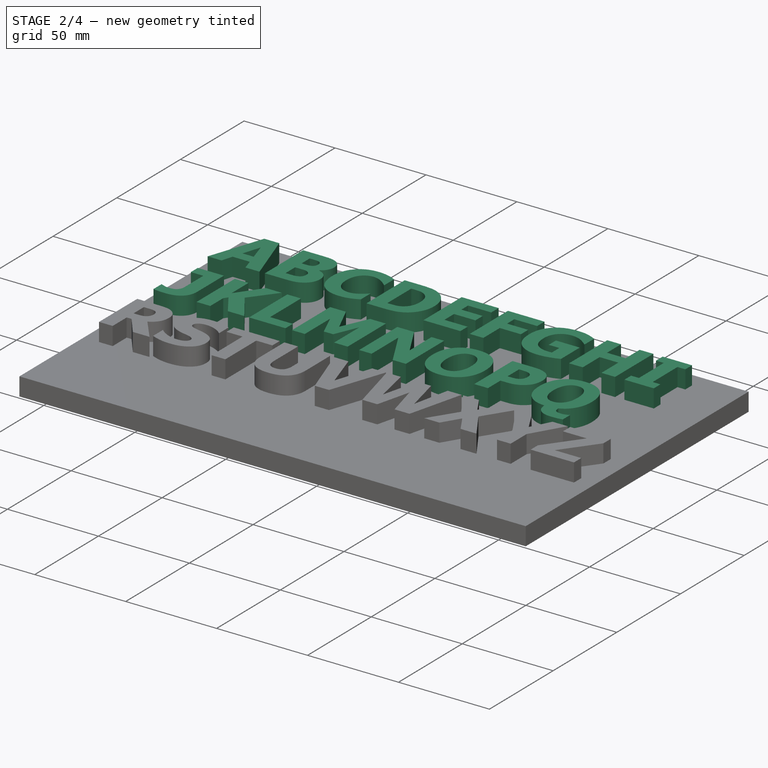
[diagram: stage 2 of 4 — iso view after this stage's code; geometry added in this stage tinted green]
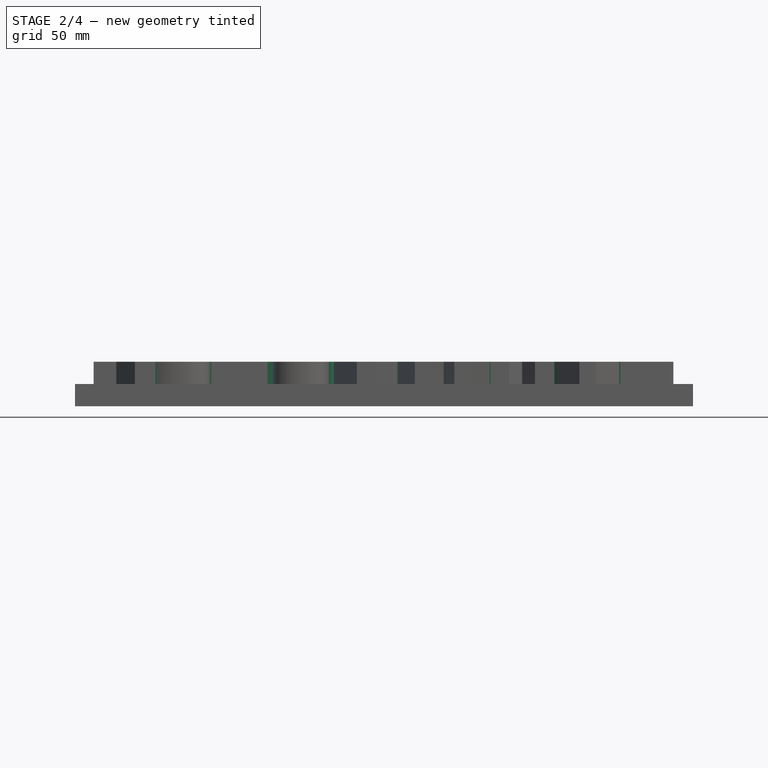
[diagram: stage 2 of 4 — front view after this stage's code; geometry added in this stage tinted green]
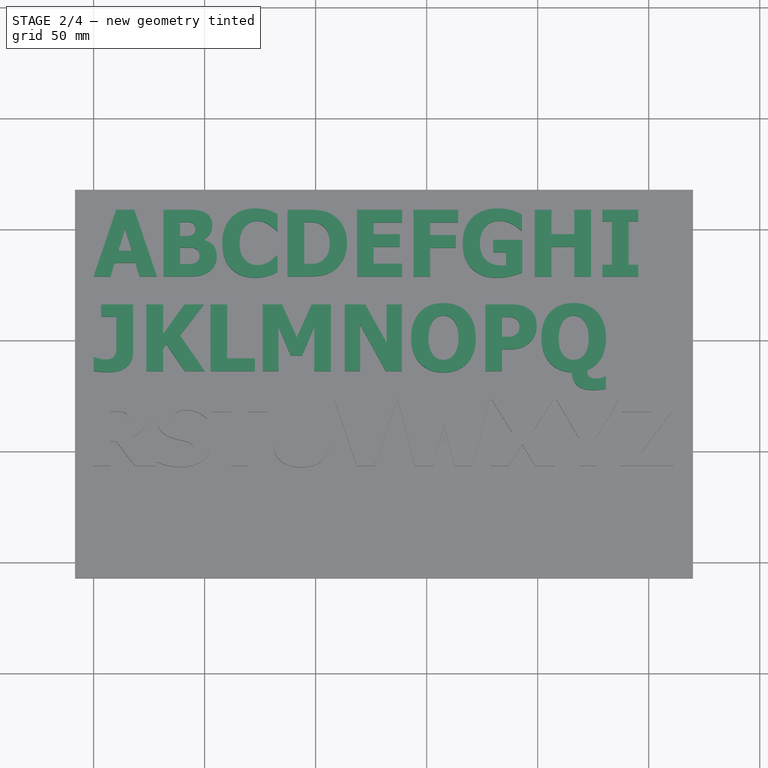
[diagram: stage 2 of 4 — top view after this stage's code; geometry added in this stage tinted green]
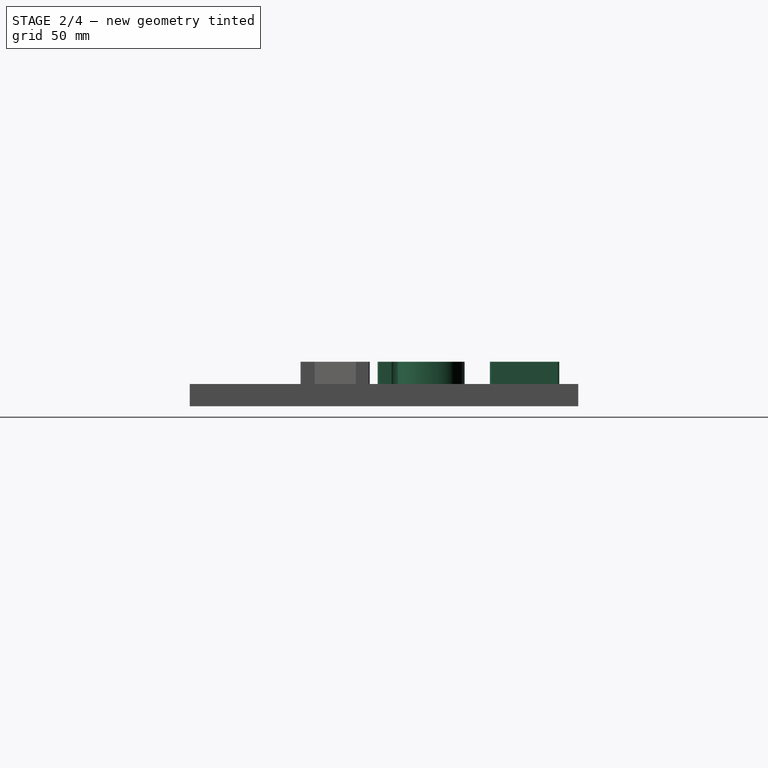
[diagram: stage 2 of 4 — right view after this stage's code; geometry added in this stage tinted green]
FEATURE [PartDesign::Pad] Pad002
  BaseFeature = -> Pad001
  Direction = (0,0,1)
  Length = 10
  Length2 = 100
  Profile = -> Sketch001
  Type = 0
FEATURE [PartDesign::Pad] Pad003
  BaseFeature = -> Pad002
  Direction = (0,0,1)
  Length = 10
  Length2 = 100
  Profile = -> Sketch
  Type = 0
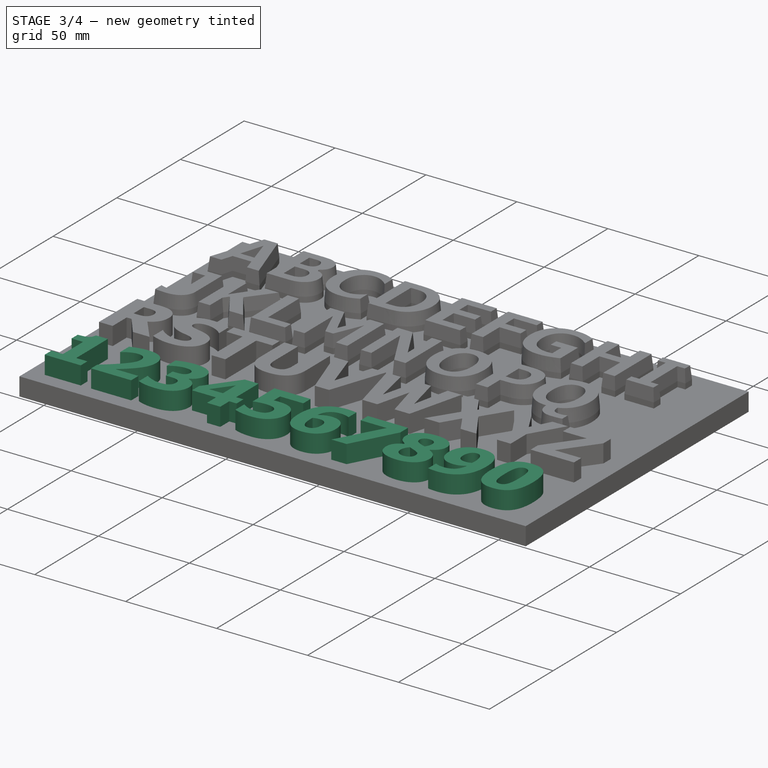
[diagram: stage 3 of 4 — iso view after this stage's code; geometry added in this stage tinted green]
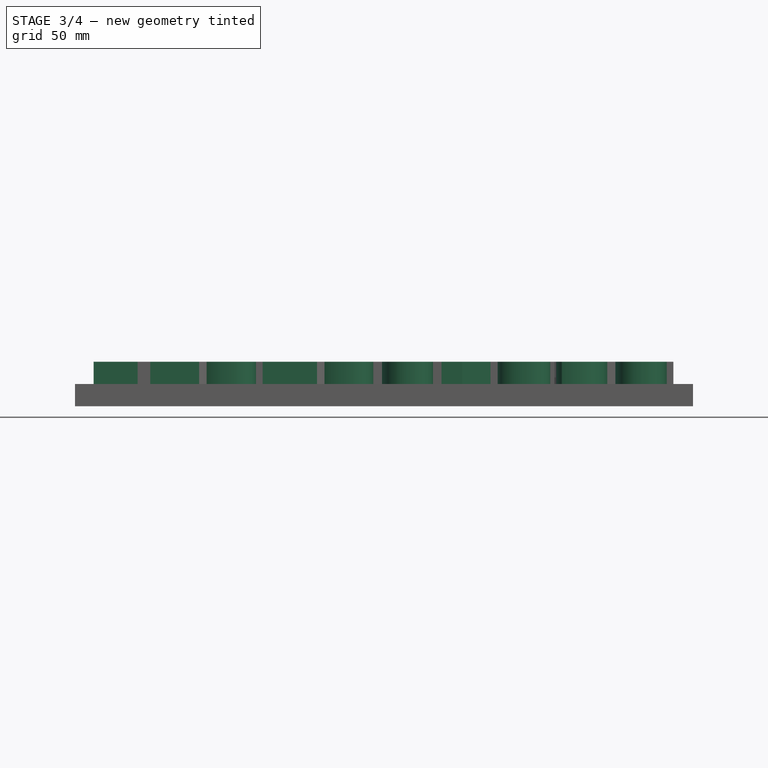
[diagram: stage 3 of 4 — front view after this stage's code; geometry added in this stage tinted green]
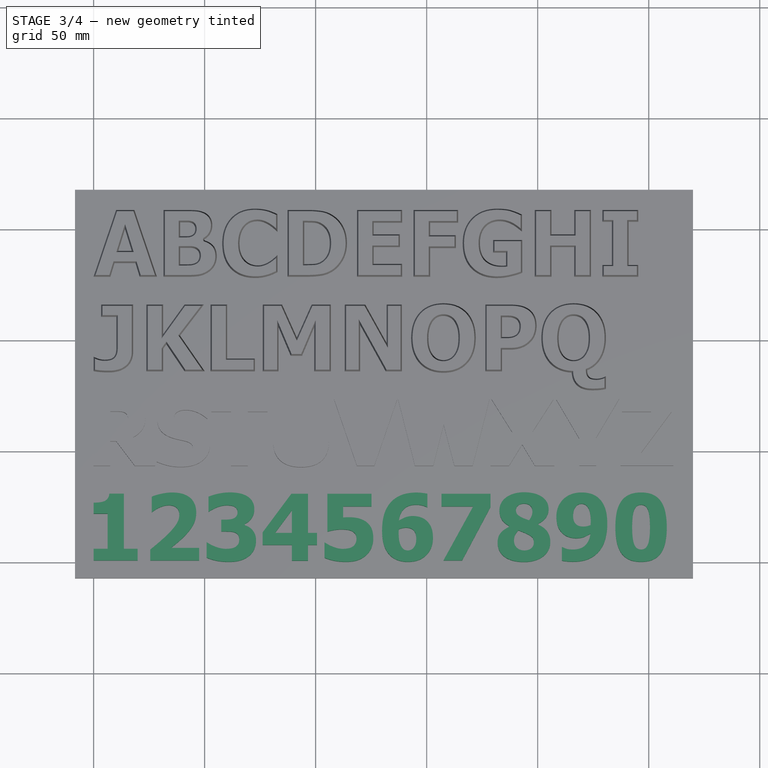
[diagram: stage 3 of 4 — top view after this stage's code; geometry added in this stage tinted green]
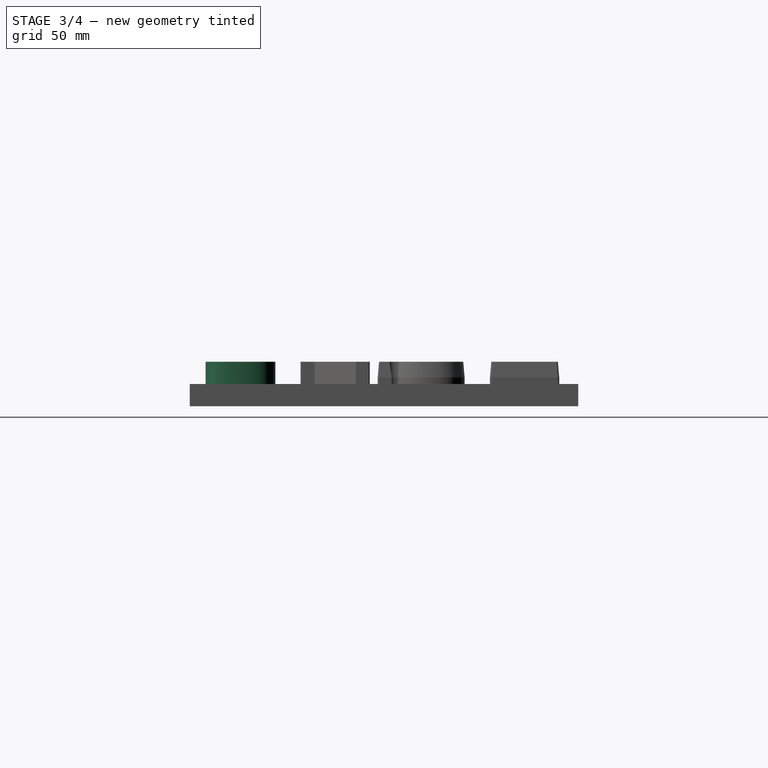
[diagram: stage 3 of 4 — right view after this stage's code; geometry added in this stage tinted green]
FEATURE [PartDesign::Pad] Pad004
  BaseFeature = -> Pad003
  Direction = (0,0,1)
  Length = 10
  Length2 = 100
  Profile = -> Sketch003
  Type = 0
FEATURE [PartDesign::Chamfer] Chamfer
  Angle = 5
  Base = -> Pad004 [Face849,Face848,Face847,Face846,Face845,Face839,Face838,Face837,Face836]
  BaseFeature = -> Pad004
  ChamferType = 2
  FlipDirection = true
  Size = 7
  Size2 = 1
  SupportTransform = false
FEATURE [PartDesign::Chamfer] Chamfer001
  Angle = 5
  Base = -> Chamfer [Face920,Face919,Face918,Face917,Face916,Face848,Face847,Face846]
  BaseFeature = -> Chamfer
  ChamferType = 2
  FlipDirection = true
  Size = 7
  Size2 = 1
  SupportTransform = false
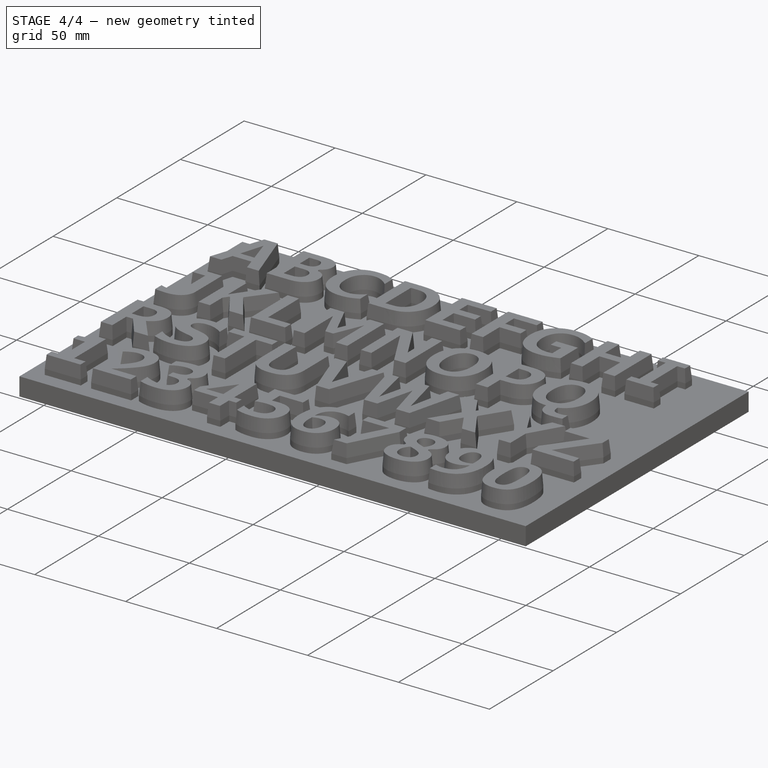
[diagram: stage 4 of 4 — iso view after this stage's code; geometry added in this stage tinted green]
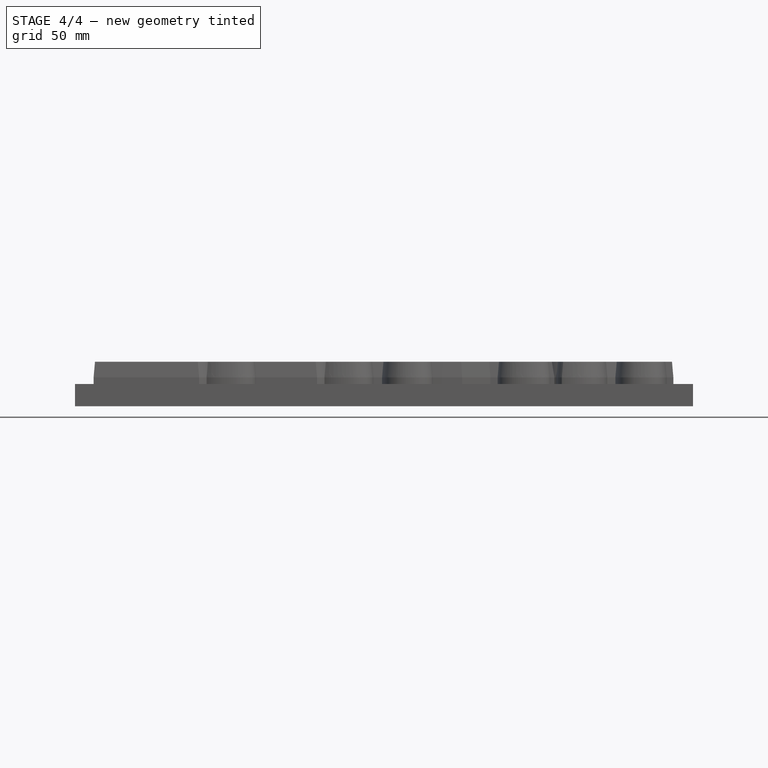
[diagram: stage 4 of 4 — front view after this stage's code; geometry added in this stage tinted green]
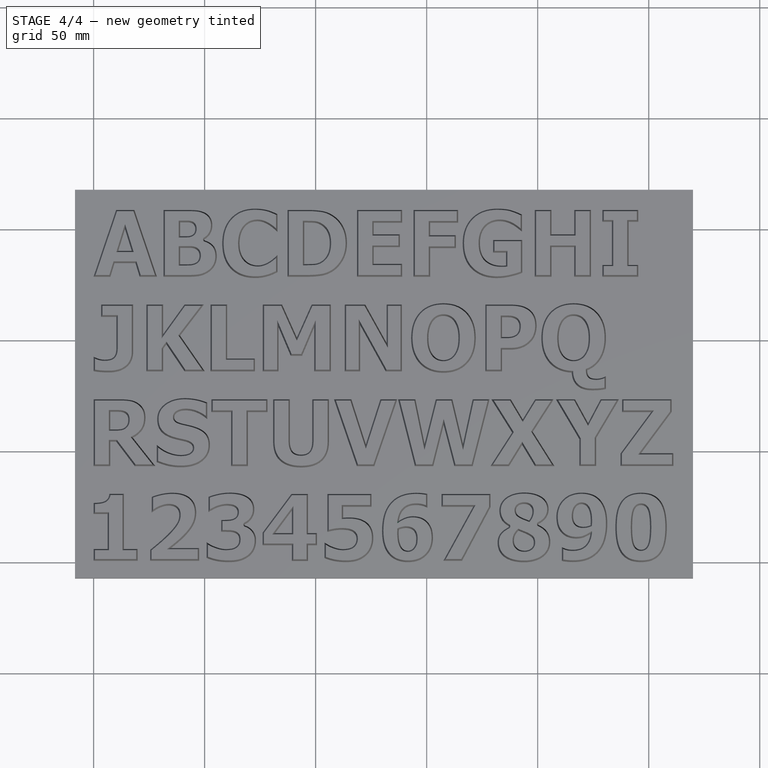
[diagram: stage 4 of 4 — top view after this stage's code; geometry added in this stage tinted green]
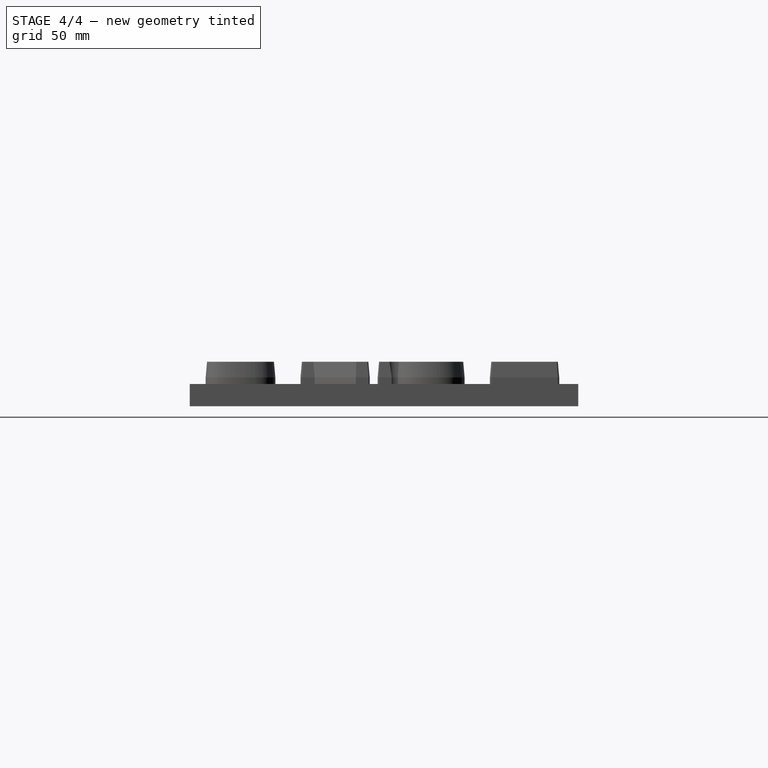
[diagram: stage 4 of 4 — right view after this stage's code; geometry added in this stage tinted green]
FEATURE [PartDesign::Chamfer] Chamfer002
  Angle = 5
  Base = -> Chamfer001 [Face901,Face900,Face899,Face898,Face897,Face891,Face890,Face889,Face888]
  BaseFeature = -> Chamfer001
  ChamferType = 2
  FlipDirection = true
  Size = 7
  Size2 = 1
  SupportTransform = false
FEATURE [PartDesign::Chamfer] Chamfer003
  Angle = 5
  Base = -> Chamfer002 [Face868,Face867,Face866,Face865,Face864,Face829,Face828,Face827,Face826,Face825]
  BaseFeature = -> Chamfer002
  ChamferType = 2
  FlipDirection = true
  Size = 7
  Size2 = 1
  SupportTransform = false
FEATURE [PartDesign::Body] Body
  Group = -> [Sketch004,Pad,Sketch,Sketch001,Sketch002,Sketch003,Pad001,Pad002,Pad003,Pad004,Chamfer,Chamfer001,Chamfer002,Chamfer003]
  Origin = -> Origin
  Tip = -> Chamfer003
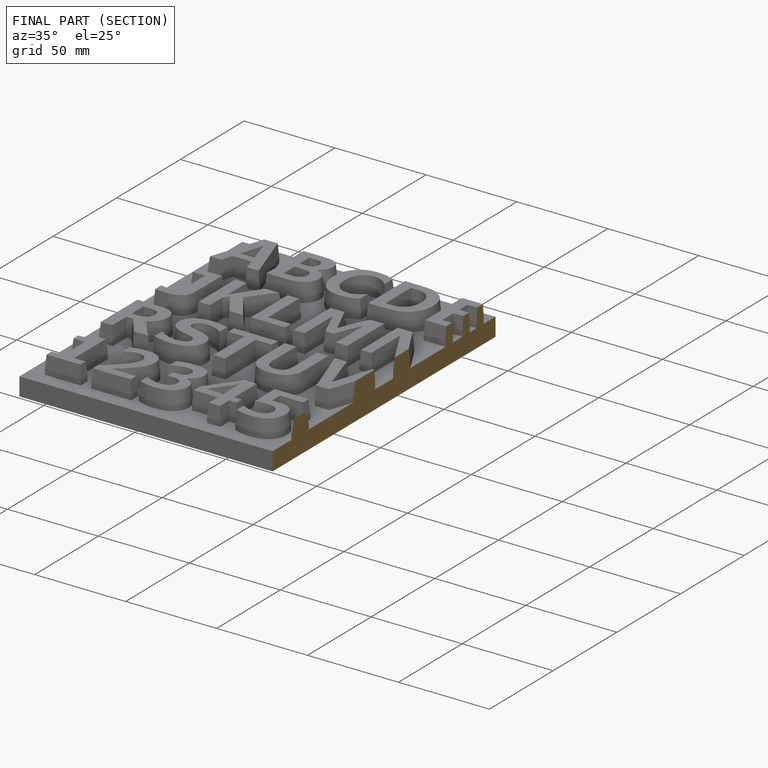
[diagram: finished part — half-section view (interior)]
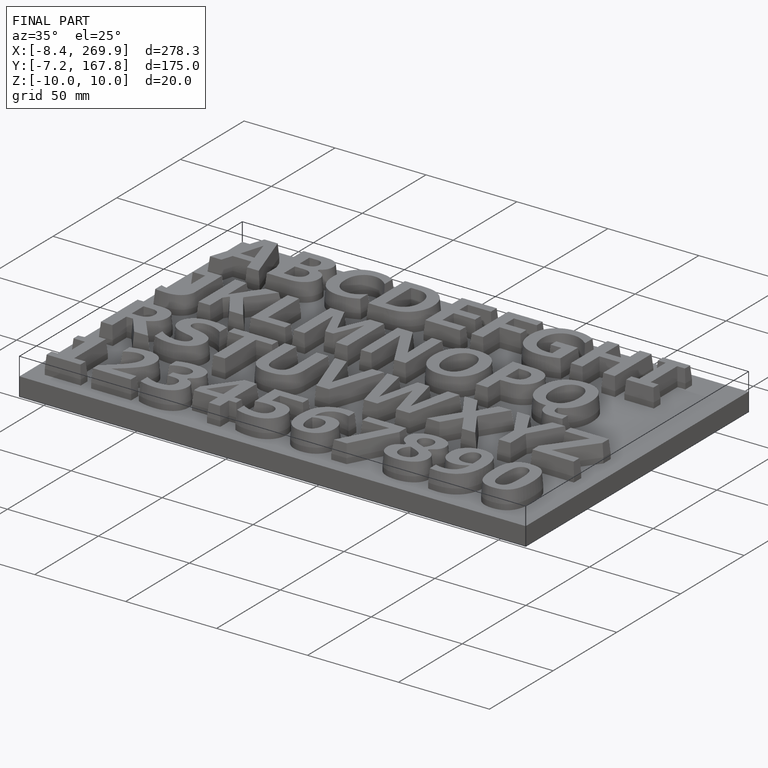
[diagram: finished part — iso view with bounding-box wireframe]
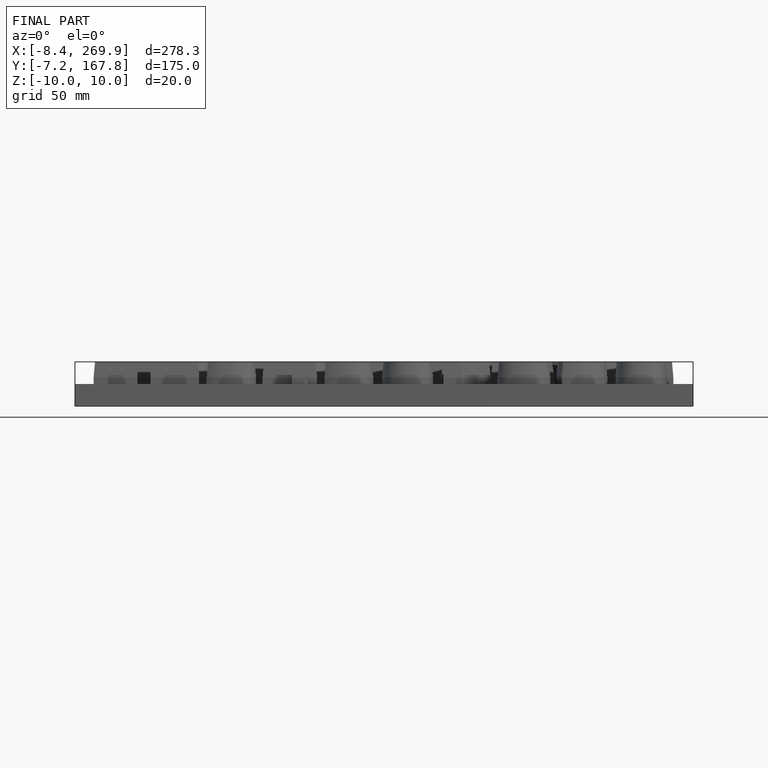
[diagram: finished part — front view with bounding-box wireframe]
